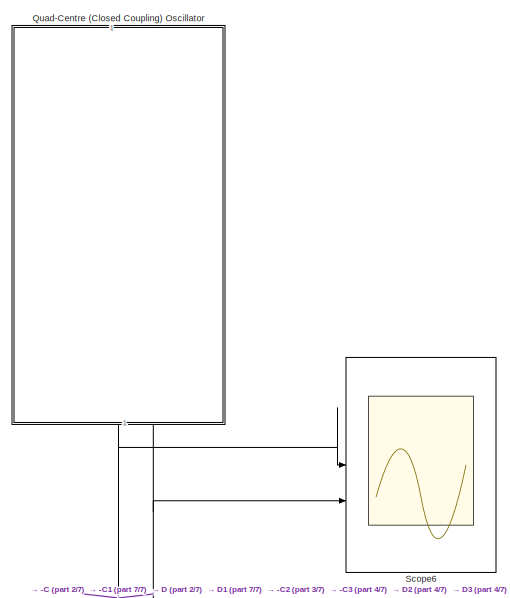
[diagram: root canvas - part 1/7, top center region]
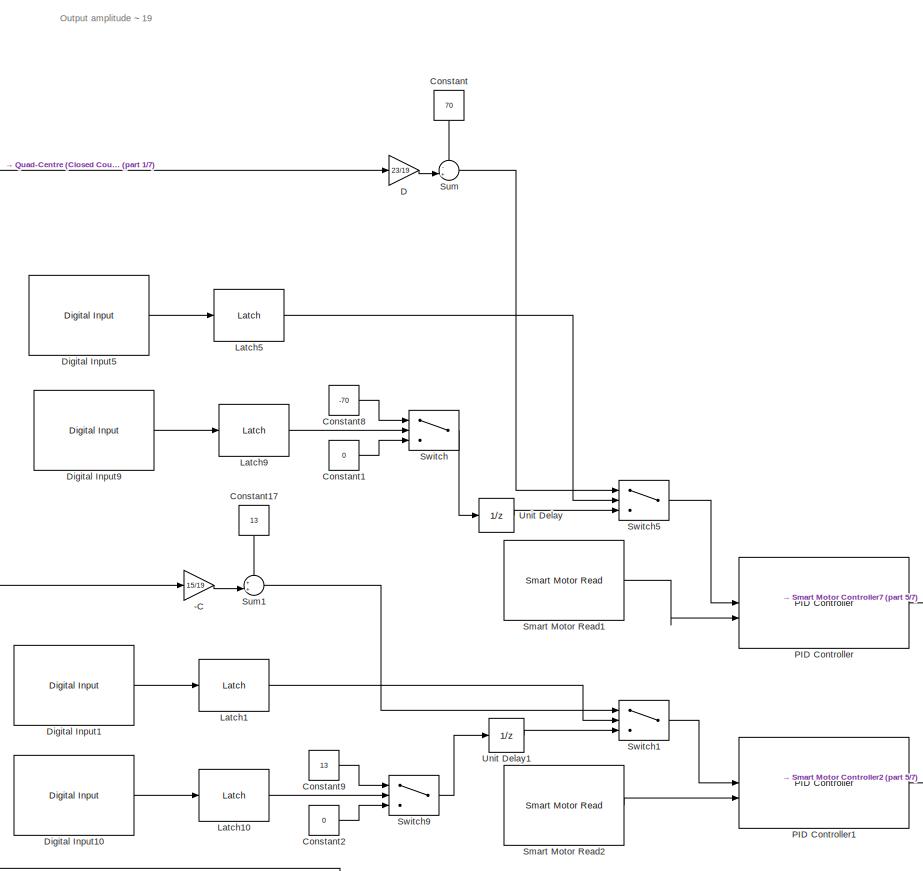
[diagram: root canvas - part 2/7, middle left region]
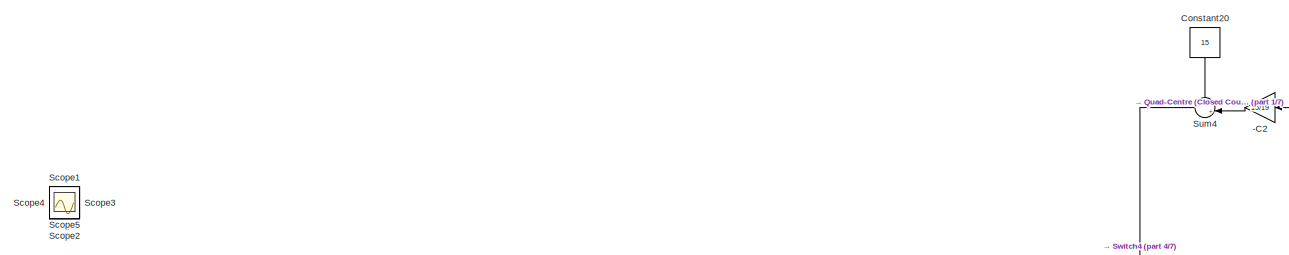
[diagram: root canvas - part 3/7, middle right region]
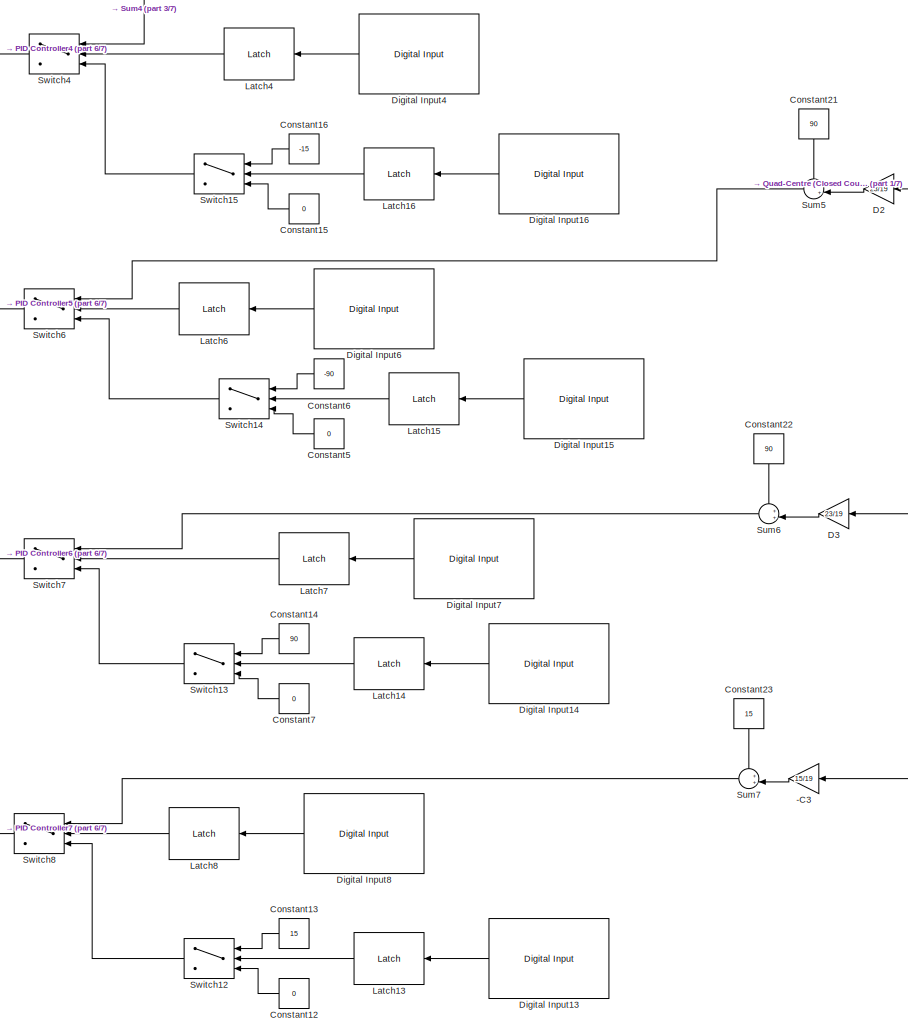
[diagram: root canvas - part 4/7, bottom right region]
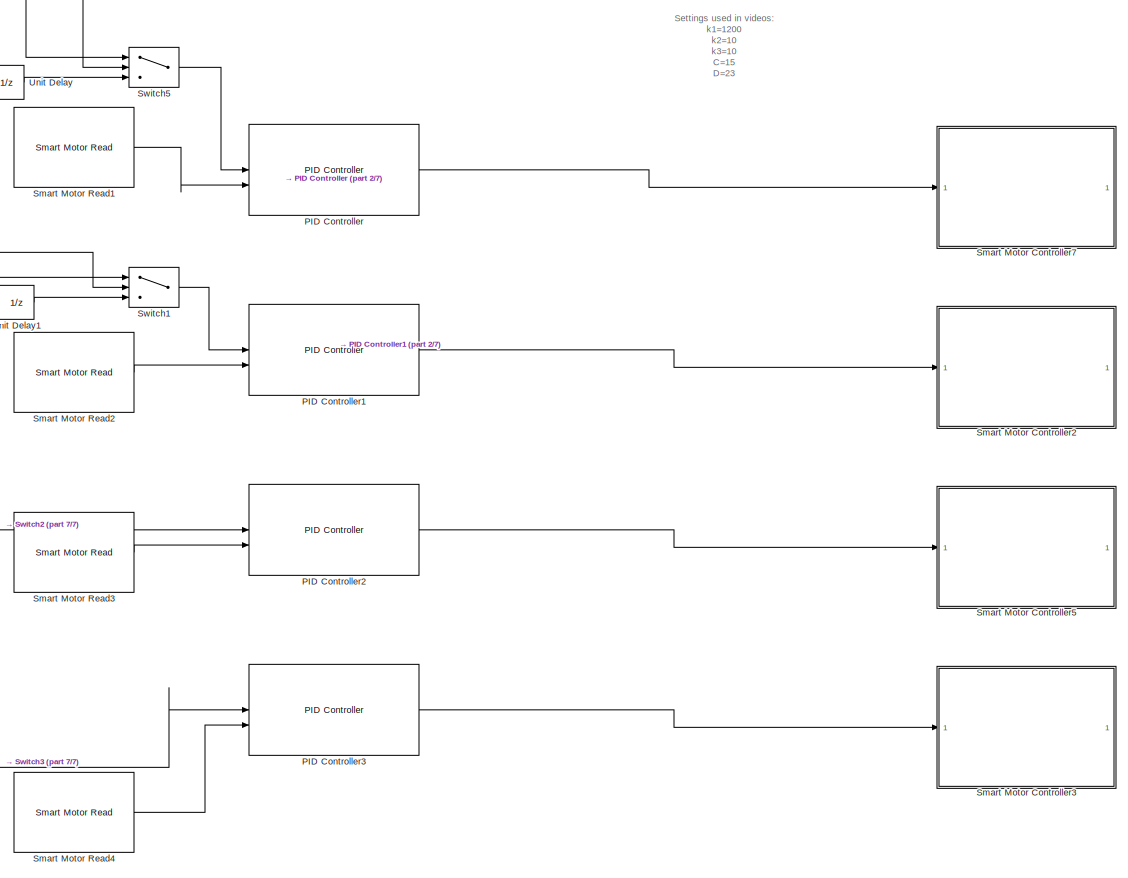
[diagram: root canvas - part 5/7, bottom center region]
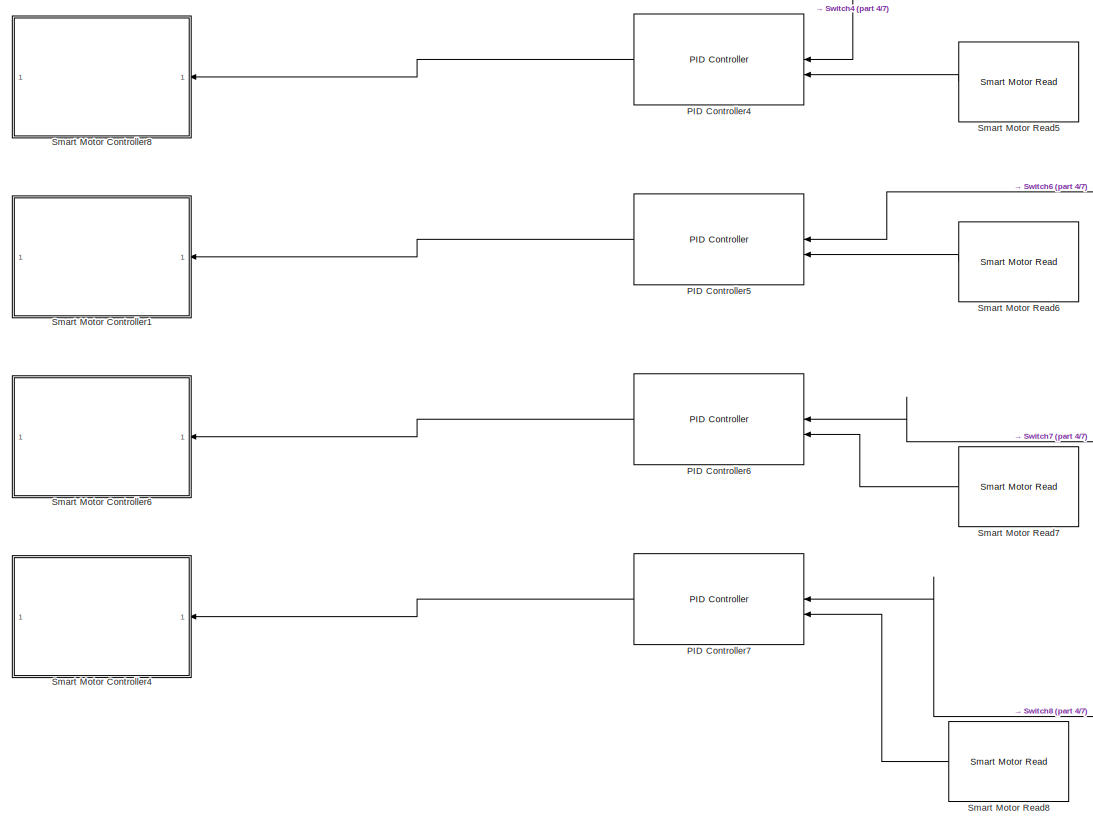
[diagram: root canvas - part 6/7, bottom center region]
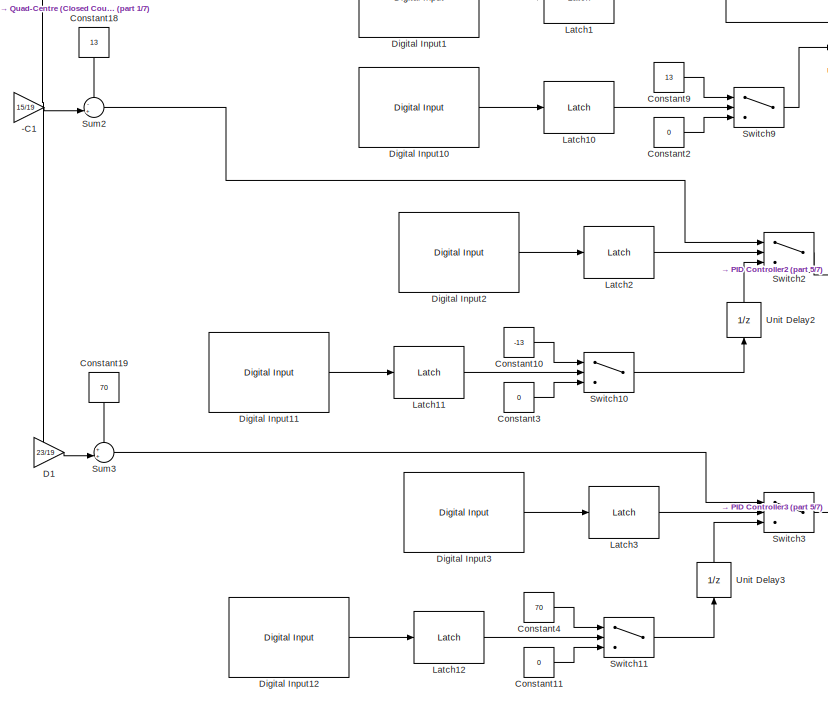
[diagram: root canvas - part 7/7, bottom left region]
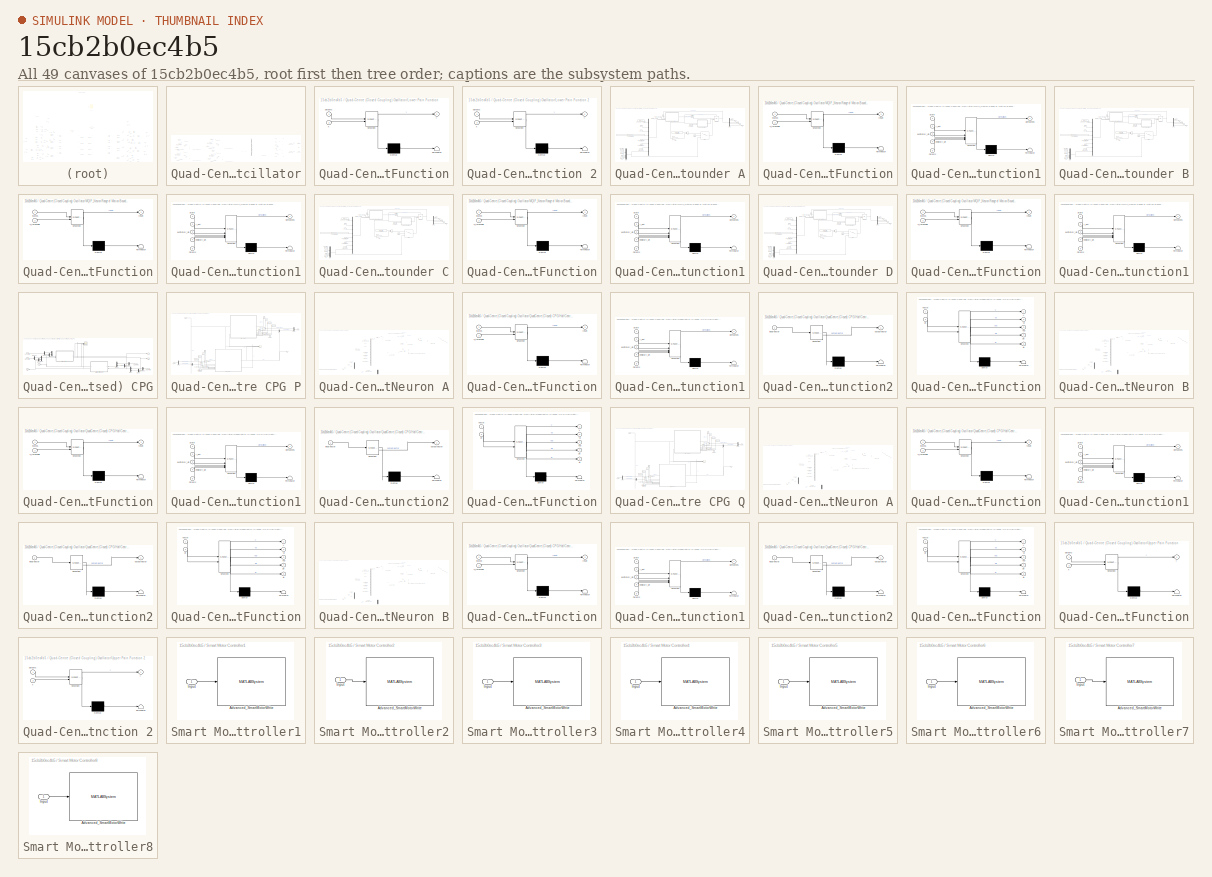
[diagram: thumbnail index - all 49 canvases of the model, root first then tree order]
MODEL slx_15cb2b0ec4b5
KIND model
CONFIG AbsTol = auto
CONFIG EnableMultiTasking = off
CONFIG FixedStep = 1e-3
CONFIG MaxStep = auto
CONFIG MinStep = auto
CONFIG RelTol = 1e-3
CONFIG SampleTimeConstraint = Unconstrained
CONFIG SolverName = ode4
CONFIG StartTime = 0.0
CONFIG StopTime = 10
BLOCK [Gain] -C
  Gain = 15/19
BLOCK [Gain] -C1
  Gain = 15/19
BLOCK [Gain] -C2
  Gain = 15/19
  NameLocation = top
BLOCK [Gain] -C3
  Gain = 15/19
  NameLocation = top
BLOCK [Constant] Constant
  Value = 70
BLOCK [Constant] Constant1
  Value = 0
BLOCK [Constant] Constant10
  Value = -13
BLOCK [Constant] Constant11
  Value = 0
BLOCK [Constant] Constant12
  NameLocation = top
  Value = 0
BLOCK [Constant] Constant13
  NameLocation = top
  Value = 15
BLOCK [Constant] Constant14
  NameLocation = top
  Value = 90
BLOCK [Constant] Constant15
  NameLocation = top
  Value = 0
BLOCK [Constant] Constant16
  NameLocation = top
  Value = -15
BLOCK [Constant] Constant17
  Value = 13
BLOCK [Constant] Constant18
  Value = 13
BLOCK [Constant] Constant19
  Value = 70
BLOCK [Constant] Constant2
  Value = 0
BLOCK [Constant] Constant20
  Value = 15
BLOCK [Constant] Constant21
  Value = 90
BLOCK [Constant] Constant22
  Value = 90
BLOCK [Constant] Constant23
  Value = 15
BLOCK [Constant] Constant3
  Value = 0
BLOCK [Constant] Constant4
  Value = 70
BLOCK [Constant] Constant5
  NameLocation = top
  Value = 0
BLOCK [Constant] Constant6
  NameLocation = top
  Value = -90
BLOCK [Constant] Constant7
  NameLocation = top
  Value = 0
BLOCK [Constant] Constant8
  Value = -70
BLOCK [Constant] Constant9
  Value = 13
BLOCK [Gain] D
  Gain = 23/19
BLOCK [Gain] D1
  Gain = 23/19
BLOCK [Gain] D2
  Gain = 23/19
  NameLocation = top
BLOCK [Gain] D3
  Gain = 23/19
  NameLocation = top
BLOCK [Reference] Digital Input1  REF=vexv5lib/Sensors/Digital Input
  SourceBlock = vexv5lib/Sensors/Digital Input
  SourceType = vexv5.DigitalInput
BLOCK [Reference] Digital Input10  REF=vexv5lib/Sensors/Digital Input
  SourceBlock = vexv5lib/Sensors/Digital Input
  SourceType = vexv5.DigitalInput
BLOCK [Reference] Digital Input11  REF=vexv5lib/Sensors/Digital Input
  SourceBlock = vexv5lib/Sensors/Digital Input
  SourceType = vexv5.DigitalInput
BLOCK [Reference] Digital Input12  REF=vexv5lib/Sensors/Digital Input
  SourceBlock = vexv5lib/Sensors/Digital Input
  SourceType = vexv5.DigitalInput
BLOCK [Reference] Digital Input13  REF=vexv5lib/Sensors/Digital Input
  NameLocation = top
  SourceBlock = vexv5lib/Sensors/Digital Input
  SourceType = vexv5.DigitalInput
BLOCK [Reference] Digital Input14  REF=vexv5lib/Sensors/Digital Input
  NameLocation = top
  SourceBlock = vexv5lib/Sensors/Digital Input
  SourceType = vexv5.DigitalInput
BLOCK [Reference] Digital Input15  REF=vexv5lib/Sensors/Digital Input
  NameLocation = top
  SourceBlock = vexv5lib/Sensors/Digital Input
  SourceType = vexv5.DigitalInput
BLOCK [Reference] Digital Input16  REF=vexv5lib/Sensors/Digital Input
  NameLocation = top
  SourceBlock = vexv5lib/Sensors/Digital Input
  SourceType = vexv5.DigitalInput
BLOCK [Reference] Digital Input2  REF=vexv5lib/Sensors/Digital Input
  SourceBlock = vexv5lib/Sensors/Digital Input
  SourceType = vexv5.DigitalInput
BLOCK [Reference] Digital Input3  REF=vexv5lib/Sensors/Digital Input
  SourceBlock = vexv5lib/Sensors/Digital Input
  SourceType = vexv5.DigitalInput
BLOCK [Reference] Digital Input4  REF=vexv5lib/Sensors/Digital Input
  NameLocation = top
  SourceBlock = vexv5lib/Sensors/Digital Input
  SourceType = vexv5.DigitalInput
BLOCK [Reference] Digital Input5  REF=vexv5lib/Sensors/Digital Input
  SourceBlock = vexv5lib/Sensors/Digital Input
  SourceType = vexv5.DigitalInput
BLOCK [Reference] Digital Input6  REF=vexv5lib/Sensors/Digital Input
  NameLocation = top
  SourceBlock = vexv5lib/Sensors/Digital Input
  SourceType = vexv5.DigitalInput
BLOCK [Reference] Digital Input7  REF=vexv5lib/Sensors/Digital Input
  NameLocation = top
  SourceBlock = vexv5lib/Sensors/Digital Input
  SourceType = vexv5.DigitalInput
BLOCK [Reference] Digital Input8  REF=vexv5lib/Sensors/Digital Input
  NameLocation = top
  SourceBlock = vexv5lib/Sensors/Digital Input
  SourceType = vexv5.DigitalInput
BLOCK [Reference] Digital Input9  REF=vexv5lib/Sensors/Digital Input
  SourceBlock = vexv5lib/Sensors/Digital Input
  SourceType = vexv5.DigitalInput
BLOCK [Reference] Latch1  REF=vexcommonlib/Latch
  LibrarySourceBlock = vexv5lib/Utilities/Latch
  SourceBlock = vexcommonlib/Latch
  SourceType = Latch
BLOCK [Reference] Latch10  REF=vexcommonlib/Latch
  LibrarySourceBlock = vexv5lib/Utilities/Latch
  SourceBlock = vexcommonlib/Latch
  SourceType = Latch
BLOCK [Reference] Latch11  REF=vexcommonlib/Latch
  LibrarySourceBlock = vexv5lib/Utilities/Latch
  SourceBlock = vexcommonlib/Latch
  SourceType = Latch
BLOCK [Reference] Latch12  REF=vexcommonlib/Latch
  LibrarySourceBlock = vexv5lib/Utilities/Latch
  SourceBlock = vexcommonlib/Latch
  SourceType = Latch
BLOCK [Reference] Latch13  REF=vexcommonlib/Latch
  LibrarySourceBlock = vexv5lib/Utilities/Latch
  NameLocation = top
  SourceBlock = vexcommonlib/Latch
  SourceType = Latch
BLOCK [Reference] Latch14  REF=vexcommonlib/Latch
  LibrarySourceBlock = vexv5lib/Utilities/Latch
  NameLocation = top
  SourceBlock = vexcommonlib/Latch
  SourceType = Latch
BLOCK [Reference] Latch15  REF=vexcommonlib/Latch
  LibrarySourceBlock = vexv5lib/Utilities/Latch
  NameLocation = top
  SourceBlock = vexcommonlib/Latch
  SourceType = Latch
BLOCK [Reference] Latch16  REF=vexcommonlib/Latch
  LibrarySourceBlock = vexv5lib/Utilities/Latch
  NameLocation = top
  SourceBlock = vexcommonlib/Latch
  SourceType = Latch
BLOCK [Reference] Latch2  REF=vexcommonlib/Latch
  LibrarySourceBlock = vexv5lib/Utilities/Latch
  SourceBlock = vexcommonlib/Latch
  SourceType = Latch
BLOCK [Reference] Latch3  REF=vexcommonlib/Latch
  LibrarySourceBlock = vexv5lib/Utilities/Latch
  SourceBlock = vexcommonlib/Latch
  SourceType = Latch
BLOCK [Reference] Latch4  REF=vexcommonlib/Latch
  LibrarySourceBlock = vexv5lib/Utilities/Latch
  NameLocation = top
  SourceBlock = vexcommonlib/Latch
  SourceType = Latch
BLOCK [Reference] Latch5  REF=vexcommonlib/Latch
  LibrarySourceBlock = vexv5lib/Utilities/Latch
  SourceBlock = vexcommonlib/Latch
  SourceType = Latch
BLOCK [Reference] Latch6  REF=vexcommonlib/Latch
  LibrarySourceBlock = vexv5lib/Utilities/Latch
  NameLocation = top
  SourceBlock = vexcommonlib/Latch
  SourceType = Latch
BLOCK [Reference] Latch7  REF=vexcommonlib/Latch
  LibrarySourceBlock = vexv5lib/Utilities/Latch
  NameLocation = top
  SourceBlock = vexcommonlib/Latch
  SourceType = Latch
BLOCK [Reference] Latch8  REF=vexcommonlib/Latch
  LibrarySourceBlock = vexv5lib/Utilities/Latch
  NameLocation = top
  SourceBlock = vexcommonlib/Latch
  SourceType = Latch
BLOCK [Reference] Latch9  REF=vexcommonlib/Latch
  LibrarySourceBlock = vexv5lib/Utilities/Latch
  SourceBlock = vexcommonlib/Latch
  SourceType = Latch
BLOCK [Reference] PID Controller  REF=Vex_V5_Simulink_Expansion/Core Blocks/PID Controller
  SourceBlock = Vex_V5_Simulink_Expansion/Core Blocks/PID Controller
  SourceProductName = Vex V5 Simulink Expansion
  SourceType = PID Controller
BLOCK [Reference] PID Controller1  REF=Vex_V5_Simulink_Expansion/Core Blocks/PID Controller
  SourceBlock = Vex_V5_Simulink_Expansion/Core Blocks/PID Controller
  SourceProductName = Vex V5 Simulink Expansion
  SourceType = PID Controller
BLOCK [Reference] PID Controller2  REF=Vex_V5_Simulink_Expansion/Core Blocks/PID Controller
  SourceBlock = Vex_V5_Simulink_Expansion/Core Blocks/PID Controller
  SourceProductName = Vex V5 Simulink Expansion
  SourceType = PID Controller
BLOCK [Reference] PID Controller3  REF=Vex_V5_Simulink_Expansion/Core Blocks/PID Controller
  SourceBlock = Vex_V5_Simulink_Expansion/Core Blocks/PID Controller
  SourceProductName = Vex V5 Simulink Expansion
  SourceType = PID Controller
BLOCK [Reference] PID Controller4  REF=Vex_V5_Simulink_Expansion/Core Blocks/PID Controller
  SourceBlock = Vex_V5_Simulink_Expansion/Core Blocks/PID Controller
  SourceProductName = Vex V5 Simulink Expansion
  SourceType = PID Controller
BLOCK [Reference] PID Controller5  REF=Vex_V5_Simulink_Expansion/Core Blocks/PID Controller
  SourceBlock = Vex_V5_Simulink_Expansion/Core Blocks/PID Controller
  SourceProductName = Vex V5 Simulink Expansion
  SourceType = PID Controller
BLOCK [Reference] PID Controller6  REF=Vex_V5_Simulink_Expansion/Core Blocks/PID Controller
  SourceBlock = Vex_V5_Simulink_Expansion/Core Blocks/PID Controller
  SourceProductName = Vex V5 Simulink Expansion
  SourceType = PID Controller
BLOCK [Reference] PID Controller7  REF=Vex_V5_Simulink_Expansion/Core Blocks/PID Controller
  SourceBlock = Vex_V5_Simulink_Expansion/Core Blocks/PID Controller
  SourceProductName = Vex V5 Simulink Expansion
  SourceType = PID Controller
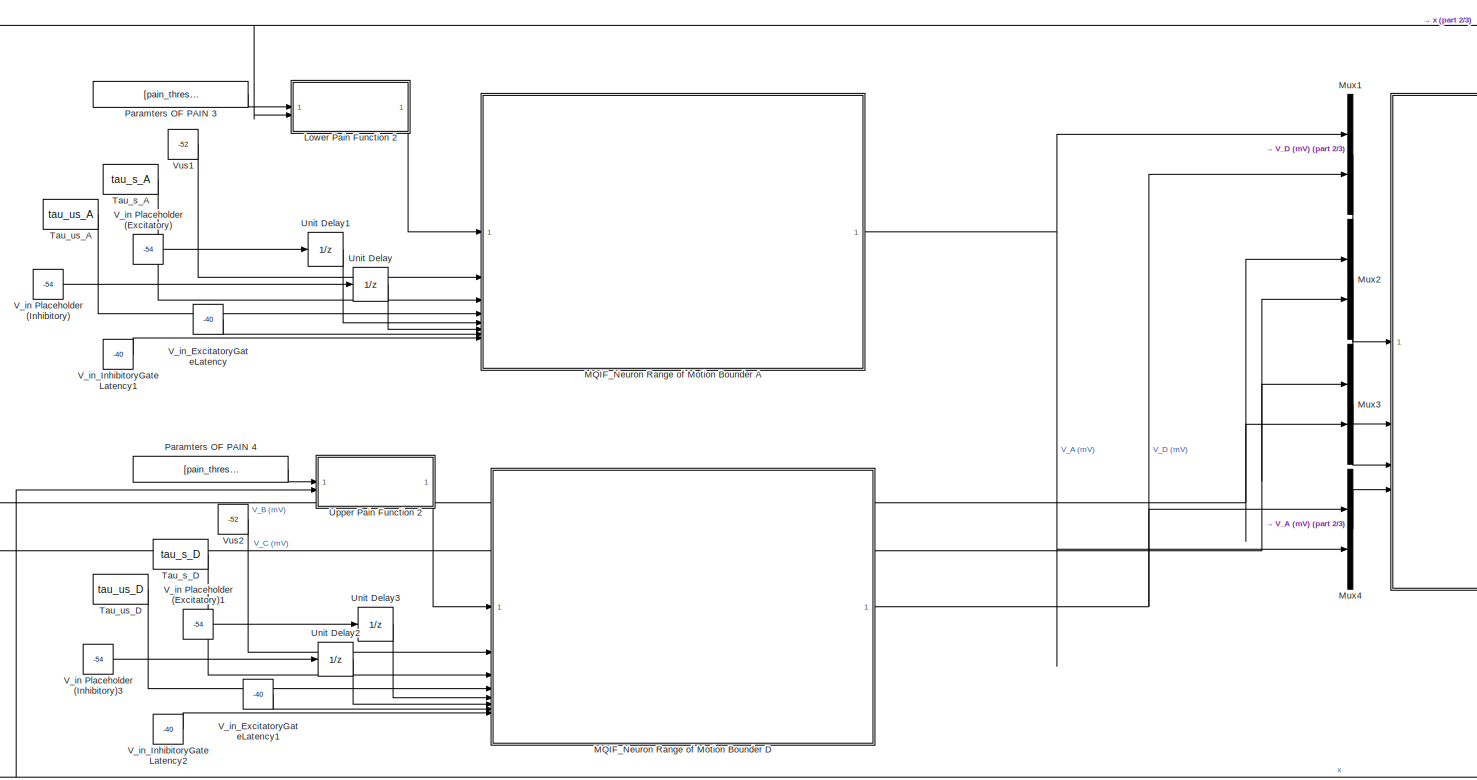
[diagram: Quad-Centre (Closed Coupling) Oscillator - part 1/3, center side, full height]
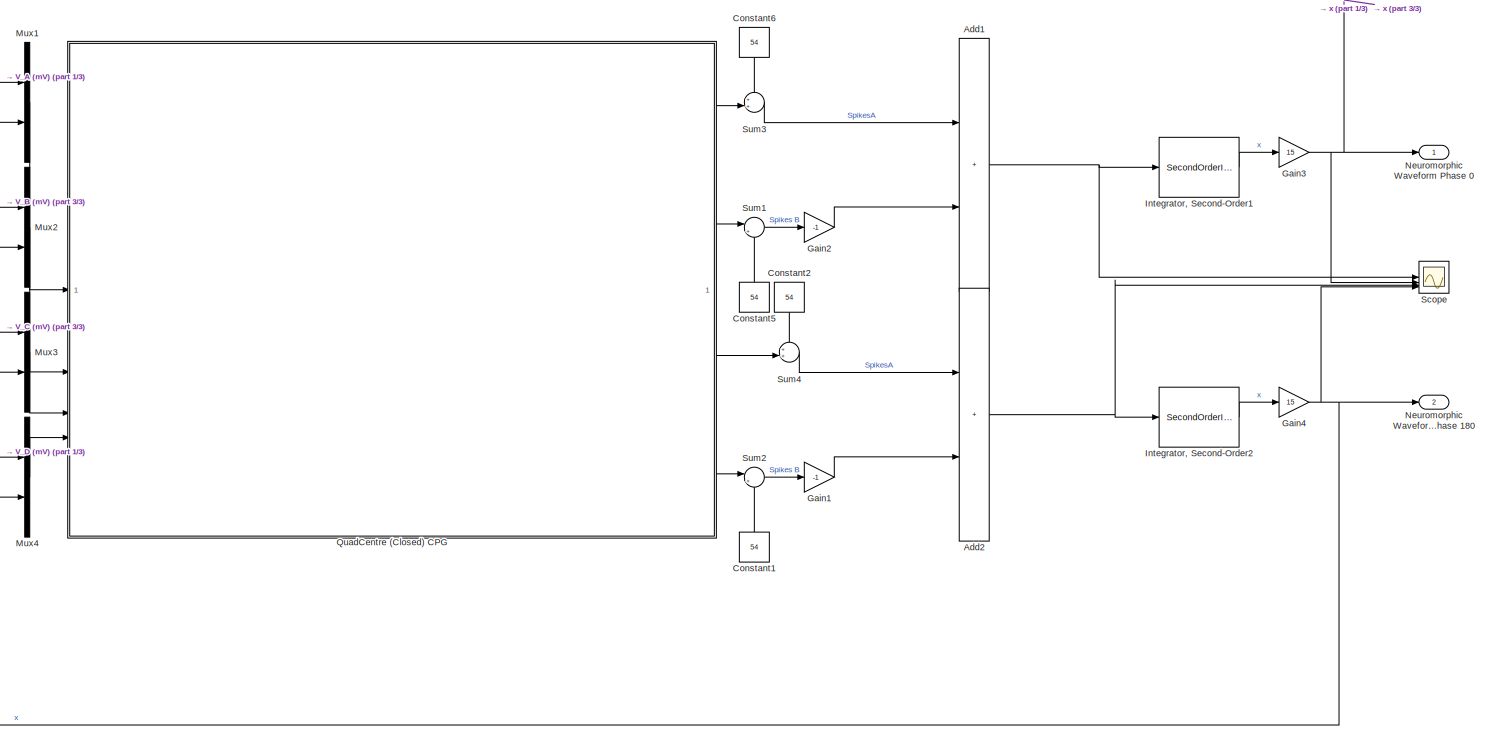
[diagram: Quad-Centre (Closed Coupling) Oscillator - part 2/3, right side, full height]
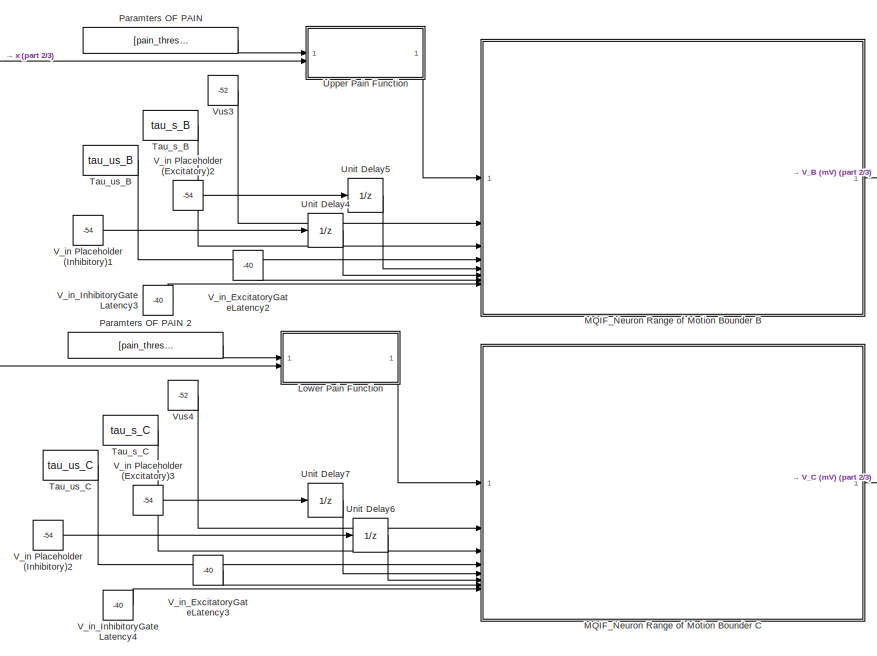
[diagram: Quad-Centre (Closed Coupling) Oscillator - part 3/3, left side, full height]
BLOCK [SubSystem] Quad-Centre (Closed Coupling) Oscillator
  NameLocation = left
  TreatAsAtomicUnit = on
BLOCK [Sum] Quad-Centre (Closed Coupling) Oscillator/Add1
  IconShape = rectangular
BLOCK [Sum] Quad-Centre (Closed Coupling) Oscillator/Add2
  IconShape = rectangular
BLOCK [Constant] Quad-Centre (Closed Coupling) Oscillator/Constant1
  NameLocation = right
  Value = 54
BLOCK [Constant] Quad-Centre (Closed Coupling) Oscillator/Constant2
  NameLocation = left
  Value = 54
BLOCK [Constant] Quad-Centre (Closed Coupling) Oscillator/Constant5
  NameLocation = right
  Value = 54
BLOCK [Constant] Quad-Centre (Closed Coupling) Oscillator/Constant6
  NameLocation = left
  Value = 54
BLOCK [Gain] Quad-Centre (Closed Coupling) Oscillator/Gain1
  Gain = -1
BLOCK [Gain] Quad-Centre (Closed Coupling) Oscillator/Gain2
  Gain = -1
BLOCK [Gain] Quad-Centre (Closed Coupling) Oscillator/Gain3
  Gain = 15
BLOCK [Gain] Quad-Centre (Closed Coupling) Oscillator/Gain4
  Gain = 15
BLOCK [SecondOrderIntegrator] Quad-Centre (Closed Coupling) Oscillator/Integrator, Second-Order1
BLOCK [SecondOrderIntegrator] Quad-Centre (Closed Coupling) Oscillator/Integrator, Second-Order2
BLOCK [SubSystem] Quad-Centre (Closed Coupling) Oscillator/Lower Pain Function
  ErrorFcn = Stateflow.Translate.translate
  LibrarySourceBlock = simulink/User-Defined\nFunctions/MATLAB Function
  PermitHierarchicalResolution = ExplicitOnly
  SFBlockType = MATLAB Function
  TreatAsAtomicUnit = on
BLOCK [SubSystem] Quad-Centre (Closed Coupling) Oscillator/Lower Pain Function 2
  ErrorFcn = Stateflow.Translate.translate
  LibrarySourceBlock = simulink/User-Defined\nFunctions/MATLAB Function
  PermitHierarchicalResolution = ExplicitOnly
  SFBlockType = MATLAB Function
  TreatAsAtomicUnit = on
BLOCK [Demux] Quad-Centre (Closed Coupling) Oscillator/Lower Pain Function 2/ Demux 
  Outputs = 1
BLOCK [S-Function] Quad-Centre (Closed Coupling) Oscillator/Lower Pain Function 2/ SFunction 
  EnableBusSupport = on
  FunctionName = sf_sfun
  PortCounts = [2 2]
  SFcnIsStateOwnerBlock = off
  SFunctionDeploymentMode = off
  Tag = Stateflow S-Function 10
BLOCK [Terminator] Quad-Centre (Closed Coupling) Oscillator/Lower Pain Function 2/ Terminator 
BLOCK [Inport] Quad-Centre (Closed Coupling) Oscillator/Lower Pain Function 2/params
BLOCK [Inport] Quad-Centre (Closed Coupling) Oscillator/Lower Pain Function 2/x
  Port = 2
BLOCK [Outport] Quad-Centre (Closed Coupling) Oscillator/Lower Pain Function 2/y
BLOCK [Demux] Quad-Centre (Closed Coupling) Oscillator/Lower Pain Function/ Demux 
  Outputs = 1
BLOCK [S-Function] Quad-Centre (Closed Coupling) Oscillator/Lower Pain Function/ SFunction 
  EnableBusSupport = on
  FunctionName = sf_sfun
  PortCounts = [2 2]
  SFcnIsStateOwnerBlock = off
  SFunctionDeploymentMode = off
  Tag = Stateflow S-Function 18
BLOCK [Terminator] Quad-Centre (Closed Coupling) Oscillator/Lower Pain Function/ Terminator 
BLOCK [Inport] Quad-Centre (Closed Coupling) Oscillator/Lower Pain Function/params
BLOCK [Inport] Quad-Centre (Closed Coupling) Oscillator/Lower Pain Function/x
  Port = 2
BLOCK [Outport] Quad-Centre (Closed Coupling) Oscillator/Lower Pain Function/y
BLOCK [SubSystem] Quad-Centre (Closed Coupling) Oscillator/MQIF_Neuron Range of Motion Bounder A
  TreatAsAtomicUnit = on
BLOCK [Sum] Quad-Centre (Closed Coupling) Oscillator/MQIF_Neuron Range of Motion Bounder A/Add
  IconShape = rectangular
BLOCK [Clock] Quad-Centre (Closed Coupling) Oscillator/MQIF_Neuron Range of Motion Bounder A/Clock
BLOCK [Constant] Quad-Centre (Closed Coupling) Oscillator/MQIF_Neuron Range of Motion Bounder A/Conductance Parameters
  Value = [g_f; g_s; g_us; C]
BLOCK [Constant] Quad-Centre (Closed Coupling) Oscillator/MQIF_Neuron Range of Motion Bounder A/Constant10
  Value = V_threshold
BLOCK [Constant] Quad-Centre (Closed Coupling) Oscillator/MQIF_Neuron Range of Motion Bounder A/Constant9
  Value = [V_reset; Vs_reset; delta_Vus; 0; 0]
BLOCK [Demux] Quad-Centre (Closed Coupling) Oscillator/MQIF_Neuron Range of Motion Bounder A/Demux
  Outputs = 5
BLOCK [Constant] Quad-Centre (Closed Coupling) Oscillator/MQIF_Neuron Range of Motion Bounder A/Eqm Voltage
  Value = V0
BLOCK [Constant] Quad-Centre (Closed Coupling) Oscillator/MQIF_Neuron Range of Motion Bounder A/Eqm Vs
  Value = Vs0
BLOCK [Gain] Quad-Centre (Closed Coupling) Oscillator/MQIF_Neuron Range of Motion Bounder A/Gain
  Gain = [0 0 0 0 0; 0 0 0 0 0; 0 0 1 0 0; 0 0 0 1 0; 0 0 0 0 1]
  Multiplication = Matrix(K*u) (u vector)
BLOCK [Inport] Quad-Centre (Closed Coupling) Oscillator/MQIF_Neuron Range of Motion Bounder A/I_ext
BLOCK [Integrator] Quad-Centre (Closed Coupling) Oscillator/MQIF_Neuron Range of Motion Bounder A/Integrator3
  ExternalReset = rising
  InitialCondition = [V0 Vs0 Vus0]
  InitialConditionSource = external
  ShowStatePort = on
BLOCK [SubSystem] Quad-Centre (Closed Coupling) Oscillator/MQIF_Neuron Range of Motion Bounder A/MATLAB Function
  ErrorFcn = Stateflow.Translate.translate
  LibrarySourceBlock = simulink/User-Defined\nFunctions/MATLAB Function
  PermitHierarchicalResolution = ExplicitOnly
  SFBlockType = MATLAB Function
  TreatAsAtomicUnit = on
BLOCK [Demux] Quad-Centre (Closed Coupling) Oscillator/MQIF_Neuron Range of Motion Bounder A/MATLAB Function/ Demux 
  Outputs = 1
BLOCK [S-Function] Quad-Centre (Closed Coupling) Oscillator/MQIF_Neuron Range of Motion Bounder A/MATLAB Function/ SFunction 
  EnableBusSupport = on
  FunctionName = sf_sfun
  PortCounts = [2 2]
  SFcnIsStateOwnerBlock = off
  SFunctionDeploymentMode = off
  Tag = Stateflow S-Function 7
BLOCK [Terminator] Quad-Centre (Closed Coupling) Oscillator/MQIF_Neuron Range of Motion Bounder A/MATLAB Function/ Terminator 
BLOCK [Inport] Quad-Centre (Closed Coupling) Oscillator/MQIF_Neuron Range of Motion Bounder A/MATLAB Function/States
BLOCK [Inport] Quad-Centre (Closed Coupling) Oscillator/MQIF_Neuron Range of Motion Bounder A/MATLAB Function/V_threshold
  Port = 2
BLOCK [Outport] Quad-Centre (Closed Coupling) Oscillator/MQIF_Neuron Range of Motion Bounder A/MATLAB Function/reset
BLOCK [SubSystem] Quad-Centre (Closed Coupling) Oscillator/MQIF_Neuron Range of Motion Bounder A/MATLAB Function1
  ErrorFcn = Stateflow.Translate.translate
  LibrarySourceBlock = simulink/User-Defined\nFunctions/MATLAB Function
  PermitHierarchicalResolution = ExplicitOnly
  SFBlockType = MATLAB Function
  TreatAsAtomicUnit = on
BLOCK [Demux] Quad-Centre (Closed Coupling) Oscillator/MQIF_Neuron Range of Motion Bounder A/MATLAB Function1/ Demux 
  Outputs = 1
BLOCK [S-Function] Quad-Centre (Closed Coupling) Oscillator/MQIF_Neuron Range of Motion Bounder A/MATLAB Function1/ SFunction 
  EnableBusSupport = on
  FunctionName = sf_sfun
  PortCounts = [5 2]
  SFcnIsStateOwnerBlock = off
  SFunctionDeploymentMode = off
  Tag = Stateflow S-Function 8
BLOCK [Terminator] Quad-Centre (Closed Coupling) Oscillator/MQIF_Neuron Range of Motion Bounder A/MATLAB Function1/ Terminator 
BLOCK [Outport] Quad-Centre (Closed Coupling) Oscillator/MQIF_Neuron Range of Motion Bounder A/MATLAB Function1/Derivatives
BLOCK [Inport] Quad-Centre (Closed Coupling) Oscillator/MQIF_Neuron Range of Motion Bounder A/MATLAB Function1/I_ext
  Port = 2
BLOCK [Inport] Quad-Centre (Closed Coupling) Oscillator/MQIF_Neuron Range of Motion Bounder A/MATLAB Function1/Params
  Port = 5
BLOCK [Inport] Quad-Centre (Closed Coupling) Oscillator/MQIF_Neuron Range of Motion Bounder A/MATLAB Function1/State
BLOCK [Inport] Quad-Centre (Closed Coupling) Oscillator/MQIF_Neuron Range of Motion Bounder A/MATLAB Function1/excitatory_Vin
  Port = 3
BLOCK [Inport] Quad-Centre (Closed Coupling) Oscillator/MQIF_Neuron Range of Motion Bounder A/MATLAB Function1/inhibitory_Vin
  Port = 4
BLOCK [Mux] Quad-Centre (Closed Coupling) Oscillator/MQIF_Neuron Range of Motion Bounder A/Mux
  DisplayOption = bar
  Inputs = 8
BLOCK [Mux] Quad-Centre (Closed Coupling) Oscillator/MQIF_Neuron Range of Motion Bounder A/Mux1
  DisplayOption = bar
BLOCK [Constant] Quad-Centre (Closed Coupling) Oscillator/MQIF_Neuron Range of Motion Bounder A/RateConstant
  Value = k
BLOCK [Constant] Quad-Centre (Closed Coupling) Oscillator/MQIF_Neuron Range of Motion Bounder A/S0
  Value = [0; 0]
BLOCK [Saturate] Quad-Centre (Closed Coupling) Oscillator/MQIF_Neuron Range of Motion Bounder A/Saturation
  LinearizeAsGain = off
  LowerLimit = -1e4
  UpperLimit = 1e4
  ZeroCross = off
BLOCK [Outport] Quad-Centre (Closed Coupling) Oscillator/MQIF_Neuron Range of Motion Bounder A/Se
  Port = 4
BLOCK [Outport] Quad-Centre (Closed Coupling) Oscillator/MQIF_Neuron Range of Motion Bounder A/Si
  Port = 5
BLOCK [Switch] Quad-Centre (Closed Coupling) Oscillator/MQIF_Neuron Range of Motion Bounder A/Switch
  Criteria = u2 > Threshold
  InputSameDT = off
  SaturateOnIntegerOverflow = off
  Threshold = 1e-3
BLOCK [Constant] Quad-Centre (Closed Coupling) Oscillator/MQIF_Neuron Range of Motion Bounder A/Synaptic Paramters
  Value = [tauSyn_excitatory; tauSyn_inhibitory; Ve_syn; Vi_syn; g_syn_excitatory; g_syn_inhibitory]
BLOCK [Outport] Quad-Centre (Closed Coupling) Oscillator/MQIF_Neuron Range of Motion Bounder A/V
BLOCK [Inport] Quad-Centre (Closed Coupling) Oscillator/MQIF_Neuron Range of Motion Bounder A/Vin_ExcitatoryBiasThreshold
  Port = 7
BLOCK [Inport] Quad-Centre (Closed Coupling) Oscillator/MQIF_Neuron Range of Motion Bounder A/Vin_InhibitoryBiasThreshold
  Port = 8
BLOCK [Outport] Quad-Centre (Closed Coupling) Oscillator/MQIF_Neuron Range of Motion Bounder A/Vs
  Port = 2
BLOCK [Outport] Quad-Centre (Closed Coupling) Oscillator/MQIF_Neuron Range of Motion Bounder A/Vus
  Port = 3
BLOCK [Inport] Quad-Centre (Closed Coupling) Oscillator/MQIF_Neuron Range of Motion Bounder A/Vus0
  Port = 2
BLOCK [Inport] Quad-Centre (Closed Coupling) Oscillator/MQIF_Neuron Range of Motion Bounder A/excitatory_Vin
  Port = 5
BLOCK [Inport] Quad-Centre (Closed Coupling) Oscillator/MQIF_Neuron Range of Motion Bounder A/inhibitory_Vin
  Port = 6
BLOCK [Inport] Quad-Centre (Closed Coupling) Oscillator/MQIF_Neuron Range of Motion Bounder A/tau_s
  Port = 3
BLOCK [Inport] Quad-Centre (Closed Coupling) Oscillator/MQIF_Neuron Range of Motion Bounder A/tau_us
  Port = 4
BLOCK [SubSystem] Quad-Centre (Closed Coupling) Oscillator/MQIF_Neuron Range of Motion Bounder B
  TreatAsAtomicUnit = on
BLOCK [Sum] Quad-Centre (Closed Coupling) Oscillator/MQIF_Neuron Range of Motion Bounder B/Add
  IconShape = rectangular
BLOCK [Clock] Quad-Centre (Closed Coupling) Oscillator/MQIF_Neuron Range of Motion Bounder B/Clock
BLOCK [Constant] Quad-Centre (Closed Coupling) Oscillator/MQIF_Neuron Range of Motion Bounder B/Conductance Parameters
  Value = [g_f; g_s; g_us; C]
BLOCK [Constant] Quad-Centre (Closed Coupling) Oscillator/MQIF_Neuron Range of Motion Bounder B/Constant10
  Value = V_threshold
BLOCK [Constant] Quad-Centre (Closed Coupling) Oscillator/MQIF_Neuron Range of Motion Bounder B/Constant9
  Value = [V_reset; Vs_reset; delta_Vus; 0; 0]
BLOCK [Demux] Quad-Centre (Closed Coupling) Oscillator/MQIF_Neuron Range of Motion Bounder B/Demux
  Outputs = 5
BLOCK [Constant] Quad-Centre (Closed Coupling) Oscillator/MQIF_Neuron Range of Motion Bounder B/Eqm Voltage
  Value = V0
BLOCK [Constant] Quad-Centre (Closed Coupling) Oscillator/MQIF_Neuron Range of Motion Bounder B/Eqm Vs
  Value = Vs0
BLOCK [Gain] Quad-Centre (Closed Coupling) Oscillator/MQIF_Neuron Range of Motion Bounder B/Gain
  Gain = [0 0 0 0 0; 0 0 0 0 0; 0 0 1 0 0; 0 0 0 1 0; 0 0 0 0 1]
  Multiplication = Matrix(K*u) (u vector)
BLOCK [Inport] Quad-Centre (Closed Coupling) Oscillator/MQIF_Neuron Range of Motion Bounder B/I_ext
BLOCK [Integrator] Quad-Centre (Closed Coupling) Oscillator/MQIF_Neuron Range of Motion Bounder B/Integrator3
  ExternalReset = rising
  InitialCondition = [V0 Vs0 Vus0]
  InitialConditionSource = external
  ShowStatePort = on
BLOCK [SubSystem] Quad-Centre (Closed Coupling) Oscillator/MQIF_Neuron Range of Motion Bounder B/MATLAB Function
  ErrorFcn = Stateflow.Translate.translate
  LibrarySourceBlock = simulink/User-Defined\nFunctions/MATLAB Function
  PermitHierarchicalResolution = ExplicitOnly
  SFBlockType = MATLAB Function
  TreatAsAtomicUnit = on
BLOCK [Demux] Quad-Centre (Closed Coupling) Oscillator/MQIF_Neuron Range of Motion Bounder B/MATLAB Function/ Demux 
  Outputs = 1
BLOCK [S-Function] Quad-Centre (Closed Coupling) Oscillator/MQIF_Neuron Range of Motion Bounder B/MATLAB Function/ SFunction 
  EnableBusSupport = on
  FunctionName = sf_sfun
  PortCounts = [2 2]
  SFcnIsStateOwnerBlock = off
  SFunctionDeploymentMode = off
  Tag = Stateflow S-Function 16
BLOCK [Terminator] Quad-Centre (Closed Coupling) Oscillator/MQIF_Neuron Range of Motion Bounder B/MATLAB Function/ Terminator 
BLOCK [Inport] Quad-Centre (Closed Coupling) Oscillator/MQIF_Neuron Range of Motion Bounder B/MATLAB Function/States
BLOCK [Inport] Quad-Centre (Closed Coupling) Oscillator/MQIF_Neuron Range of Motion Bounder B/MATLAB Function/V_threshold
  Port = 2
BLOCK [Outport] Quad-Centre (Closed Coupling) Oscillator/MQIF_Neuron Range of Motion Bounder B/MATLAB Function/reset
BLOCK [SubSystem] Quad-Centre (Closed Coupling) Oscillator/MQIF_Neuron Range of Motion Bounder B/MATLAB Function1
  ErrorFcn = Stateflow.Translate.translate
  LibrarySourceBlock = simulink/User-Defined\nFunctions/MATLAB Function
  PermitHierarchicalResolution = ExplicitOnly
  SFBlockType = MATLAB Function
  TreatAsAtomicUnit = on
BLOCK [Demux] Quad-Centre (Closed Coupling) Oscillator/MQIF_Neuron Range of Motion Bounder B/MATLAB Function1/ Demux 
  Outputs = 1
BLOCK [S-Function] Quad-Centre (Closed Coupling) Oscillator/MQIF_Neuron Range of Motion Bounder B/MATLAB Function1/ SFunction 
  EnableBusSupport = on
  FunctionName = sf_sfun
  PortCounts = [5 2]
  SFcnIsStateOwnerBlock = off
  SFunctionDeploymentMode = off
  Tag = Stateflow S-Function 17
BLOCK [Terminator] Quad-Centre (Closed Coupling) Oscillator/MQIF_Neuron Range of Motion Bounder B/MATLAB Function1/ Terminator 
BLOCK [Outport] Quad-Centre (Closed Coupling) Oscillator/MQIF_Neuron Range of Motion Bounder B/MATLAB Function1/Derivatives
BLOCK [Inport] Quad-Centre (Closed Coupling) Oscillator/MQIF_Neuron Range of Motion Bounder B/MATLAB Function1/I_ext
  Port = 2
BLOCK [Inport] Quad-Centre (Closed Coupling) Oscillator/MQIF_Neuron Range of Motion Bounder B/MATLAB Function1/Params
  Port = 5
BLOCK [Inport] Quad-Centre (Closed Coupling) Oscillator/MQIF_Neuron Range of Motion Bounder B/MATLAB Function1/State
BLOCK [Inport] Quad-Centre (Closed Coupling) Oscillator/MQIF_Neuron Range of Motion Bounder B/MATLAB Function1/excitatory_Vin
  Port = 3
BLOCK [Inport] Quad-Centre (Closed Coupling) Oscillator/MQIF_Neuron Range of Motion Bounder B/MATLAB Function1/inhibitory_Vin
  Port = 4
BLOCK [Mux] Quad-Centre (Closed Coupling) Oscillator/MQIF_Neuron Range of Motion Bounder B/Mux
  DisplayOption = bar
  Inputs = 8
BLOCK [Mux] Quad-Centre (Closed Coupling) Oscillator/MQIF_Neuron Range of Motion Bounder B/Mux1
  DisplayOption = bar
BLOCK [Constant] Quad-Centre (Closed Coupling) Oscillator/MQIF_Neuron Range of Motion Bounder B/RateConstant
  Value = k
BLOCK [Constant] Quad-Centre (Closed Coupling) Oscillator/MQIF_Neuron Range of Motion Bounder B/S0
  Value = [0; 0]
BLOCK [Saturate] Quad-Centre (Closed Coupling) Oscillator/MQIF_Neuron Range of Motion Bounder B/Saturation
  LinearizeAsGain = off
  LowerLimit = -1e4
  UpperLimit = 1e4
  ZeroCross = off
BLOCK [Outport] Quad-Centre (Closed Coupling) Oscillator/MQIF_Neuron Range of Motion Bounder B/Se
  Port = 4
BLOCK [Outport] Quad-Centre (Closed Coupling) Oscillator/MQIF_Neuron Range of Motion Bounder B/Si
  Port = 5
BLOCK [Switch] Quad-Centre (Closed Coupling) Oscillator/MQIF_Neuron Range of Motion Bounder B/Switch
  Criteria = u2 > Threshold
  InputSameDT = off
  SaturateOnIntegerOverflow = off
  Threshold = 1e-3
BLOCK [Constant] Quad-Centre (Closed Coupling) Oscillator/MQIF_Neuron Range of Motion Bounder B/Synaptic Paramters
  Value = [tauSyn_excitatory; tauSyn_inhibitory; Ve_syn; Vi_syn; g_syn_excitatory; g_syn_inhibitory]
BLOCK [Outport] Quad-Centre (Closed Coupling) Oscillator/MQIF_Neuron Range of Motion Bounder B/V
BLOCK [Inport] Quad-Centre (Closed Coupling) Oscillator/MQIF_Neuron Range of Motion Bounder B/Vin_ExcitatoryBiasThreshold
  Port = 7
BLOCK [Inport] Quad-Centre (Closed Coupling) Oscillator/MQIF_Neuron Range of Motion Bounder B/Vin_InhibitoryBiasThreshold
  Port = 8
BLOCK [Outport] Quad-Centre (Closed Coupling) Oscillator/MQIF_Neuron Range of Motion Bounder B/Vs
  Port = 2
BLOCK [Outport] Quad-Centre (Closed Coupling) Oscillator/MQIF_Neuron Range of Motion Bounder B/Vus
  Port = 3
BLOCK [Inport] Quad-Centre (Closed Coupling) Oscillator/MQIF_Neuron Range of Motion Bounder B/Vus0
  Port = 2
BLOCK [Inport] Quad-Centre (Closed Coupling) Oscillator/MQIF_Neuron Range of Motion Bounder B/excitatory_Vin
  Port = 5
BLOCK [Inport] Quad-Centre (Closed Coupling) Oscillator/MQIF_Neuron Range of Motion Bounder B/inhibitory_Vin
  Port = 6
BLOCK [Inport] Quad-Centre (Closed Coupling) Oscillator/MQIF_Neuron Range of Motion Bounder B/tau_s
  Port = 3
BLOCK [Inport] Quad-Centre (Closed Coupling) Oscillator/MQIF_Neuron Range of Motion Bounder B/tau_us
  Port = 4
BLOCK [SubSystem] Quad-Centre (Closed Coupling) Oscillator/MQIF_Neuron Range of Motion Bounder C
  TreatAsAtomicUnit = on
BLOCK [Sum] Quad-Centre (Closed Coupling) Oscillator/MQIF_Neuron Range of Motion Bounder C/Add
  IconShape = rectangular
BLOCK [Clock] Quad-Centre (Closed Coupling) Oscillator/MQIF_Neuron Range of Motion Bounder C/Clock
BLOCK [Constant] Quad-Centre (Closed Coupling) Oscillator/MQIF_Neuron Range of Motion Bounder C/Conductance Parameters
  Value = [g_f; g_s; g_us; C]
BLOCK [Constant] Quad-Centre (Closed Coupling) Oscillator/MQIF_Neuron Range of Motion Bounder C/Constant10
  Value = V_threshold
BLOCK [Constant] Quad-Centre (Closed Coupling) Oscillator/MQIF_Neuron Range of Motion Bounder C/Constant9
  Value = [V_reset; Vs_reset; delta_Vus; 0; 0]
BLOCK [Demux] Quad-Centre (Closed Coupling) Oscillator/MQIF_Neuron Range of Motion Bounder C/Demux
  Outputs = 5
BLOCK [Constant] Quad-Centre (Closed Coupling) Oscillator/MQIF_Neuron Range of Motion Bounder C/Eqm Voltage
  Value = V0
BLOCK [Constant] Quad-Centre (Closed Coupling) Oscillator/MQIF_Neuron Range of Motion Bounder C/Eqm Vs
  Value = Vs0
BLOCK [Gain] Quad-Centre (Closed Coupling) Oscillator/MQIF_Neuron Range of Motion Bounder C/Gain
  Gain = [0 0 0 0 0; 0 0 0 0 0; 0 0 1 0 0; 0 0 0 1 0; 0 0 0 0 1]
  Multiplication = Matrix(K*u) (u vector)
BLOCK [Inport] Quad-Centre (Closed Coupling) Oscillator/MQIF_Neuron Range of Motion Bounder C/I_ext
BLOCK [Integrator] Quad-Centre (Closed Coupling) Oscillator/MQIF_Neuron Range of Motion Bounder C/Integrator3
  ExternalReset = rising
  InitialCondition = [V0 Vs0 Vus0]
  InitialConditionSource = external
  ShowStatePort = on
BLOCK [SubSystem] Quad-Centre (Closed Coupling) Oscillator/MQIF_Neuron Range of Motion Bounder C/MATLAB Function
  ErrorFcn = Stateflow.Translate.translate
  LibrarySourceBlock = simulink/User-Defined\nFunctions/MATLAB Function
  PermitHierarchicalResolution = ExplicitOnly
  SFBlockType = MATLAB Function
  TreatAsAtomicUnit = on
BLOCK [Demux] Quad-Centre (Closed Coupling) Oscillator/MQIF_Neuron Range of Motion Bounder C/MATLAB Function/ Demux 
  Outputs = 1
BLOCK [S-Function] Quad-Centre (Closed Coupling) Oscillator/MQIF_Neuron Range of Motion Bounder C/MATLAB Function/ SFunction 
  EnableBusSupport = on
  FunctionName = sf_sfun
  PortCounts = [2 2]
  SFcnIsStateOwnerBlock = off
  SFunctionDeploymentMode = off
  Tag = Stateflow S-Function 19
BLOCK [Terminator] Quad-Centre (Closed Coupling) Oscillator/MQIF_Neuron Range of Motion Bounder C/MATLAB Function/ Terminator 
BLOCK [Inport] Quad-Centre (Closed Coupling) Oscillator/MQIF_Neuron Range of Motion Bounder C/MATLAB Function/States
BLOCK [Inport] Quad-Centre (Closed Coupling) Oscillator/MQIF_Neuron Range of Motion Bounder C/MATLAB Function/V_threshold
  Port = 2
BLOCK [Outport] Quad-Centre (Closed Coupling) Oscillator/MQIF_Neuron Range of Motion Bounder C/MATLAB Function/reset
BLOCK [SubSystem] Quad-Centre (Closed Coupling) Oscillator/MQIF_Neuron Range of Motion Bounder C/MATLAB Function1
  ErrorFcn = Stateflow.Translate.translate
  LibrarySourceBlock = simulink/User-Defined\nFunctions/MATLAB Function
  PermitHierarchicalResolution = ExplicitOnly
  SFBlockType = MATLAB Function
  TreatAsAtomicUnit = on
BLOCK [Demux] Quad-Centre (Closed Coupling) Oscillator/MQIF_Neuron Range of Motion Bounder C/MATLAB Function1/ Demux 
  Outputs = 1
BLOCK [S-Function] Quad-Centre (Closed Coupling) Oscillator/MQIF_Neuron Range of Motion Bounder C/MATLAB Function1/ SFunction 
  EnableBusSupport = on
  FunctionName = sf_sfun
  PortCounts = [5 2]
  SFcnIsStateOwnerBlock = off
  SFunctionDeploymentMode = off
  Tag = Stateflow S-Function 20
BLOCK [Terminator] Quad-Centre (Closed Coupling) Oscillator/MQIF_Neuron Range of Motion Bounder C/MATLAB Function1/ Terminator 
BLOCK [Outport] Quad-Centre (Closed Coupling) Oscillator/MQIF_Neuron Range of Motion Bounder C/MATLAB Function1/Derivatives
BLOCK [Inport] Quad-Centre (Closed Coupling) Oscillator/MQIF_Neuron Range of Motion Bounder C/MATLAB Function1/I_ext
  Port = 2
BLOCK [Inport] Quad-Centre (Closed Coupling) Oscillator/MQIF_Neuron Range of Motion Bounder C/MATLAB Function1/Params
  Port = 5
BLOCK [Inport] Quad-Centre (Closed Coupling) Oscillator/MQIF_Neuron Range of Motion Bounder C/MATLAB Function1/State
BLOCK [Inport] Quad-Centre (Closed Coupling) Oscillator/MQIF_Neuron Range of Motion Bounder C/MATLAB Function1/excitatory_Vin
  Port = 3
BLOCK [Inport] Quad-Centre (Closed Coupling) Oscillator/MQIF_Neuron Range of Motion Bounder C/MATLAB Function1/inhibitory_Vin
  Port = 4
BLOCK [Mux] Quad-Centre (Closed Coupling) Oscillator/MQIF_Neuron Range of Motion Bounder C/Mux
  DisplayOption = bar
  Inputs = 8
BLOCK [Mux] Quad-Centre (Closed Coupling) Oscillator/MQIF_Neuron Range of Motion Bounder C/Mux1
  DisplayOption = bar
BLOCK [Constant] Quad-Centre (Closed Coupling) Oscillator/MQIF_Neuron Range of Motion Bounder C/RateConstant
  Value = k
BLOCK [Constant] Quad-Centre (Closed Coupling) Oscillator/MQIF_Neuron Range of Motion Bounder C/S0
  Value = [0; 0]
BLOCK [Saturate] Quad-Centre (Closed Coupling) Oscillator/MQIF_Neuron Range of Motion Bounder C/Saturation
  LinearizeAsGain = off
  LowerLimit = -1e4
  UpperLimit = 1e4
  ZeroCross = off
BLOCK [Outport] Quad-Centre (Closed Coupling) Oscillator/MQIF_Neuron Range of Motion Bounder C/Se
  Port = 4
BLOCK [Outport] Quad-Centre (Closed Coupling) Oscillator/MQIF_Neuron Range of Motion Bounder C/Si
  Port = 5
BLOCK [Switch] Quad-Centre (Closed Coupling) Oscillator/MQIF_Neuron Range of Motion Bounder C/Switch
  Criteria = u2 > Threshold
  InputSameDT = off
  SaturateOnIntegerOverflow = off
  Threshold = 1e-3
BLOCK [Constant] Quad-Centre (Closed Coupling) Oscillator/MQIF_Neuron Range of Motion Bounder C/Synaptic Paramters
  Value = [tauSyn_excitatory; tauSyn_inhibitory; Ve_syn; Vi_syn; g_syn_excitatory; g_syn_inhibitory]
BLOCK [Outport] Quad-Centre (Closed Coupling) Oscillator/MQIF_Neuron Range of Motion Bounder C/V
BLOCK [Inport] Quad-Centre (Closed Coupling) Oscillator/MQIF_Neuron Range of Motion Bounder C/Vin_ExcitatoryBiasThreshold
  Port = 7
BLOCK [Inport] Quad-Centre (Closed Coupling) Oscillator/MQIF_Neuron Range of Motion Bounder C/Vin_InhibitoryBiasThreshold
  Port = 8
BLOCK [Outport] Quad-Centre (Closed Coupling) Oscillator/MQIF_Neuron Range of Motion Bounder C/Vs
  Port = 2
BLOCK [Outport] Quad-Centre (Closed Coupling) Oscillator/MQIF_Neuron Range of Motion Bounder C/Vus
  Port = 3
BLOCK [Inport] Quad-Centre (Closed Coupling) Oscillator/MQIF_Neuron Range of Motion Bounder C/Vus0
  Port = 2
BLOCK [Inport] Quad-Centre (Closed Coupling) Oscillator/MQIF_Neuron Range of Motion Bounder C/excitatory_Vin
  Port = 5
BLOCK [Inport] Quad-Centre (Closed Coupling) Oscillator/MQIF_Neuron Range of Motion Bounder C/inhibitory_Vin
  Port = 6
BLOCK [Inport] Quad-Centre (Closed Coupling) Oscillator/MQIF_Neuron Range of Motion Bounder C/tau_s
  Port = 3
BLOCK [Inport] Quad-Centre (Closed Coupling) Oscillator/MQIF_Neuron Range of Motion Bounder C/tau_us
  Port = 4
BLOCK [SubSystem] Quad-Centre (Closed Coupling) Oscillator/MQIF_Neuron Range of Motion Bounder D
  TreatAsAtomicUnit = on
BLOCK [Sum] Quad-Centre (Closed Coupling) Oscillator/MQIF_Neuron Range of Motion Bounder D/Add
  IconShape = rectangular
BLOCK [Clock] Quad-Centre (Closed Coupling) Oscillator/MQIF_Neuron Range of Motion Bounder D/Clock
BLOCK [Constant] Quad-Centre (Closed Coupling) Oscillator/MQIF_Neuron Range of Motion Bounder D/Conductance Parameters
  Value = [g_f; g_s; g_us; C]
BLOCK [Constant] Quad-Centre (Closed Coupling) Oscillator/MQIF_Neuron Range of Motion Bounder D/Constant10
  Value = V_threshold
BLOCK [Constant] Quad-Centre (Closed Coupling) Oscillator/MQIF_Neuron Range of Motion Bounder D/Constant9
  Value = [V_reset; Vs_reset; delta_Vus; 0; 0]
BLOCK [Demux] Quad-Centre (Closed Coupling) Oscillator/MQIF_Neuron Range of Motion Bounder D/Demux
  Outputs = 5
BLOCK [Constant] Quad-Centre (Closed Coupling) Oscillator/MQIF_Neuron Range of Motion Bounder D/Eqm Voltage
  Value = V0
BLOCK [Constant] Quad-Centre (Closed Coupling) Oscillator/MQIF_Neuron Range of Motion Bounder D/Eqm Vs
  Value = Vs0
BLOCK [Gain] Quad-Centre (Closed Coupling) Oscillator/MQIF_Neuron Range of Motion Bounder D/Gain
  Gain = [0 0 0 0 0; 0 0 0 0 0; 0 0 1 0 0; 0 0 0 1 0; 0 0 0 0 1]
  Multiplication = Matrix(K*u) (u vector)
BLOCK [Inport] Quad-Centre (Closed Coupling) Oscillator/MQIF_Neuron Range of Motion Bounder D/I_ext
BLOCK [Integrator] Quad-Centre (Closed Coupling) Oscillator/MQIF_Neuron Range of Motion Bounder D/Integrator3
  ExternalReset = rising
  InitialCondition = [V0 Vs0 Vus0]
  InitialConditionSource = external
  ShowStatePort = on
BLOCK [SubSystem] Quad-Centre (Closed Coupling) Oscillator/MQIF_Neuron Range of Motion Bounder D/MATLAB Function
  ErrorFcn = Stateflow.Translate.translate
  LibrarySourceBlock = simulink/User-Defined\nFunctions/MATLAB Function
  PermitHierarchicalResolution = ExplicitOnly
  SFBlockType = MATLAB Function
  TreatAsAtomicUnit = on
BLOCK [Demux] Quad-Centre (Closed Coupling) Oscillator/MQIF_Neuron Range of Motion Bounder D/MATLAB Function/ Demux 
  Outputs = 1
BLOCK [S-Function] Quad-Centre (Closed Coupling) Oscillator/MQIF_Neuron Range of Motion Bounder D/MATLAB Function/ SFunction 
  EnableBusSupport = on
  FunctionName = sf_sfun
  PortCounts = [2 2]
  SFcnIsStateOwnerBlock = off
  SFunctionDeploymentMode = off
  Tag = Stateflow S-Function 12
BLOCK [Terminator] Quad-Centre (Closed Coupling) Oscillator/MQIF_Neuron Range of Motion Bounder D/MATLAB Function/ Terminator 
BLOCK [Inport] Quad-Centre (Closed Coupling) Oscillator/MQIF_Neuron Range of Motion Bounder D/MATLAB Function/States
BLOCK [Inport] Quad-Centre (Closed Coupling) Oscillator/MQIF_Neuron Range of Motion Bounder D/MATLAB Function/V_threshold
  Port = 2
BLOCK [Outport] Quad-Centre (Closed Coupling) Oscillator/MQIF_Neuron Range of Motion Bounder D/MATLAB Function/reset
BLOCK [SubSystem] Quad-Centre (Closed Coupling) Oscillator/MQIF_Neuron Range of Motion Bounder D/MATLAB Function1
  ErrorFcn = Stateflow.Translate.translate
  LibrarySourceBlock = simulink/User-Defined\nFunctions/MATLAB Function
  PermitHierarchicalResolution = ExplicitOnly
  SFBlockType = MATLAB Function
  TreatAsAtomicUnit = on
BLOCK [Demux] Quad-Centre (Closed Coupling) Oscillator/MQIF_Neuron Range of Motion Bounder D/MATLAB Function1/ Demux 
  Outputs = 1
BLOCK [S-Function] Quad-Centre (Closed Coupling) Oscillator/MQIF_Neuron Range of Motion Bounder D/MATLAB Function1/ SFunction 
  EnableBusSupport = on
  FunctionName = sf_sfun
  PortCounts = [5 2]
  SFcnIsStateOwnerBlock = off
  SFunctionDeploymentMode = off
  Tag = Stateflow S-Function 13
BLOCK [Terminator] Quad-Centre (Closed Coupling) Oscillator/MQIF_Neuron Range of Motion Bounder D/MATLAB Function1/ Terminator 
BLOCK [Outport] Quad-Centre (Closed Coupling) Oscillator/MQIF_Neuron Range of Motion Bounder D/MATLAB Function1/Derivatives
BLOCK [Inport] Quad-Centre (Closed Coupling) Oscillator/MQIF_Neuron Range of Motion Bounder D/MATLAB Function1/I_ext
  Port = 2
BLOCK [Inport] Quad-Centre (Closed Coupling) Oscillator/MQIF_Neuron Range of Motion Bounder D/MATLAB Function1/Params
  Port = 5
BLOCK [Inport] Quad-Centre (Closed Coupling) Oscillator/MQIF_Neuron Range of Motion Bounder D/MATLAB Function1/State
BLOCK [Inport] Quad-Centre (Closed Coupling) Oscillator/MQIF_Neuron Range of Motion Bounder D/MATLAB Function1/excitatory_Vin
  Port = 3
BLOCK [Inport] Quad-Centre (Closed Coupling) Oscillator/MQIF_Neuron Range of Motion Bounder D/MATLAB Function1/inhibitory_Vin
  Port = 4
BLOCK [Mux] Quad-Centre (Closed Coupling) Oscillator/MQIF_Neuron Range of Motion Bounder D/Mux
  DisplayOption = bar
  Inputs = 8
BLOCK [Mux] Quad-Centre (Closed Coupling) Oscillator/MQIF_Neuron Range of Motion Bounder D/Mux1
  DisplayOption = bar
BLOCK [Constant] Quad-Centre (Closed Coupling) Oscillator/MQIF_Neuron Range of Motion Bounder D/RateConstant
  Value = k
BLOCK [Constant] Quad-Centre (Closed Coupling) Oscillator/MQIF_Neuron Range of Motion Bounder D/S0
  Value = [0; 0]
BLOCK [Saturate] Quad-Centre (Closed Coupling) Oscillator/MQIF_Neuron Range of Motion Bounder D/Saturation
  LinearizeAsGain = off
  LowerLimit = -1e4
  UpperLimit = 1e4
  ZeroCross = off
BLOCK [Outport] Quad-Centre (Closed Coupling) Oscillator/MQIF_Neuron Range of Motion Bounder D/Se
  Port = 4
BLOCK [Outport] Quad-Centre (Closed Coupling) Oscillator/MQIF_Neuron Range of Motion Bounder D/Si
  Port = 5
BLOCK [Switch] Quad-Centre (Closed Coupling) Oscillator/MQIF_Neuron Range of Motion Bounder D/Switch
  Criteria = u2 > Threshold
  InputSameDT = off
  SaturateOnIntegerOverflow = off
  Threshold = 1e-3
BLOCK [Constant] Quad-Centre (Closed Coupling) Oscillator/MQIF_Neuron Range of Motion Bounder D/Synaptic Paramters
  Value = [tauSyn_excitatory; tauSyn_inhibitory; Ve_syn; Vi_syn; g_syn_excitatory; g_syn_inhibitory]
BLOCK [Outport] Quad-Centre (Closed Coupling) Oscillator/MQIF_Neuron Range of Motion Bounder D/V
BLOCK [Inport] Quad-Centre (Closed Coupling) Oscillator/MQIF_Neuron Range of Motion Bounder D/Vin_ExcitatoryBiasThreshold
  Port = 7
BLOCK [Inport] Quad-Centre (Closed Coupling) Oscillator/MQIF_Neuron Range of Motion Bounder D/Vin_InhibitoryBiasThreshold
  Port = 8
BLOCK [Outport] Quad-Centre (Closed Coupling) Oscillator/MQIF_Neuron Range of Motion Bounder D/Vs
  Port = 2
BLOCK [Outport] Quad-Centre (Closed Coupling) Oscillator/MQIF_Neuron Range of Motion Bounder D/Vus
  Port = 3
BLOCK [Inport] Quad-Centre (Closed Coupling) Oscillator/MQIF_Neuron Range of Motion Bounder D/Vus0
  Port = 2
BLOCK [Inport] Quad-Centre (Closed Coupling) Oscillator/MQIF_Neuron Range of Motion Bounder D/excitatory_Vin
  Port = 5
BLOCK [Inport] Quad-Centre (Closed Coupling) Oscillator/MQIF_Neuron Range of Motion Bounder D/inhibitory_Vin
  Port = 6
BLOCK [Inport] Quad-Centre (Closed Coupling) Oscillator/MQIF_Neuron Range of Motion Bounder D/tau_s
  Port = 3
BLOCK [Inport] Quad-Centre (Closed Coupling) Oscillator/MQIF_Neuron Range of Motion Bounder D/tau_us
  Port = 4
BLOCK [Mux] Quad-Centre (Closed Coupling) Oscillator/Mux1
  DisplayOption = bar
  Inputs = 2
BLOCK [Mux] Quad-Centre (Closed Coupling) Oscillator/Mux2
  DisplayOption = bar
  Inputs = 2
BLOCK [Mux] Quad-Centre (Closed Coupling) Oscillator/Mux3
  DisplayOption = bar
  Inputs = 2
BLOCK [Mux] Quad-Centre (Closed Coupling) Oscillator/Mux4
  DisplayOption = bar
  Inputs = 2
BLOCK [Outport] Quad-Centre (Closed Coupling) Oscillator/Neuromorphic Waveform Phase 0
BLOCK [Outport] Quad-Centre (Closed Coupling) Oscillator/Neuromorphic Waveform Phase 180
  Port = 2
BLOCK [Constant] Quad-Centre (Closed Coupling) Oscillator/Paramters OF PAIN
  Value = [pain_threshold; pain_intensity]
BLOCK [Constant] Quad-Centre (Closed Coupling) Oscillator/Paramters OF PAIN 2
  Value = [pain_threshold; pain_intensity]
BLOCK [Constant] Quad-Centre (Closed Coupling) Oscillator/Paramters OF PAIN 3
  Value = [pain_threshold; pain_intensity]
BLOCK [Constant] Quad-Centre (Closed Coupling) Oscillator/Paramters OF PAIN 4
  Value = [pain_threshold; pain_intensity]
BLOCK [SubSystem] Quad-Centre (Closed Coupling) Oscillator/QuadCentre (Closed) CPG
  TreatAsAtomicUnit = on
BLOCK [Demux] Quad-Centre (Closed Coupling) Oscillator/QuadCentre (Closed) CPG/Demux
  Outputs = 2
BLOCK [Demux] Quad-Centre (Closed Coupling) Oscillator/QuadCentre (Closed) CPG/Demux1
  NameLocation = top
  Outputs = 2
BLOCK [Demux] Quad-Centre (Closed Coupling) Oscillator/QuadCentre (Closed) CPG/Demux2
  Outputs = 2
BLOCK [Demux] Quad-Centre (Closed Coupling) Oscillator/QuadCentre (Closed) CPG/Demux3
  NameLocation = top
  Outputs = 2
BLOCK [SubSystem] Quad-Centre (Closed Coupling) Oscillator/QuadCentre (Closed) CPG/HalfCentre CPG P
  TreatAsAtomicUnit = on
BLOCK [Demux] Quad-Centre (Closed Coupling) Oscillator/QuadCentre (Closed) CPG/HalfCentre CPG P/Demux
  Outputs = 2
BLOCK [Demux] Quad-Centre (Closed Coupling) Oscillator/QuadCentre (Closed) CPG/HalfCentre CPG P/Demux1
  NameLocation = top
  Outputs = 2
BLOCK [Constant] Quad-Centre (Closed Coupling) Oscillator/QuadCentre (Closed) CPG/HalfCentre CPG P/Excitatory Gate Threshold
  Value = GB_excitatory
BLOCK [Constant] Quad-Centre (Closed Coupling) Oscillator/QuadCentre (Closed) CPG/HalfCentre CPG P/Excitatory Gate Threshold1
  NameLocation = top
  Value = GB_excitatory
BLOCK [Constant] Quad-Centre (Closed Coupling) Oscillator/QuadCentre (Closed) CPG/HalfCentre CPG P/Gate BIas B
  NameLocation = top
  Value = GB_B
BLOCK [Constant] Quad-Centre (Closed Coupling) Oscillator/QuadCentre (Closed) CPG/HalfCentre CPG P/Inhibitory Gate A Threshold
  Value = GB_A
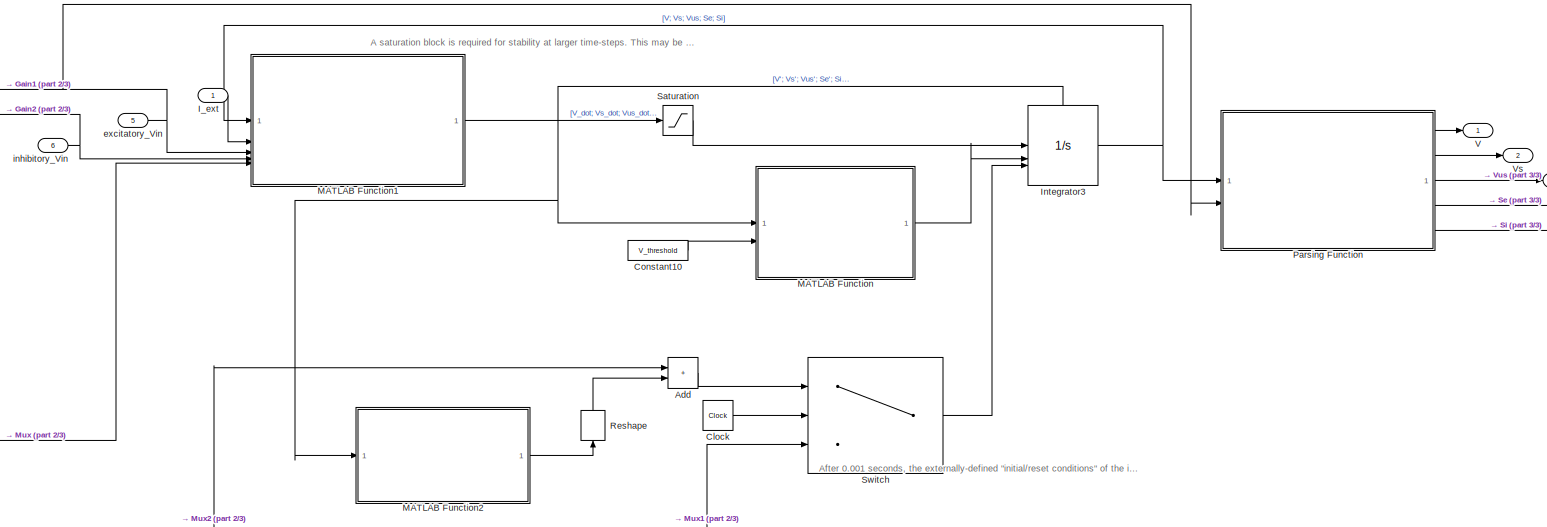
[diagram: Quad-Centre (Closed Coupling) Oscillator/QuadCentre (Closed) CPG/HalfCentre CPG P/MQIF_Neuron A - part 1/3, top right region]
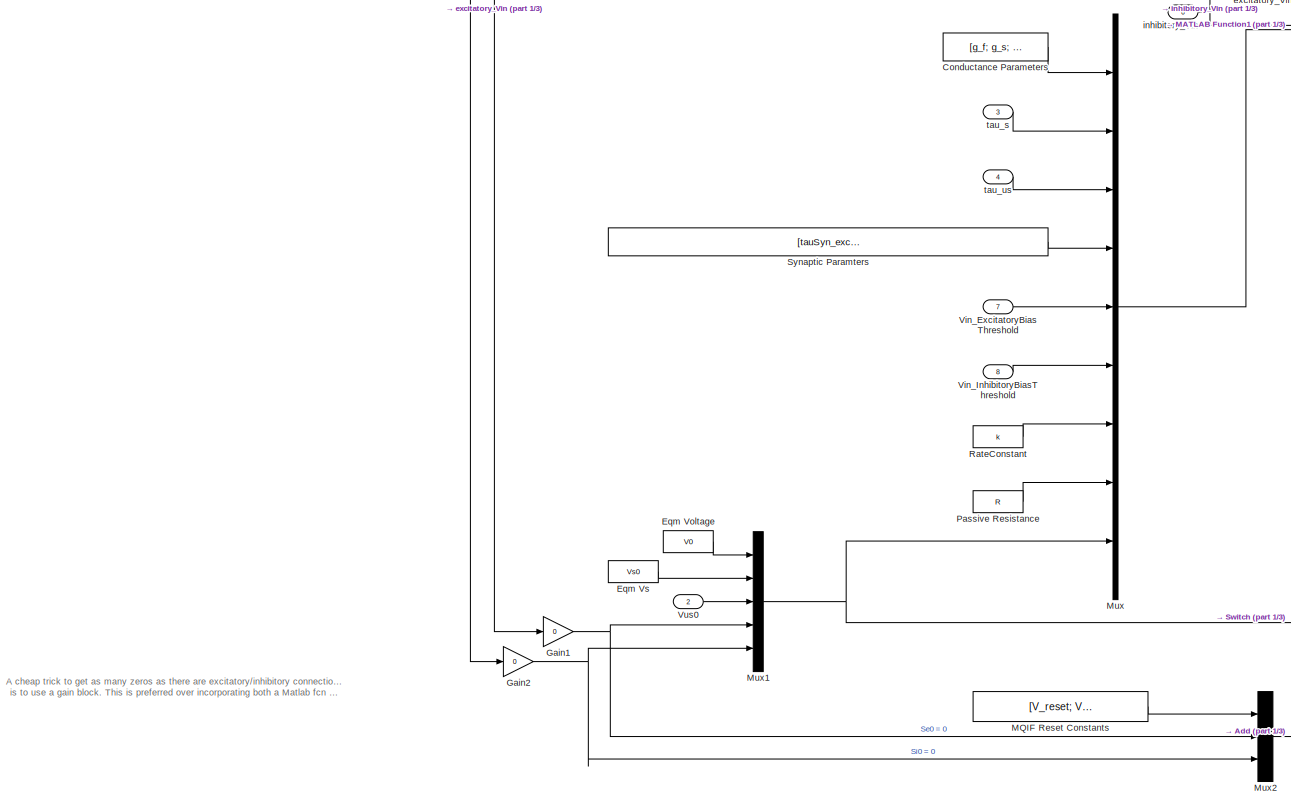
[diagram: Quad-Centre (Closed Coupling) Oscillator/QuadCentre (Closed) CPG/HalfCentre CPG P/MQIF_Neuron A - part 2/3, left side, full height]
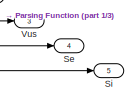
[diagram: Quad-Centre (Closed Coupling) Oscillator/QuadCentre (Closed) CPG/HalfCentre CPG P/MQIF_Neuron A - part 3/3, top right region]
BLOCK [SubSystem] Quad-Centre (Closed Coupling) Oscillator/QuadCentre (Closed) CPG/HalfCentre CPG P/MQIF_Neuron A
  TreatAsAtomicUnit = on
BLOCK [Sum] Quad-Centre (Closed Coupling) Oscillator/QuadCentre (Closed) CPG/HalfCentre CPG P/MQIF_Neuron A/Add
  IconShape = rectangular
BLOCK [Clock] Quad-Centre (Closed Coupling) Oscillator/QuadCentre (Closed) CPG/HalfCentre CPG P/MQIF_Neuron A/Clock
BLOCK [Constant] Quad-Centre (Closed Coupling) Oscillator/QuadCentre (Closed) CPG/HalfCentre CPG P/MQIF_Neuron A/Conductance Parameters
  Value = [g_f; g_s; g_us; C]
BLOCK [Constant] Quad-Centre (Closed Coupling) Oscillator/QuadCentre (Closed) CPG/HalfCentre CPG P/MQIF_Neuron A/Constant10
  Value = V_threshold
BLOCK [Constant] Quad-Centre (Closed Coupling) Oscillator/QuadCentre (Closed) CPG/HalfCentre CPG P/MQIF_Neuron A/Eqm Voltage
  Value = V0
BLOCK [Constant] Quad-Centre (Closed Coupling) Oscillator/QuadCentre (Closed) CPG/HalfCentre CPG P/MQIF_Neuron A/Eqm Vs
  Value = Vs0
BLOCK [Gain] Quad-Centre (Closed Coupling) Oscillator/QuadCentre (Closed) CPG/HalfCentre CPG P/MQIF_Neuron A/Gain1
  Gain = 0
BLOCK [Gain] Quad-Centre (Closed Coupling) Oscillator/QuadCentre (Closed) CPG/HalfCentre CPG P/MQIF_Neuron A/Gain2
  Gain = 0
BLOCK [Inport] Quad-Centre (Closed Coupling) Oscillator/QuadCentre (Closed) CPG/HalfCentre CPG P/MQIF_Neuron A/I_ext
BLOCK [Integrator] Quad-Centre (Closed Coupling) Oscillator/QuadCentre (Closed) CPG/HalfCentre CPG P/MQIF_Neuron A/Integrator3
  ExternalReset = rising
  InitialCondition = [V0 Vs0 Vus0]
  InitialConditionSource = external
  ShowStatePort = on
BLOCK [SubSystem] Quad-Centre (Closed Coupling) Oscillator/QuadCentre (Closed) CPG/HalfCentre CPG P/MQIF_Neuron A/MATLAB Function
  ErrorFcn = Stateflow.Translate.translate
  LibrarySourceBlock = simulink/User-Defined\nFunctions/MATLAB Function
  PermitHierarchicalResolution = ExplicitOnly
  SFBlockType = MATLAB Function
  TreatAsAtomicUnit = on
BLOCK [Demux] Quad-Centre (Closed Coupling) Oscillator/QuadCentre (Closed) CPG/HalfCentre CPG P/MQIF_Neuron A/MATLAB Function/ Demux 
  Outputs = 1
BLOCK [S-Function] Quad-Centre (Closed Coupling) Oscillator/QuadCentre (Closed) CPG/HalfCentre CPG P/MQIF_Neuron A/MATLAB Function/ SFunction 
  EnableBusSupport = on
  FunctionName = sf_sfun
  PortCounts = [2 2]
  SFcnIsStateOwnerBlock = off
  SFunctionDeploymentMode = off
  Tag = Stateflow S-Function 1
BLOCK [Terminator] Quad-Centre (Closed Coupling) Oscillator/QuadCentre (Closed) CPG/HalfCentre CPG P/MQIF_Neuron A/MATLAB Function/ Terminator 
BLOCK [Inport] Quad-Centre (Closed Coupling) Oscillator/QuadCentre (Closed) CPG/HalfCentre CPG P/MQIF_Neuron A/MATLAB Function/States
BLOCK [Inport] Quad-Centre (Closed Coupling) Oscillator/QuadCentre (Closed) CPG/HalfCentre CPG P/MQIF_Neuron A/MATLAB Function/V_threshold
  Port = 2
BLOCK [Outport] Quad-Centre (Closed Coupling) Oscillator/QuadCentre (Closed) CPG/HalfCentre CPG P/MQIF_Neuron A/MATLAB Function/reset
BLOCK [SubSystem] Quad-Centre (Closed Coupling) Oscillator/QuadCentre (Closed) CPG/HalfCentre CPG P/MQIF_Neuron A/MATLAB Function1
  ErrorFcn = Stateflow.Translate.translate
  LibrarySourceBlock = simulink/User-Defined\nFunctions/MATLAB Function
  PermitHierarchicalResolution = ExplicitOnly
  SFBlockType = MATLAB Function
  TreatAsAtomicUnit = on
BLOCK [Demux] Quad-Centre (Closed Coupling) Oscillator/QuadCentre (Closed) CPG/HalfCentre CPG P/MQIF_Neuron A/MATLAB Function1/ Demux 
  Outputs = 1
BLOCK [S-Function] Quad-Centre (Closed Coupling) Oscillator/QuadCentre (Closed) CPG/HalfCentre CPG P/MQIF_Neuron A/MATLAB Function1/ SFunction 
  EnableBusSupport = on
  FunctionName = sf_sfun
  PortCounts = [5 2]
  SFcnIsStateOwnerBlock = off
  SFunctionDeploymentMode = off
  Tag = Stateflow S-Function 2
BLOCK [Terminator] Quad-Centre (Closed Coupling) Oscillator/QuadCentre (Closed) CPG/HalfCentre CPG P/MQIF_Neuron A/MATLAB Function1/ Terminator 
BLOCK [Outport] Quad-Centre (Closed Coupling) Oscillator/QuadCentre (Closed) CPG/HalfCentre CPG P/MQIF_Neuron A/MATLAB Function1/Derivatives
BLOCK [Inport] Quad-Centre (Closed Coupling) Oscillator/QuadCentre (Closed) CPG/HalfCentre CPG P/MQIF_Neuron A/MATLAB Function1/I_ext
  Port = 2
BLOCK [Inport] Quad-Centre (Closed Coupling) Oscillator/QuadCentre (Closed) CPG/HalfCentre CPG P/MQIF_Neuron A/MATLAB Function1/Params
  Port = 5
BLOCK [Inport] Quad-Centre (Closed Coupling) Oscillator/QuadCentre (Closed) CPG/HalfCentre CPG P/MQIF_Neuron A/MATLAB Function1/State
BLOCK [Inport] Quad-Centre (Closed Coupling) Oscillator/QuadCentre (Closed) CPG/HalfCentre CPG P/MQIF_Neuron A/MATLAB Function1/excitatory_Vin
  Port = 3
BLOCK [Inport] Quad-Centre (Closed Coupling) Oscillator/QuadCentre (Closed) CPG/HalfCentre CPG P/MQIF_Neuron A/MATLAB Function1/inhibitory_Vin
  Port = 4
BLOCK [SubSystem] Quad-Centre (Closed Coupling) Oscillator/QuadCentre (Closed) CPG/HalfCentre CPG P/MQIF_Neuron A/MATLAB Function2
  ErrorFcn = Stateflow.Translate.translate
  LibrarySourceBlock = simulink/User-Defined\nFunctions/MATLAB Function
  PermitHierarchicalResolution = ExplicitOnly
  SFBlockType = MATLAB Function
  TreatAsAtomicUnit = on
BLOCK [Demux] Quad-Centre (Closed Coupling) Oscillator/QuadCentre (Closed) CPG/HalfCentre CPG P/MQIF_Neuron A/MATLAB Function2/ Demux 
  Outputs = 1
BLOCK [S-Function] Quad-Centre (Closed Coupling) Oscillator/QuadCentre (Closed) CPG/HalfCentre CPG P/MQIF_Neuron A/MATLAB Function2/ SFunction 
  EnableBusSupport = on
  FunctionName = sf_sfun
  PortCounts = [1 2]
  SFcnIsStateOwnerBlock = off
  SFunctionDeploymentMode = off
  Tag = Stateflow S-Function 3
BLOCK [Terminator] Quad-Centre (Closed Coupling) Oscillator/QuadCentre (Closed) CPG/HalfCentre CPG P/MQIF_Neuron A/MATLAB Function2/ Terminator 
BLOCK [Inport] Quad-Centre (Closed Coupling) Oscillator/QuadCentre (Closed) CPG/HalfCentre CPG P/MQIF_Neuron A/MATLAB Function2/inputVector
BLOCK [Outport] Quad-Centre (Closed Coupling) Oscillator/QuadCentre (Closed) CPG/HalfCentre CPG P/MQIF_Neuron A/MATLAB Function2/outputVector
BLOCK [Constant] Quad-Centre (Closed Coupling) Oscillator/QuadCentre (Closed) CPG/HalfCentre CPG P/MQIF_Neuron A/MQIF Reset Constants
  Value = [V_reset; Vs_reset; delta_Vus]
BLOCK [Mux] Quad-Centre (Closed Coupling) Oscillator/QuadCentre (Closed) CPG/HalfCentre CPG P/MQIF_Neuron A/Mux
  DisplayOption = bar
  Inputs = 9
BLOCK [Mux] Quad-Centre (Closed Coupling) Oscillator/QuadCentre (Closed) CPG/HalfCentre CPG P/MQIF_Neuron A/Mux1
  DisplayOption = bar
  Inputs = 5
BLOCK [Mux] Quad-Centre (Closed Coupling) Oscillator/QuadCentre (Closed) CPG/HalfCentre CPG P/MQIF_Neuron A/Mux2
  DisplayOption = bar
  Inputs = 3
BLOCK [SubSystem] Quad-Centre (Closed Coupling) Oscillator/QuadCentre (Closed) CPG/HalfCentre CPG P/MQIF_Neuron A/Parsing Function
  ErrorFcn = Stateflow.Translate.translate
  LibrarySourceBlock = simulink/User-Defined\nFunctions/MATLAB Function
  PermitHierarchicalResolution = ExplicitOnly
  SFBlockType = MATLAB Function
  TreatAsAtomicUnit = on
BLOCK [Demux] Quad-Centre (Closed Coupling) Oscillator/QuadCentre (Closed) CPG/HalfCentre CPG P/MQIF_Neuron A/Parsing Function/ Demux 
  Outputs = 1
BLOCK [S-Function] Quad-Centre (Closed Coupling) Oscillator/QuadCentre (Closed) CPG/HalfCentre CPG P/MQIF_Neuron A/Parsing Function/ SFunction 
  EnableBusSupport = on
  FunctionName = sf_sfun
  PortCounts = [2 6]
  SFcnIsStateOwnerBlock = off
  SFunctionDeploymentMode = off
  Tag = Stateflow S-Function 4
BLOCK [Terminator] Quad-Centre (Closed Coupling) Oscillator/QuadCentre (Closed) CPG/HalfCentre CPG P/MQIF_Neuron A/Parsing Function/ Terminator 
BLOCK [Outport] Quad-Centre (Closed Coupling) Oscillator/QuadCentre (Closed) CPG/HalfCentre CPG P/MQIF_Neuron A/Parsing Function/Se
  Port = 4
BLOCK [Outport] Quad-Centre (Closed Coupling) Oscillator/QuadCentre (Closed) CPG/HalfCentre CPG P/MQIF_Neuron A/Parsing Function/Si
  Port = 5
BLOCK [Outport] Quad-Centre (Closed Coupling) Oscillator/QuadCentre (Closed) CPG/HalfCentre CPG P/MQIF_Neuron A/Parsing Function/V
BLOCK [Inport] Quad-Centre (Closed Coupling) Oscillator/QuadCentre (Closed) CPG/HalfCentre CPG P/MQIF_Neuron A/Parsing Function/Ve
  Port = 2
BLOCK [Outport] Quad-Centre (Closed Coupling) Oscillator/QuadCentre (Closed) CPG/HalfCentre CPG P/MQIF_Neuron A/Parsing Function/Vs
  Port = 2
BLOCK [Outport] Quad-Centre (Closed Coupling) Oscillator/QuadCentre (Closed) CPG/HalfCentre CPG P/MQIF_Neuron A/Parsing Function/Vus
  Port = 3
BLOCK [Inport] Quad-Centre (Closed Coupling) Oscillator/QuadCentre (Closed) CPG/HalfCentre CPG P/MQIF_Neuron A/Parsing Function/vector
BLOCK [Constant] Quad-Centre (Closed Coupling) Oscillator/QuadCentre (Closed) CPG/HalfCentre CPG P/MQIF_Neuron A/Passive Resistance
  Value = R
BLOCK [Constant] Quad-Centre (Closed Coupling) Oscillator/QuadCentre (Closed) CPG/HalfCentre CPG P/MQIF_Neuron A/RateConstant
  Value = k
BLOCK [Reshape] Quad-Centre (Closed Coupling) Oscillator/QuadCentre (Closed) CPG/HalfCentre CPG P/MQIF_Neuron A/Reshape
  NameLocation = right
BLOCK [Saturate] Quad-Centre (Closed Coupling) Oscillator/QuadCentre (Closed) CPG/HalfCentre CPG P/MQIF_Neuron A/Saturation
  LinearizeAsGain = off
  LowerLimit = -1e4
  UpperLimit = 1e4
  ZeroCross = off
BLOCK [Outport] Quad-Centre (Closed Coupling) Oscillator/QuadCentre (Closed) CPG/HalfCentre CPG P/MQIF_Neuron A/Se
  Port = 4
BLOCK [Outport] Quad-Centre (Closed Coupling) Oscillator/QuadCentre (Closed) CPG/HalfCentre CPG P/MQIF_Neuron A/Si
  Port = 5
BLOCK [Switch] Quad-Centre (Closed Coupling) Oscillator/QuadCentre (Closed) CPG/HalfCentre CPG P/MQIF_Neuron A/Switch
  Criteria = u2 > Threshold
  InputSameDT = off
  SaturateOnIntegerOverflow = off
  Threshold = 1e-3
BLOCK [Constant] Quad-Centre (Closed Coupling) Oscillator/QuadCentre (Closed) CPG/HalfCentre CPG P/MQIF_Neuron A/Synaptic Paramters
  Value = [tauSyn_excitatory; tauSyn_inhibitory; Ve_syn; Vi_syn; g_syn_excitatory; g_syn_inhibitory]
BLOCK [Outport] Quad-Centre (Closed Coupling) Oscillator/QuadCentre (Closed) CPG/HalfCentre CPG P/MQIF_Neuron A/V
BLOCK [Inport] Quad-Centre (Closed Coupling) Oscillator/QuadCentre (Closed) CPG/HalfCentre CPG P/MQIF_Neuron A/Vin_ExcitatoryBiasThreshold
  Port = 7
BLOCK [Inport] Quad-Centre (Closed Coupling) Oscillator/QuadCentre (Closed) CPG/HalfCentre CPG P/MQIF_Neuron A/Vin_InhibitoryBiasThreshold
  Port = 8
BLOCK [Outport] Quad-Centre (Closed Coupling) Oscillator/QuadCentre (Closed) CPG/HalfCentre CPG P/MQIF_Neuron A/Vs
  Port = 2
BLOCK [Outport] Quad-Centre (Closed Coupling) Oscillator/QuadCentre (Closed) CPG/HalfCentre CPG P/MQIF_Neuron A/Vus
  Port = 3
BLOCK [Inport] Quad-Centre (Closed Coupling) Oscillator/QuadCentre (Closed) CPG/HalfCentre CPG P/MQIF_Neuron A/Vus0
  Port = 2
BLOCK [Inport] Quad-Centre (Closed Coupling) Oscillator/QuadCentre (Closed) CPG/HalfCentre CPG P/MQIF_Neuron A/excitatory_Vin
  Port = 5
BLOCK [Inport] Quad-Centre (Closed Coupling) Oscillator/QuadCentre (Closed) CPG/HalfCentre CPG P/MQIF_Neuron A/inhibitory_Vin
  Port = 6
BLOCK [Inport] Quad-Centre (Closed Coupling) Oscillator/QuadCentre (Closed) CPG/HalfCentre CPG P/MQIF_Neuron A/tau_s
  Port = 3
BLOCK [Inport] Quad-Centre (Closed Coupling) Oscillator/QuadCentre (Closed) CPG/HalfCentre CPG P/MQIF_Neuron A/tau_us
  Port = 4
BLOCK [SubSystem] Quad-Centre (Closed Coupling) Oscillator/QuadCentre (Closed) CPG/HalfCentre CPG P/MQIF_Neuron B
  NameLocation = top
  TreatAsAtomicUnit = on
BLOCK [Sum] Quad-Centre (Closed Coupling) Oscillator/QuadCentre (Closed) CPG/HalfCentre CPG P/MQIF_Neuron B/Add
  IconShape = rectangular
BLOCK [Clock] Quad-Centre (Closed Coupling) Oscillator/QuadCentre (Closed) CPG/HalfCentre CPG P/MQIF_Neuron B/Clock
BLOCK [Constant] Quad-Centre (Closed Coupling) Oscillator/QuadCentre (Closed) CPG/HalfCentre CPG P/MQIF_Neuron B/Conductance Parameters
  Value = [g_f; g_s; g_us; C]
BLOCK [Constant] Quad-Centre (Closed Coupling) Oscillator/QuadCentre (Closed) CPG/HalfCentre CPG P/MQIF_Neuron B/Constant10
  Value = V_threshold
BLOCK [Constant] Quad-Centre (Closed Coupling) Oscillator/QuadCentre (Closed) CPG/HalfCentre CPG P/MQIF_Neuron B/Eqm Voltage
  Value = V0
BLOCK [Constant] Quad-Centre (Closed Coupling) Oscillator/QuadCentre (Closed) CPG/HalfCentre CPG P/MQIF_Neuron B/Eqm Vs
  Value = Vs0
BLOCK [Gain] Quad-Centre (Closed Coupling) Oscillator/QuadCentre (Closed) CPG/HalfCentre CPG P/MQIF_Neuron B/Gain1
  Gain = 0
BLOCK [Gain] Quad-Centre (Closed Coupling) Oscillator/QuadCentre (Closed) CPG/HalfCentre CPG P/MQIF_Neuron B/Gain2
  Gain = 0
BLOCK [Inport] Quad-Centre (Closed Coupling) Oscillator/QuadCentre (Closed) CPG/HalfCentre CPG P/MQIF_Neuron B/I_ext
BLOCK [Integrator] Quad-Centre (Closed Coupling) Oscillator/QuadCentre (Closed) CPG/HalfCentre CPG P/MQIF_Neuron B/Integrator3
  ExternalReset = rising
  InitialCondition = [V0 Vs0 Vus0]
  InitialConditionSource = external
  ShowStatePort = on
BLOCK [SubSystem] Quad-Centre (Closed Coupling) Oscillator/QuadCentre (Closed) CPG/HalfCentre CPG P/MQIF_Neuron B/MATLAB Function
  ErrorFcn = Stateflow.Translate.translate
  LibrarySourceBlock = simulink/User-Defined\nFunctions/MATLAB Function
  PermitHierarchicalResolution = ExplicitOnly
  SFBlockType = MATLAB Function
  TreatAsAtomicUnit = on
BLOCK [Demux] Quad-Centre (Closed Coupling) Oscillator/QuadCentre (Closed) CPG/HalfCentre CPG P/MQIF_Neuron B/MATLAB Function/ Demux 
  Outputs = 1
BLOCK [S-Function] Quad-Centre (Closed Coupling) Oscillator/QuadCentre (Closed) CPG/HalfCentre CPG P/MQIF_Neuron B/MATLAB Function/ SFunction 
  EnableBusSupport = on
  FunctionName = sf_sfun
  PortCounts = [2 2]
  SFcnIsStateOwnerBlock = off
  SFunctionDeploymentMode = off
  Tag = Stateflow S-Function 5
BLOCK [Terminator] Quad-Centre (Closed Coupling) Oscillator/QuadCentre (Closed) CPG/HalfCentre CPG P/MQIF_Neuron B/MATLAB Function/ Terminator 
BLOCK [Inport] Quad-Centre (Closed Coupling) Oscillator/QuadCentre (Closed) CPG/HalfCentre CPG P/MQIF_Neuron B/MATLAB Function/States
BLOCK [Inport] Quad-Centre (Closed Coupling) Oscillator/QuadCentre (Closed) CPG/HalfCentre CPG P/MQIF_Neuron B/MATLAB Function/V_threshold
  Port = 2
BLOCK [Outport] Quad-Centre (Closed Coupling) Oscillator/QuadCentre (Closed) CPG/HalfCentre CPG P/MQIF_Neuron B/MATLAB Function/reset
BLOCK [SubSystem] Quad-Centre (Closed Coupling) Oscillator/QuadCentre (Closed) CPG/HalfCentre CPG P/MQIF_Neuron B/MATLAB Function1
  ErrorFcn = Stateflow.Translate.translate
  LibrarySourceBlock = simulink/User-Defined\nFunctions/MATLAB Function
  PermitHierarchicalResolution = ExplicitOnly
  SFBlockType = MATLAB Function
  TreatAsAtomicUnit = on
BLOCK [Demux] Quad-Centre (Closed Coupling) Oscillator/QuadCentre (Closed) CPG/HalfCentre CPG P/MQIF_Neuron B/MATLAB Function1/ Demux 
  Outputs = 1
BLOCK [S-Function] Quad-Centre (Closed Coupling) Oscillator/QuadCentre (Closed) CPG/HalfCentre CPG P/MQIF_Neuron B/MATLAB Function1/ SFunction 
  EnableBusSupport = on
  FunctionName = sf_sfun
  PortCounts = [5 2]
  SFcnIsStateOwnerBlock = off
  SFunctionDeploymentMode = off
  Tag = Stateflow S-Function 6
BLOCK [Terminator] Quad-Centre (Closed Coupling) Oscillator/QuadCentre (Closed) CPG/HalfCentre CPG P/MQIF_Neuron B/MATLAB Function1/ Terminator 
BLOCK [Outport] Quad-Centre (Closed Coupling) Oscillator/QuadCentre (Closed) CPG/HalfCentre CPG P/MQIF_Neuron B/MATLAB Function1/Derivatives
BLOCK [Inport] Quad-Centre (Closed Coupling) Oscillator/QuadCentre (Closed) CPG/HalfCentre CPG P/MQIF_Neuron B/MATLAB Function1/I_ext
  Port = 2
BLOCK [Inport] Quad-Centre (Closed Coupling) Oscillator/QuadCentre (Closed) CPG/HalfCentre CPG P/MQIF_Neuron B/MATLAB Function1/Params
  Port = 5
BLOCK [Inport] Quad-Centre (Closed Coupling) Oscillator/QuadCentre (Closed) CPG/HalfCentre CPG P/MQIF_Neuron B/MATLAB Function1/State
BLOCK [Inport] Quad-Centre (Closed Coupling) Oscillator/QuadCentre (Closed) CPG/HalfCentre CPG P/MQIF_Neuron B/MATLAB Function1/excitatory_Vin
  Port = 3
BLOCK [Inport] Quad-Centre (Closed Coupling) Oscillator/QuadCentre (Closed) CPG/HalfCentre CPG P/MQIF_Neuron B/MATLAB Function1/inhibitory_Vin
  Port = 4
BLOCK [SubSystem] Quad-Centre (Closed Coupling) Oscillator/QuadCentre (Closed) CPG/HalfCentre CPG P/MQIF_Neuron B/MATLAB Function2
  ErrorFcn = Stateflow.Translate.translate
  LibrarySourceBlock = simulink/User-Defined\nFunctions/MATLAB Function
  PermitHierarchicalResolution = ExplicitOnly
  SFBlockType = MATLAB Function
  TreatAsAtomicUnit = on
BLOCK [Demux] Quad-Centre (Closed Coupling) Oscillator/QuadCentre (Closed) CPG/HalfCentre CPG P/MQIF_Neuron B/MATLAB Function2/ Demux 
  Outputs = 1
BLOCK [S-Function] Quad-Centre (Closed Coupling) Oscillator/QuadCentre (Closed) CPG/HalfCentre CPG P/MQIF_Neuron B/MATLAB Function2/ SFunction 
  EnableBusSupport = on
  FunctionName = sf_sfun
  PortCounts = [1 2]
  SFcnIsStateOwnerBlock = off
  SFunctionDeploymentMode = off
  Tag = Stateflow S-Function 9
BLOCK [Terminator] Quad-Centre (Closed Coupling) Oscillator/QuadCentre (Closed) CPG/HalfCentre CPG P/MQIF_Neuron B/MATLAB Function2/ Terminator 
BLOCK [Inport] Quad-Centre (Closed Coupling) Oscillator/QuadCentre (Closed) CPG/HalfCentre CPG P/MQIF_Neuron B/MATLAB Function2/inputVector
BLOCK [Outport] Quad-Centre (Closed Coupling) Oscillator/QuadCentre (Closed) CPG/HalfCentre CPG P/MQIF_Neuron B/MATLAB Function2/outputVector
BLOCK [Constant] Quad-Centre (Closed Coupling) Oscillator/QuadCentre (Closed) CPG/HalfCentre CPG P/MQIF_Neuron B/MQIF Reset Constants
  Value = [V_reset; Vs_reset; delta_Vus]
BLOCK [Mux] Quad-Centre (Closed Coupling) Oscillator/QuadCentre (Closed) CPG/HalfCentre CPG P/MQIF_Neuron B/Mux
  DisplayOption = bar
  Inputs = 9
BLOCK [Mux] Quad-Centre (Closed Coupling) Oscillator/QuadCentre (Closed) CPG/HalfCentre CPG P/MQIF_Neuron B/Mux1
  DisplayOption = bar
  Inputs = 5
BLOCK [Mux] Quad-Centre (Closed Coupling) Oscillator/QuadCentre (Closed) CPG/HalfCentre CPG P/MQIF_Neuron B/Mux2
  DisplayOption = bar
  Inputs = 3
BLOCK [SubSystem] Quad-Centre (Closed Coupling) Oscillator/QuadCentre (Closed) CPG/HalfCentre CPG P/MQIF_Neuron B/Parsing Function
  ErrorFcn = Stateflow.Translate.translate
  LibrarySourceBlock = simulink/User-Defined\nFunctions/MATLAB Function
  PermitHierarchicalResolution = ExplicitOnly
  SFBlockType = MATLAB Function
  TreatAsAtomicUnit = on
BLOCK [Demux] Quad-Centre (Closed Coupling) Oscillator/QuadCentre (Closed) CPG/HalfCentre CPG P/MQIF_Neuron B/Parsing Function/ Demux 
  Outputs = 1
BLOCK [S-Function] Quad-Centre (Closed Coupling) Oscillator/QuadCentre (Closed) CPG/HalfCentre CPG P/MQIF_Neuron B/Parsing Function/ SFunction 
  EnableBusSupport = on
  FunctionName = sf_sfun
  PortCounts = [2 6]
  SFcnIsStateOwnerBlock = off
  SFunctionDeploymentMode = off
  Tag = Stateflow S-Function 11
BLOCK [Terminator] Quad-Centre (Closed Coupling) Oscillator/QuadCentre (Closed) CPG/HalfCentre CPG P/MQIF_Neuron B/Parsing Function/ Terminator 
BLOCK [Outport] Quad-Centre (Closed Coupling) Oscillator/QuadCentre (Closed) CPG/HalfCentre CPG P/MQIF_Neuron B/Parsing Function/Se
  Port = 4
BLOCK [Outport] Quad-Centre (Closed Coupling) Oscillator/QuadCentre (Closed) CPG/HalfCentre CPG P/MQIF_Neuron B/Parsing Function/Si
  Port = 5
BLOCK [Outport] Quad-Centre (Closed Coupling) Oscillator/QuadCentre (Closed) CPG/HalfCentre CPG P/MQIF_Neuron B/Parsing Function/V
BLOCK [Inport] Quad-Centre (Closed Coupling) Oscillator/QuadCentre (Closed) CPG/HalfCentre CPG P/MQIF_Neuron B/Parsing Function/Ve
  Port = 2
BLOCK [Outport] Quad-Centre (Closed Coupling) Oscillator/QuadCentre (Closed) CPG/HalfCentre CPG P/MQIF_Neuron B/Parsing Function/Vs
  Port = 2
BLOCK [Outport] Quad-Centre (Closed Coupling) Oscillator/QuadCentre (Closed) CPG/HalfCentre CPG P/MQIF_Neuron B/Parsing Function/Vus
  Port = 3
BLOCK [Inport] Quad-Centre (Closed Coupling) Oscillator/QuadCentre (Closed) CPG/HalfCentre CPG P/MQIF_Neuron B/Parsing Function/vector
BLOCK [Constant] Quad-Centre (Closed Coupling) Oscillator/QuadCentre (Closed) CPG/HalfCentre CPG P/MQIF_Neuron B/Passive Resistance
  Value = R
BLOCK [Constant] Quad-Centre (Closed Coupling) Oscillator/QuadCentre (Closed) CPG/HalfCentre CPG P/MQIF_Neuron B/RateConstant
  Value = k
BLOCK [Reshape] Quad-Centre (Closed Coupling) Oscillator/QuadCentre (Closed) CPG/HalfCentre CPG P/MQIF_Neuron B/Reshape
  NameLocation = right
BLOCK [Saturate] Quad-Centre (Closed Coupling) Oscillator/QuadCentre (Closed) CPG/HalfCentre CPG P/MQIF_Neuron B/Saturation
  LinearizeAsGain = off
  LowerLimit = -1e4
  UpperLimit = 1e4
  ZeroCross = off
BLOCK [Outport] Quad-Centre (Closed Coupling) Oscillator/QuadCentre (Closed) CPG/HalfCentre CPG P/MQIF_Neuron B/Se
  Port = 4
BLOCK [Outport] Quad-Centre (Closed Coupling) Oscillator/QuadCentre (Closed) CPG/HalfCentre CPG P/MQIF_Neuron B/Si
  Port = 5
BLOCK [Switch] Quad-Centre (Closed Coupling) Oscillator/QuadCentre (Closed) CPG/HalfCentre CPG P/MQIF_Neuron B/Switch
  Criteria = u2 > Threshold
  InputSameDT = off
  SaturateOnIntegerOverflow = off
  Threshold = 1e-3
BLOCK [Constant] Quad-Centre (Closed Coupling) Oscillator/QuadCentre (Closed) CPG/HalfCentre CPG P/MQIF_Neuron B/Synaptic Paramters
  Value = [tauSyn_excitatory; tauSyn_inhibitory; Ve_syn; Vi_syn; g_syn_excitatory; g_syn_inhibitory]
BLOCK [Outport] Quad-Centre (Closed Coupling) Oscillator/QuadCentre (Closed) CPG/HalfCentre CPG P/MQIF_Neuron B/V
BLOCK [Inport] Quad-Centre (Closed Coupling) Oscillator/QuadCentre (Closed) CPG/HalfCentre CPG P/MQIF_Neuron B/Vin_ExcitatoryBiasThreshold
  Port = 7
BLOCK [Inport] Quad-Centre (Closed Coupling) Oscillator/QuadCentre (Closed) CPG/HalfCentre CPG P/MQIF_Neuron B/Vin_InhibitoryBiasThreshold
  Port = 8
BLOCK [Outport] Quad-Centre (Closed Coupling) Oscillator/QuadCentre (Closed) CPG/HalfCentre CPG P/MQIF_Neuron B/Vs
  Port = 2
BLOCK [Outport] Quad-Centre (Closed Coupling) Oscillator/QuadCentre (Closed) CPG/HalfCentre CPG P/MQIF_Neuron B/Vus
  Port = 3
BLOCK [Inport] Quad-Centre (Closed Coupling) Oscillator/QuadCentre (Closed) CPG/HalfCentre CPG P/MQIF_Neuron B/Vus0
  Port = 2
BLOCK [Inport] Quad-Centre (Closed Coupling) Oscillator/QuadCentre (Closed) CPG/HalfCentre CPG P/MQIF_Neuron B/excitatory_Vin
  Port = 5
BLOCK [Inport] Quad-Centre (Closed Coupling) Oscillator/QuadCentre (Closed) CPG/HalfCentre CPG P/MQIF_Neuron B/inhibitory_Vin
  Port = 6
BLOCK [Inport] Quad-Centre (Closed Coupling) Oscillator/QuadCentre (Closed) CPG/HalfCentre CPG P/MQIF_Neuron B/tau_s
  Port = 3
BLOCK [Inport] Quad-Centre (Closed Coupling) Oscillator/QuadCentre (Closed) CPG/HalfCentre CPG P/MQIF_Neuron B/tau_us
  Port = 4
BLOCK [Mux] Quad-Centre (Closed Coupling) Oscillator/QuadCentre (Closed) CPG/HalfCentre CPG P/Mux
  DisplayOption = bar
  Inputs = 2
  NameLocation = top
BLOCK [Mux] Quad-Centre (Closed Coupling) Oscillator/QuadCentre (Closed) CPG/HalfCentre CPG P/Mux1
  DisplayOption = bar
  Inputs = 2
BLOCK [Scope] Quad-Centre (Closed Coupling) Oscillator/QuadCentre (Closed) CPG/HalfCentre CPG P/Scope
  Floating = off
  NumInputPorts = 4
  ScopeSpecificationString = Simulink.scopes.TimeScopeBlockCfg('CurrentConfiguration', extmgr.ConfigurationSet(extmgr.Configuration('Core','General UI',true),extmgr.Configuration('Core','Source UI',true),extmgr.Configuration('Sources','WiredSimulink',true,'DataLoggingVariableName','ScopeData1'),extmgr.Configuration('Visuals','Time Domain',true,'SerializedDisplays',{struct('MinYLimReal','-86.84465','MaxYLimReal','31.60184','YL...<+3449ch>
BLOCK [Step] Quad-Centre (Closed Coupling) Oscillator/QuadCentre (Closed) CPG/HalfCentre CPG P/Step
  After = 5
  NameLocation = top
  SampleTime = 0
  Time = delay
BLOCK [Step] Quad-Centre (Closed Coupling) Oscillator/QuadCentre (Closed) CPG/HalfCentre CPG P/Step1
  After = 5
  SampleTime = 0
  Time = delay
BLOCK [Constant] Quad-Centre (Closed Coupling) Oscillator/QuadCentre (Closed) CPG/HalfCentre CPG P/Tau_s_A
  Value = tau_s_A
BLOCK [Constant] Quad-Centre (Closed Coupling) Oscillator/QuadCentre (Closed) CPG/HalfCentre CPG P/Tau_s_B
  NameLocation = top
  Value = tau_s_B
BLOCK [Constant] Quad-Centre (Closed Coupling) Oscillator/QuadCentre (Closed) CPG/HalfCentre CPG P/Tau_us_A
  Value = tau_us_A
BLOCK [Constant] Quad-Centre (Closed Coupling) Oscillator/QuadCentre (Closed) CPG/HalfCentre CPG P/Tau_us_B
  NameLocation = top
  Value = tau_us_B
BLOCK [UnitDelay] Quad-Centre (Closed Coupling) Oscillator/QuadCentre (Closed) CPG/HalfCentre CPG P/Unit Delay
  HasFrameUpgradeWarning = on
  InitialCondition = [-54; -54]
  NameLocation = top
  SampleTime = -1
BLOCK [UnitDelay] Quad-Centre (Closed Coupling) Oscillator/QuadCentre (Closed) CPG/HalfCentre CPG P/Unit Delay1
  HasFrameUpgradeWarning = on
  InitialCondition = [-54; -54]
  SampleTime = -1
BLOCK [UnitDelay] Quad-Centre (Closed Coupling) Oscillator/QuadCentre (Closed) CPG/HalfCentre CPG P/Unit Delay2
  HasFrameUpgradeWarning = on
  InitialCondition = -54
  SampleTime = -1
BLOCK [UnitDelay] Quad-Centre (Closed Coupling) Oscillator/QuadCentre (Closed) CPG/HalfCentre CPG P/Unit Delay3
  HasFrameUpgradeWarning = on
  InitialCondition = -54
  NameLocation = top
  SampleTime = -1
BLOCK [Outport] Quad-Centre (Closed Coupling) Oscillator/QuadCentre (Closed) CPG/HalfCentre CPG P/VA
BLOCK [Inport] Quad-Centre (Closed Coupling) Oscillator/QuadCentre (Closed) CPG/HalfCentre CPG P/VA_ext [+; -]
BLOCK [Outport] Quad-Centre (Closed Coupling) Oscillator/QuadCentre (Closed) CPG/HalfCentre CPG P/VB
  NameLocation = top
  Port = 2
BLOCK [Inport] Quad-Centre (Closed Coupling) Oscillator/QuadCentre (Closed) CPG/HalfCentre CPG P/VB_ext [+; -]
  NameLocation = top
  Port = 2
BLOCK [Constant] Quad-Centre (Closed Coupling) Oscillator/QuadCentre (Closed) CPG/HalfCentre CPG P/Vus0_B
  NameLocation = top
  Value = -52
BLOCK [Constant] Quad-Centre (Closed Coupling) Oscillator/QuadCentre (Closed) CPG/HalfCentre CPG P/Vus1
  Value = -52
BLOCK [SubSystem] Quad-Centre (Closed Coupling) Oscillator/QuadCentre (Closed) CPG/HalfCentre CPG Q
  NameLocation = top
  TreatAsAtomicUnit = on
BLOCK [Demux] Quad-Centre (Closed Coupling) Oscillator/QuadCentre (Closed) CPG/HalfCentre CPG Q/Demux
  Outputs = 2
BLOCK [Demux] Quad-Centre (Closed Coupling) Oscillator/QuadCentre (Closed) CPG/HalfCentre CPG Q/Demux1
  NameLocation = top
  Outputs = 2
BLOCK [Constant] Quad-Centre (Closed Coupling) Oscillator/QuadCentre (Closed) CPG/HalfCentre CPG Q/Excitatory Gate Threshold
  Value = GB_excitatory
BLOCK [Constant] Quad-Centre (Closed Coupling) Oscillator/QuadCentre (Closed) CPG/HalfCentre CPG Q/Excitatory Gate Threshold1
  NameLocation = top
  Value = GB_excitatory
BLOCK [Constant] Quad-Centre (Closed Coupling) Oscillator/QuadCentre (Closed) CPG/HalfCentre CPG Q/Gate BIas B
  NameLocation = top
  Value = GB_B
BLOCK [Constant] Quad-Centre (Closed Coupling) Oscillator/QuadCentre (Closed) CPG/HalfCentre CPG Q/Inhibitory Gate A Threshold
  Value = GB_A
BLOCK [SubSystem] Quad-Centre (Closed Coupling) Oscillator/QuadCentre (Closed) CPG/HalfCentre CPG Q/MQIF_Neuron A
  TreatAsAtomicUnit = on
BLOCK [Sum] Quad-Centre (Closed Coupling) Oscillator/QuadCentre (Closed) CPG/HalfCentre CPG Q/MQIF_Neuron A/Add
  IconShape = rectangular
BLOCK [Clock] Quad-Centre (Closed Coupling) Oscillator/QuadCentre (Closed) CPG/HalfCentre CPG Q/MQIF_Neuron A/Clock
BLOCK [Constant] Quad-Centre (Closed Coupling) Oscillator/QuadCentre (Closed) CPG/HalfCentre CPG Q/MQIF_Neuron A/Conductance Parameters
  Value = [g_f; g_s; g_us; C]
BLOCK [Constant] Quad-Centre (Closed Coupling) Oscillator/QuadCentre (Closed) CPG/HalfCentre CPG Q/MQIF_Neuron A/Constant10
  Value = V_threshold
BLOCK [Constant] Quad-Centre (Closed Coupling) Oscillator/QuadCentre (Closed) CPG/HalfCentre CPG Q/MQIF_Neuron A/Eqm Voltage
  Value = V0
BLOCK [Constant] Quad-Centre (Closed Coupling) Oscillator/QuadCentre (Closed) CPG/HalfCentre CPG Q/MQIF_Neuron A/Eqm Vs
  Value = Vs0
BLOCK [Gain] Quad-Centre (Closed Coupling) Oscillator/QuadCentre (Closed) CPG/HalfCentre CPG Q/MQIF_Neuron A/Gain1
  Gain = 0
BLOCK [Gain] Quad-Centre (Closed Coupling) Oscillator/QuadCentre (Closed) CPG/HalfCentre CPG Q/MQIF_Neuron A/Gain2
  Gain = 0
BLOCK [Inport] Quad-Centre (Closed Coupling) Oscillator/QuadCentre (Closed) CPG/HalfCentre CPG Q/MQIF_Neuron A/I_ext
BLOCK [Integrator] Quad-Centre (Closed Coupling) Oscillator/QuadCentre (Closed) CPG/HalfCentre CPG Q/MQIF_Neuron A/Integrator3
  ExternalReset = rising
  InitialCondition = [V0 Vs0 Vus0]
  InitialConditionSource = external
  ShowStatePort = on
BLOCK [SubSystem] Quad-Centre (Closed Coupling) Oscillator/QuadCentre (Closed) CPG/HalfCentre CPG Q/MQIF_Neuron A/MATLAB Function
  ErrorFcn = Stateflow.Translate.translate
  LibrarySourceBlock = simulink/User-Defined\nFunctions/MATLAB Function
  PermitHierarchicalResolution = ExplicitOnly
  SFBlockType = MATLAB Function
  TreatAsAtomicUnit = on
BLOCK [Demux] Quad-Centre (Closed Coupling) Oscillator/QuadCentre (Closed) CPG/HalfCentre CPG Q/MQIF_Neuron A/MATLAB Function/ Demux 
  Outputs = 1
BLOCK [S-Function] Quad-Centre (Closed Coupling) Oscillator/QuadCentre (Closed) CPG/HalfCentre CPG Q/MQIF_Neuron A/MATLAB Function/ SFunction 
  EnableBusSupport = on
  FunctionName = sf_sfun
  PortCounts = [2 2]
  SFcnIsStateOwnerBlock = off
  SFunctionDeploymentMode = off
  Tag = Stateflow S-Function 21
BLOCK [Terminator] Quad-Centre (Closed Coupling) Oscillator/QuadCentre (Closed) CPG/HalfCentre CPG Q/MQIF_Neuron A/MATLAB Function/ Terminator 
BLOCK [Inport] Quad-Centre (Closed Coupling) Oscillator/QuadCentre (Closed) CPG/HalfCentre CPG Q/MQIF_Neuron A/MATLAB Function/States
BLOCK [Inport] Quad-Centre (Closed Coupling) Oscillator/QuadCentre (Closed) CPG/HalfCentre CPG Q/MQIF_Neuron A/MATLAB Function/V_threshold
  Port = 2
BLOCK [Outport] Quad-Centre (Closed Coupling) Oscillator/QuadCentre (Closed) CPG/HalfCentre CPG Q/MQIF_Neuron A/MATLAB Function/reset
BLOCK [SubSystem] Quad-Centre (Closed Coupling) Oscillator/QuadCentre (Closed) CPG/HalfCentre CPG Q/MQIF_Neuron A/MATLAB Function1
  ErrorFcn = Stateflow.Translate.translate
  LibrarySourceBlock = simulink/User-Defined\nFunctions/MATLAB Function
  PermitHierarchicalResolution = ExplicitOnly
  SFBlockType = MATLAB Function
  TreatAsAtomicUnit = on
BLOCK [Demux] Quad-Centre (Closed Coupling) Oscillator/QuadCentre (Closed) CPG/HalfCentre CPG Q/MQIF_Neuron A/MATLAB Function1/ Demux 
  Outputs = 1
BLOCK [S-Function] Quad-Centre (Closed Coupling) Oscillator/QuadCentre (Closed) CPG/HalfCentre CPG Q/MQIF_Neuron A/MATLAB Function1/ SFunction 
  EnableBusSupport = on
  FunctionName = sf_sfun
  PortCounts = [5 2]
  SFcnIsStateOwnerBlock = off
  SFunctionDeploymentMode = off
  Tag = Stateflow S-Function 22
BLOCK [Terminator] Quad-Centre (Closed Coupling) Oscillator/QuadCentre (Closed) CPG/HalfCentre CPG Q/MQIF_Neuron A/MATLAB Function1/ Terminator 
BLOCK [Outport] Quad-Centre (Closed Coupling) Oscillator/QuadCentre (Closed) CPG/HalfCentre CPG Q/MQIF_Neuron A/MATLAB Function1/Derivatives
BLOCK [Inport] Quad-Centre (Closed Coupling) Oscillator/QuadCentre (Closed) CPG/HalfCentre CPG Q/MQIF_Neuron A/MATLAB Function1/I_ext
  Port = 2
BLOCK [Inport] Quad-Centre (Closed Coupling) Oscillator/QuadCentre (Closed) CPG/HalfCentre CPG Q/MQIF_Neuron A/MATLAB Function1/Params
  Port = 5
BLOCK [Inport] Quad-Centre (Closed Coupling) Oscillator/QuadCentre (Closed) CPG/HalfCentre CPG Q/MQIF_Neuron A/MATLAB Function1/State
BLOCK [Inport] Quad-Centre (Closed Coupling) Oscillator/QuadCentre (Closed) CPG/HalfCentre CPG Q/MQIF_Neuron A/MATLAB Function1/excitatory_Vin
  Port = 3
BLOCK [Inport] Quad-Centre (Closed Coupling) Oscillator/QuadCentre (Closed) CPG/HalfCentre CPG Q/MQIF_Neuron A/MATLAB Function1/inhibitory_Vin
  Port = 4
BLOCK [SubSystem] Quad-Centre (Closed Coupling) Oscillator/QuadCentre (Closed) CPG/HalfCentre CPG Q/MQIF_Neuron A/MATLAB Function2
  ErrorFcn = Stateflow.Translate.translate
  LibrarySourceBlock = simulink/User-Defined\nFunctions/MATLAB Function
  PermitHierarchicalResolution = ExplicitOnly
  SFBlockType = MATLAB Function
  TreatAsAtomicUnit = on
BLOCK [Demux] Quad-Centre (Closed Coupling) Oscillator/QuadCentre (Closed) CPG/HalfCentre CPG Q/MQIF_Neuron A/MATLAB Function2/ Demux 
  Outputs = 1
BLOCK [S-Function] Quad-Centre (Closed Coupling) Oscillator/QuadCentre (Closed) CPG/HalfCentre CPG Q/MQIF_Neuron A/MATLAB Function2/ SFunction 
  EnableBusSupport = on
  FunctionName = sf_sfun
  PortCounts = [1 2]
  SFcnIsStateOwnerBlock = off
  SFunctionDeploymentMode = off
  Tag = Stateflow S-Function 23
BLOCK [Terminator] Quad-Centre (Closed Coupling) Oscillator/QuadCentre (Closed) CPG/HalfCentre CPG Q/MQIF_Neuron A/MATLAB Function2/ Terminator 
BLOCK [Inport] Quad-Centre (Closed Coupling) Oscillator/QuadCentre (Closed) CPG/HalfCentre CPG Q/MQIF_Neuron A/MATLAB Function2/inputVector
BLOCK [Outport] Quad-Centre (Closed Coupling) Oscillator/QuadCentre (Closed) CPG/HalfCentre CPG Q/MQIF_Neuron A/MATLAB Function2/outputVector
BLOCK [Constant] Quad-Centre (Closed Coupling) Oscillator/QuadCentre (Closed) CPG/HalfCentre CPG Q/MQIF_Neuron A/MQIF Reset Constants
  Value = [V_reset; Vs_reset; delta_Vus]
BLOCK [Mux] Quad-Centre (Closed Coupling) Oscillator/QuadCentre (Closed) CPG/HalfCentre CPG Q/MQIF_Neuron A/Mux
  DisplayOption = bar
  Inputs = 9
BLOCK [Mux] Quad-Centre (Closed Coupling) Oscillator/QuadCentre (Closed) CPG/HalfCentre CPG Q/MQIF_Neuron A/Mux1
  DisplayOption = bar
  Inputs = 5
BLOCK [Mux] Quad-Centre (Closed Coupling) Oscillator/QuadCentre (Closed) CPG/HalfCentre CPG Q/MQIF_Neuron A/Mux2
  DisplayOption = bar
  Inputs = 3
BLOCK [SubSystem] Quad-Centre (Closed Coupling) Oscillator/QuadCentre (Closed) CPG/HalfCentre CPG Q/MQIF_Neuron A/Parsing Function
  ErrorFcn = Stateflow.Translate.translate
  LibrarySourceBlock = simulink/User-Defined\nFunctions/MATLAB Function
  PermitHierarchicalResolution = ExplicitOnly
  SFBlockType = MATLAB Function
  TreatAsAtomicUnit = on
BLOCK [Demux] Quad-Centre (Closed Coupling) Oscillator/QuadCentre (Closed) CPG/HalfCentre CPG Q/MQIF_Neuron A/Parsing Function/ Demux 
  Outputs = 1
BLOCK [S-Function] Quad-Centre (Closed Coupling) Oscillator/QuadCentre (Closed) CPG/HalfCentre CPG Q/MQIF_Neuron A/Parsing Function/ SFunction 
  EnableBusSupport = on
  FunctionName = sf_sfun
  PortCounts = [2 6]
  SFcnIsStateOwnerBlock = off
  SFunctionDeploymentMode = off
  Tag = Stateflow S-Function 24
BLOCK [Terminator] Quad-Centre (Closed Coupling) Oscillator/QuadCentre (Closed) CPG/HalfCentre CPG Q/MQIF_Neuron A/Parsing Function/ Terminator 
BLOCK [Outport] Quad-Centre (Closed Coupling) Oscillator/QuadCentre (Closed) CPG/HalfCentre CPG Q/MQIF_Neuron A/Parsing Function/Se
  Port = 4
BLOCK [Outport] Quad-Centre (Closed Coupling) Oscillator/QuadCentre (Closed) CPG/HalfCentre CPG Q/MQIF_Neuron A/Parsing Function/Si
  Port = 5
BLOCK [Outport] Quad-Centre (Closed Coupling) Oscillator/QuadCentre (Closed) CPG/HalfCentre CPG Q/MQIF_Neuron A/Parsing Function/V
BLOCK [Inport] Quad-Centre (Closed Coupling) Oscillator/QuadCentre (Closed) CPG/HalfCentre CPG Q/MQIF_Neuron A/Parsing Function/Ve
  Port = 2
BLOCK [Outport] Quad-Centre (Closed Coupling) Oscillator/QuadCentre (Closed) CPG/HalfCentre CPG Q/MQIF_Neuron A/Parsing Function/Vs
  Port = 2
BLOCK [Outport] Quad-Centre (Closed Coupling) Oscillator/QuadCentre (Closed) CPG/HalfCentre CPG Q/MQIF_Neuron A/Parsing Function/Vus
  Port = 3
BLOCK [Inport] Quad-Centre (Closed Coupling) Oscillator/QuadCentre (Closed) CPG/HalfCentre CPG Q/MQIF_Neuron A/Parsing Function/vector
BLOCK [Constant] Quad-Centre (Closed Coupling) Oscillator/QuadCentre (Closed) CPG/HalfCentre CPG Q/MQIF_Neuron A/Passive Resistance
  Value = R
BLOCK [Constant] Quad-Centre (Closed Coupling) Oscillator/QuadCentre (Closed) CPG/HalfCentre CPG Q/MQIF_Neuron A/RateConstant
  Value = k
BLOCK [Reshape] Quad-Centre (Closed Coupling) Oscillator/QuadCentre (Closed) CPG/HalfCentre CPG Q/MQIF_Neuron A/Reshape
  NameLocation = right
BLOCK [Saturate] Quad-Centre (Closed Coupling) Oscillator/QuadCentre (Closed) CPG/HalfCentre CPG Q/MQIF_Neuron A/Saturation
  LinearizeAsGain = off
  LowerLimit = -1e4
  UpperLimit = 1e4
  ZeroCross = off
BLOCK [Outport] Quad-Centre (Closed Coupling) Oscillator/QuadCentre (Closed) CPG/HalfCentre CPG Q/MQIF_Neuron A/Se
  Port = 4
BLOCK [Outport] Quad-Centre (Closed Coupling) Oscillator/QuadCentre (Closed) CPG/HalfCentre CPG Q/MQIF_Neuron A/Si
  Port = 5
BLOCK [Switch] Quad-Centre (Closed Coupling) Oscillator/QuadCentre (Closed) CPG/HalfCentre CPG Q/MQIF_Neuron A/Switch
  Criteria = u2 > Threshold
  InputSameDT = off
  SaturateOnIntegerOverflow = off
  Threshold = 1e-3
BLOCK [Constant] Quad-Centre (Closed Coupling) Oscillator/QuadCentre (Closed) CPG/HalfCentre CPG Q/MQIF_Neuron A/Synaptic Paramters
  Value = [tauSyn_excitatory; tauSyn_inhibitory; Ve_syn; Vi_syn; g_syn_excitatory; g_syn_inhibitory]
BLOCK [Outport] Quad-Centre (Closed Coupling) Oscillator/QuadCentre (Closed) CPG/HalfCentre CPG Q/MQIF_Neuron A/V
BLOCK [Inport] Quad-Centre (Closed Coupling) Oscillator/QuadCentre (Closed) CPG/HalfCentre CPG Q/MQIF_Neuron A/Vin_ExcitatoryBiasThreshold
  Port = 7
BLOCK [Inport] Quad-Centre (Closed Coupling) Oscillator/QuadCentre (Closed) CPG/HalfCentre CPG Q/MQIF_Neuron A/Vin_InhibitoryBiasThreshold
  Port = 8
BLOCK [Outport] Quad-Centre (Closed Coupling) Oscillator/QuadCentre (Closed) CPG/HalfCentre CPG Q/MQIF_Neuron A/Vs
  Port = 2
BLOCK [Outport] Quad-Centre (Closed Coupling) Oscillator/QuadCentre (Closed) CPG/HalfCentre CPG Q/MQIF_Neuron A/Vus
  Port = 3
BLOCK [Inport] Quad-Centre (Closed Coupling) Oscillator/QuadCentre (Closed) CPG/HalfCentre CPG Q/MQIF_Neuron A/Vus0
  Port = 2
BLOCK [Inport] Quad-Centre (Closed Coupling) Oscillator/QuadCentre (Closed) CPG/HalfCentre CPG Q/MQIF_Neuron A/excitatory_Vin
  Port = 5
BLOCK [Inport] Quad-Centre (Closed Coupling) Oscillator/QuadCentre (Closed) CPG/HalfCentre CPG Q/MQIF_Neuron A/inhibitory_Vin
  Port = 6
BLOCK [Inport] Quad-Centre (Closed Coupling) Oscillator/QuadCentre (Closed) CPG/HalfCentre CPG Q/MQIF_Neuron A/tau_s
  Port = 3
BLOCK [Inport] Quad-Centre (Closed Coupling) Oscillator/QuadCentre (Closed) CPG/HalfCentre CPG Q/MQIF_Neuron A/tau_us
  Port = 4
BLOCK [SubSystem] Quad-Centre (Closed Coupling) Oscillator/QuadCentre (Closed) CPG/HalfCentre CPG Q/MQIF_Neuron B
  NameLocation = top
  TreatAsAtomicUnit = on
BLOCK [Sum] Quad-Centre (Closed Coupling) Oscillator/QuadCentre (Closed) CPG/HalfCentre CPG Q/MQIF_Neuron B/Add
  IconShape = rectangular
BLOCK [Clock] Quad-Centre (Closed Coupling) Oscillator/QuadCentre (Closed) CPG/HalfCentre CPG Q/MQIF_Neuron B/Clock
BLOCK [Constant] Quad-Centre (Closed Coupling) Oscillator/QuadCentre (Closed) CPG/HalfCentre CPG Q/MQIF_Neuron B/Conductance Parameters
  Value = [g_f; g_s; g_us; C]
BLOCK [Constant] Quad-Centre (Closed Coupling) Oscillator/QuadCentre (Closed) CPG/HalfCentre CPG Q/MQIF_Neuron B/Constant10
  Value = V_threshold
BLOCK [Constant] Quad-Centre (Closed Coupling) Oscillator/QuadCentre (Closed) CPG/HalfCentre CPG Q/MQIF_Neuron B/Eqm Voltage
  Value = V0
BLOCK [Constant] Quad-Centre (Closed Coupling) Oscillator/QuadCentre (Closed) CPG/HalfCentre CPG Q/MQIF_Neuron B/Eqm Vs
  Value = Vs0
BLOCK [Gain] Quad-Centre (Closed Coupling) Oscillator/QuadCentre (Closed) CPG/HalfCentre CPG Q/MQIF_Neuron B/Gain1
  Gain = 0
BLOCK [Gain] Quad-Centre (Closed Coupling) Oscillator/QuadCentre (Closed) CPG/HalfCentre CPG Q/MQIF_Neuron B/Gain2
  Gain = 0
BLOCK [Inport] Quad-Centre (Closed Coupling) Oscillator/QuadCentre (Closed) CPG/HalfCentre CPG Q/MQIF_Neuron B/I_ext
BLOCK [Integrator] Quad-Centre (Closed Coupling) Oscillator/QuadCentre (Closed) CPG/HalfCentre CPG Q/MQIF_Neuron B/Integrator3
  ExternalReset = rising
  InitialCondition = [V0 Vs0 Vus0]
  InitialConditionSource = external
  ShowStatePort = on
BLOCK [SubSystem] Quad-Centre (Closed Coupling) Oscillator/QuadCentre (Closed) CPG/HalfCentre CPG Q/MQIF_Neuron B/MATLAB Function
  ErrorFcn = Stateflow.Translate.translate
  LibrarySourceBlock = simulink/User-Defined\nFunctions/MATLAB Function
  PermitHierarchicalResolution = ExplicitOnly
  SFBlockType = MATLAB Function
  TreatAsAtomicUnit = on
BLOCK [Demux] Quad-Centre (Closed Coupling) Oscillator/QuadCentre (Closed) CPG/HalfCentre CPG Q/MQIF_Neuron B/MATLAB Function/ Demux 
  Outputs = 1
BLOCK [S-Function] Quad-Centre (Closed Coupling) Oscillator/QuadCentre (Closed) CPG/HalfCentre CPG Q/MQIF_Neuron B/MATLAB Function/ SFunction 
  EnableBusSupport = on
  FunctionName = sf_sfun
  PortCounts = [2 2]
  SFcnIsStateOwnerBlock = off
  SFunctionDeploymentMode = off
  Tag = Stateflow S-Function 25
BLOCK [Terminator] Quad-Centre (Closed Coupling) Oscillator/QuadCentre (Closed) CPG/HalfCentre CPG Q/MQIF_Neuron B/MATLAB Function/ Terminator 
BLOCK [Inport] Quad-Centre (Closed Coupling) Oscillator/QuadCentre (Closed) CPG/HalfCentre CPG Q/MQIF_Neuron B/MATLAB Function/States
BLOCK [Inport] Quad-Centre (Closed Coupling) Oscillator/QuadCentre (Closed) CPG/HalfCentre CPG Q/MQIF_Neuron B/MATLAB Function/V_threshold
  Port = 2
BLOCK [Outport] Quad-Centre (Closed Coupling) Oscillator/QuadCentre (Closed) CPG/HalfCentre CPG Q/MQIF_Neuron B/MATLAB Function/reset
BLOCK [SubSystem] Quad-Centre (Closed Coupling) Oscillator/QuadCentre (Closed) CPG/HalfCentre CPG Q/MQIF_Neuron B/MATLAB Function1
  ErrorFcn = Stateflow.Translate.translate
  LibrarySourceBlock = simulink/User-Defined\nFunctions/MATLAB Function
  PermitHierarchicalResolution = ExplicitOnly
  SFBlockType = MATLAB Function
  TreatAsAtomicUnit = on
BLOCK [Demux] Quad-Centre (Closed Coupling) Oscillator/QuadCentre (Closed) CPG/HalfCentre CPG Q/MQIF_Neuron B/MATLAB Function1/ Demux 
  Outputs = 1
BLOCK [S-Function] Quad-Centre (Closed Coupling) Oscillator/QuadCentre (Closed) CPG/HalfCentre CPG Q/MQIF_Neuron B/MATLAB Function1/ SFunction 
  EnableBusSupport = on
  FunctionName = sf_sfun
  PortCounts = [5 2]
  SFcnIsStateOwnerBlock = off
  SFunctionDeploymentMode = off
  Tag = Stateflow S-Function 26
BLOCK [Terminator] Quad-Centre (Closed Coupling) Oscillator/QuadCentre (Closed) CPG/HalfCentre CPG Q/MQIF_Neuron B/MATLAB Function1/ Terminator 
BLOCK [Outport] Quad-Centre (Closed Coupling) Oscillator/QuadCentre (Closed) CPG/HalfCentre CPG Q/MQIF_Neuron B/MATLAB Function1/Derivatives
BLOCK [Inport] Quad-Centre (Closed Coupling) Oscillator/QuadCentre (Closed) CPG/HalfCentre CPG Q/MQIF_Neuron B/MATLAB Function1/I_ext
  Port = 2
BLOCK [Inport] Quad-Centre (Closed Coupling) Oscillator/QuadCentre (Closed) CPG/HalfCentre CPG Q/MQIF_Neuron B/MATLAB Function1/Params
  Port = 5
BLOCK [Inport] Quad-Centre (Closed Coupling) Oscillator/QuadCentre (Closed) CPG/HalfCentre CPG Q/MQIF_Neuron B/MATLAB Function1/State
BLOCK [Inport] Quad-Centre (Closed Coupling) Oscillator/QuadCentre (Closed) CPG/HalfCentre CPG Q/MQIF_Neuron B/MATLAB Function1/excitatory_Vin
  Port = 3
BLOCK [Inport] Quad-Centre (Closed Coupling) Oscillator/QuadCentre (Closed) CPG/HalfCentre CPG Q/MQIF_Neuron B/MATLAB Function1/inhibitory_Vin
  Port = 4
BLOCK [SubSystem] Quad-Centre (Closed Coupling) Oscillator/QuadCentre (Closed) CPG/HalfCentre CPG Q/MQIF_Neuron B/MATLAB Function2
  ErrorFcn = Stateflow.Translate.translate
  LibrarySourceBlock = simulink/User-Defined\nFunctions/MATLAB Function
  PermitHierarchicalResolution = ExplicitOnly
  SFBlockType = MATLAB Function
  TreatAsAtomicUnit = on
BLOCK [Demux] Quad-Centre (Closed Coupling) Oscillator/QuadCentre (Closed) CPG/HalfCentre CPG Q/MQIF_Neuron B/MATLAB Function2/ Demux 
  Outputs = 1
BLOCK [S-Function] Quad-Centre (Closed Coupling) Oscillator/QuadCentre (Closed) CPG/HalfCentre CPG Q/MQIF_Neuron B/MATLAB Function2/ SFunction 
  EnableBusSupport = on
  FunctionName = sf_sfun
  PortCounts = [1 2]
  SFcnIsStateOwnerBlock = off
  SFunctionDeploymentMode = off
  Tag = Stateflow S-Function 27
BLOCK [Terminator] Quad-Centre (Closed Coupling) Oscillator/QuadCentre (Closed) CPG/HalfCentre CPG Q/MQIF_Neuron B/MATLAB Function2/ Terminator 
BLOCK [Inport] Quad-Centre (Closed Coupling) Oscillator/QuadCentre (Closed) CPG/HalfCentre CPG Q/MQIF_Neuron B/MATLAB Function2/inputVector
BLOCK [Outport] Quad-Centre (Closed Coupling) Oscillator/QuadCentre (Closed) CPG/HalfCentre CPG Q/MQIF_Neuron B/MATLAB Function2/outputVector
BLOCK [Constant] Quad-Centre (Closed Coupling) Oscillator/QuadCentre (Closed) CPG/HalfCentre CPG Q/MQIF_Neuron B/MQIF Reset Constants
  Value = [V_reset; Vs_reset; delta_Vus]
BLOCK [Mux] Quad-Centre (Closed Coupling) Oscillator/QuadCentre (Closed) CPG/HalfCentre CPG Q/MQIF_Neuron B/Mux
  DisplayOption = bar
  Inputs = 9
BLOCK [Mux] Quad-Centre (Closed Coupling) Oscillator/QuadCentre (Closed) CPG/HalfCentre CPG Q/MQIF_Neuron B/Mux1
  DisplayOption = bar
  Inputs = 5
BLOCK [Mux] Quad-Centre (Closed Coupling) Oscillator/QuadCentre (Closed) CPG/HalfCentre CPG Q/MQIF_Neuron B/Mux2
  DisplayOption = bar
  Inputs = 3
BLOCK [SubSystem] Quad-Centre (Closed Coupling) Oscillator/QuadCentre (Closed) CPG/HalfCentre CPG Q/MQIF_Neuron B/Parsing Function
  ErrorFcn = Stateflow.Translate.translate
  LibrarySourceBlock = simulink/User-Defined\nFunctions/MATLAB Function
  PermitHierarchicalResolution = ExplicitOnly
  SFBlockType = MATLAB Function
  TreatAsAtomicUnit = on
BLOCK [Demux] Quad-Centre (Closed Coupling) Oscillator/QuadCentre (Closed) CPG/HalfCentre CPG Q/MQIF_Neuron B/Parsing Function/ Demux 
  Outputs = 1
BLOCK [S-Function] Quad-Centre (Closed Coupling) Oscillator/QuadCentre (Closed) CPG/HalfCentre CPG Q/MQIF_Neuron B/Parsing Function/ SFunction 
  EnableBusSupport = on
  FunctionName = sf_sfun
  PortCounts = [2 6]
  SFcnIsStateOwnerBlock = off
  SFunctionDeploymentMode = off
  Tag = Stateflow S-Function 28
BLOCK [Terminator] Quad-Centre (Closed Coupling) Oscillator/QuadCentre (Closed) CPG/HalfCentre CPG Q/MQIF_Neuron B/Parsing Function/ Terminator 
BLOCK [Outport] Quad-Centre (Closed Coupling) Oscillator/QuadCentre (Closed) CPG/HalfCentre CPG Q/MQIF_Neuron B/Parsing Function/Se
  Port = 4
BLOCK [Outport] Quad-Centre (Closed Coupling) Oscillator/QuadCentre (Closed) CPG/HalfCentre CPG Q/MQIF_Neuron B/Parsing Function/Si
  Port = 5
BLOCK [Outport] Quad-Centre (Closed Coupling) Oscillator/QuadCentre (Closed) CPG/HalfCentre CPG Q/MQIF_Neuron B/Parsing Function/V
BLOCK [Inport] Quad-Centre (Closed Coupling) Oscillator/QuadCentre (Closed) CPG/HalfCentre CPG Q/MQIF_Neuron B/Parsing Function/Ve
  Port = 2
BLOCK [Outport] Quad-Centre (Closed Coupling) Oscillator/QuadCentre (Closed) CPG/HalfCentre CPG Q/MQIF_Neuron B/Parsing Function/Vs
  Port = 2
BLOCK [Outport] Quad-Centre (Closed Coupling) Oscillator/QuadCentre (Closed) CPG/HalfCentre CPG Q/MQIF_Neuron B/Parsing Function/Vus
  Port = 3
BLOCK [Inport] Quad-Centre (Closed Coupling) Oscillator/QuadCentre (Closed) CPG/HalfCentre CPG Q/MQIF_Neuron B/Parsing Function/vector
BLOCK [Constant] Quad-Centre (Closed Coupling) Oscillator/QuadCentre (Closed) CPG/HalfCentre CPG Q/MQIF_Neuron B/Passive Resistance
  Value = R
BLOCK [Constant] Quad-Centre (Closed Coupling) Oscillator/QuadCentre (Closed) CPG/HalfCentre CPG Q/MQIF_Neuron B/RateConstant
  Value = k
BLOCK [Reshape] Quad-Centre (Closed Coupling) Oscillator/QuadCentre (Closed) CPG/HalfCentre CPG Q/MQIF_Neuron B/Reshape
  NameLocation = right
BLOCK [Saturate] Quad-Centre (Closed Coupling) Oscillator/QuadCentre (Closed) CPG/HalfCentre CPG Q/MQIF_Neuron B/Saturation
  LinearizeAsGain = off
  LowerLimit = -1e4
  UpperLimit = 1e4
  ZeroCross = off
BLOCK [Outport] Quad-Centre (Closed Coupling) Oscillator/QuadCentre (Closed) CPG/HalfCentre CPG Q/MQIF_Neuron B/Se
  Port = 4
BLOCK [Outport] Quad-Centre (Closed Coupling) Oscillator/QuadCentre (Closed) CPG/HalfCentre CPG Q/MQIF_Neuron B/Si
  Port = 5
BLOCK [Switch] Quad-Centre (Closed Coupling) Oscillator/QuadCentre (Closed) CPG/HalfCentre CPG Q/MQIF_Neuron B/Switch
  Criteria = u2 > Threshold
  InputSameDT = off
  SaturateOnIntegerOverflow = off
  Threshold = 1e-3
BLOCK [Constant] Quad-Centre (Closed Coupling) Oscillator/QuadCentre (Closed) CPG/HalfCentre CPG Q/MQIF_Neuron B/Synaptic Paramters
  Value = [tauSyn_excitatory; tauSyn_inhibitory; Ve_syn; Vi_syn; g_syn_excitatory; g_syn_inhibitory]
BLOCK [Outport] Quad-Centre (Closed Coupling) Oscillator/QuadCentre (Closed) CPG/HalfCentre CPG Q/MQIF_Neuron B/V
BLOCK [Inport] Quad-Centre (Closed Coupling) Oscillator/QuadCentre (Closed) CPG/HalfCentre CPG Q/MQIF_Neuron B/Vin_ExcitatoryBiasThreshold
  Port = 7
BLOCK [Inport] Quad-Centre (Closed Coupling) Oscillator/QuadCentre (Closed) CPG/HalfCentre CPG Q/MQIF_Neuron B/Vin_InhibitoryBiasThreshold
  Port = 8
BLOCK [Outport] Quad-Centre (Closed Coupling) Oscillator/QuadCentre (Closed) CPG/HalfCentre CPG Q/MQIF_Neuron B/Vs
  Port = 2
BLOCK [Outport] Quad-Centre (Closed Coupling) Oscillator/QuadCentre (Closed) CPG/HalfCentre CPG Q/MQIF_Neuron B/Vus
  Port = 3
BLOCK [Inport] Quad-Centre (Closed Coupling) Oscillator/QuadCentre (Closed) CPG/HalfCentre CPG Q/MQIF_Neuron B/Vus0
  Port = 2
BLOCK [Inport] Quad-Centre (Closed Coupling) Oscillator/QuadCentre (Closed) CPG/HalfCentre CPG Q/MQIF_Neuron B/excitatory_Vin
  Port = 5
BLOCK [Inport] Quad-Centre (Closed Coupling) Oscillator/QuadCentre (Closed) CPG/HalfCentre CPG Q/MQIF_Neuron B/inhibitory_Vin
  Port = 6
BLOCK [Inport] Quad-Centre (Closed Coupling) Oscillator/QuadCentre (Closed) CPG/HalfCentre CPG Q/MQIF_Neuron B/tau_s
  Port = 3
BLOCK [Inport] Quad-Centre (Closed Coupling) Oscillator/QuadCentre (Closed) CPG/HalfCentre CPG Q/MQIF_Neuron B/tau_us
  Port = 4
BLOCK [Mux] Quad-Centre (Closed Coupling) Oscillator/QuadCentre (Closed) CPG/HalfCentre CPG Q/Mux
  DisplayOption = bar
  Inputs = 2
  NameLocation = top
BLOCK [Mux] Quad-Centre (Closed Coupling) Oscillator/QuadCentre (Closed) CPG/HalfCentre CPG Q/Mux1
  DisplayOption = bar
  Inputs = 2
BLOCK [Scope] Quad-Centre (Closed Coupling) Oscillator/QuadCentre (Closed) CPG/HalfCentre CPG Q/Scope
  Floating = off
  NumInputPorts = 4
  ScopeSpecificationString = Simulink.scopes.TimeScopeBlockCfg('CurrentConfiguration', extmgr.ConfigurationSet(extmgr.Configuration('Core','General UI',true),extmgr.Configuration('Core','Source UI',true),extmgr.Configuration('Sources','WiredSimulink',true,'DataLoggingVariableName','ScopeData1'),extmgr.Configuration('Visuals','Time Domain',true,'SerializedDisplays',{struct('MinYLimReal','-86.84465','MaxYLimReal','31.60184','YL...<+3449ch>
BLOCK [Step] Quad-Centre (Closed Coupling) Oscillator/QuadCentre (Closed) CPG/HalfCentre CPG Q/Step
  After = 5
  NameLocation = top
  SampleTime = 0
  Time = delay
BLOCK [Step] Quad-Centre (Closed Coupling) Oscillator/QuadCentre (Closed) CPG/HalfCentre CPG Q/Step1
  After = 5
  SampleTime = 0
  Time = delay
BLOCK [Constant] Quad-Centre (Closed Coupling) Oscillator/QuadCentre (Closed) CPG/HalfCentre CPG Q/Tau_s_A
  Value = tau_s_A
BLOCK [Constant] Quad-Centre (Closed Coupling) Oscillator/QuadCentre (Closed) CPG/HalfCentre CPG Q/Tau_s_B
  NameLocation = top
  Value = tau_s_B
BLOCK [Constant] Quad-Centre (Closed Coupling) Oscillator/QuadCentre (Closed) CPG/HalfCentre CPG Q/Tau_us_A
  Value = tau_us_A
BLOCK [Constant] Quad-Centre (Closed Coupling) Oscillator/QuadCentre (Closed) CPG/HalfCentre CPG Q/Tau_us_B
  NameLocation = top
  Value = tau_us_B
BLOCK [UnitDelay] Quad-Centre (Closed Coupling) Oscillator/QuadCentre (Closed) CPG/HalfCentre CPG Q/Unit Delay
  HasFrameUpgradeWarning = on
  InitialCondition = [-54; -54]
  NameLocation = top
  SampleTime = -1
BLOCK [UnitDelay] Quad-Centre (Closed Coupling) Oscillator/QuadCentre (Closed) CPG/HalfCentre CPG Q/Unit Delay1
  HasFrameUpgradeWarning = on
  InitialCondition = [-54; -54]
  SampleTime = -1
BLOCK [UnitDelay] Quad-Centre (Closed Coupling) Oscillator/QuadCentre (Closed) CPG/HalfCentre CPG Q/Unit Delay2
  HasFrameUpgradeWarning = on
  InitialCondition = -54
  SampleTime = -1
BLOCK [UnitDelay] Quad-Centre (Closed Coupling) Oscillator/QuadCentre (Closed) CPG/HalfCentre CPG Q/Unit Delay3
  HasFrameUpgradeWarning = on
  InitialCondition = -54
  NameLocation = top
  SampleTime = -1
BLOCK [Outport] Quad-Centre (Closed Coupling) Oscillator/QuadCentre (Closed) CPG/HalfCentre CPG Q/VA
BLOCK [Inport] Quad-Centre (Closed Coupling) Oscillator/QuadCentre (Closed) CPG/HalfCentre CPG Q/VA_ext [+; -]
BLOCK [Outport] Quad-Centre (Closed Coupling) Oscillator/QuadCentre (Closed) CPG/HalfCentre CPG Q/VB
  NameLocation = top
  Port = 2
BLOCK [Inport] Quad-Centre (Closed Coupling) Oscillator/QuadCentre (Closed) CPG/HalfCentre CPG Q/VB_ext [+; -]
  NameLocation = top
  Port = 2
BLOCK [Constant] Quad-Centre (Closed Coupling) Oscillator/QuadCentre (Closed) CPG/HalfCentre CPG Q/Vus0_B
  NameLocation = top
  Value = -52
BLOCK [Constant] Quad-Centre (Closed Coupling) Oscillator/QuadCentre (Closed) CPG/HalfCentre CPG Q/Vus1
  Value = -52
BLOCK [Mux] Quad-Centre (Closed Coupling) Oscillator/QuadCentre (Closed) CPG/Mux1
  DisplayOption = bar
  Inputs = 2
BLOCK [Mux] Quad-Centre (Closed Coupling) Oscillator/QuadCentre (Closed) CPG/Mux2
  DisplayOption = bar
  Inputs = 2
BLOCK [Mux] Quad-Centre (Closed Coupling) Oscillator/QuadCentre (Closed) CPG/Mux3
  DisplayOption = bar
  Inputs = 2
  NameLocation = top
BLOCK [Mux] Quad-Centre (Closed Coupling) Oscillator/QuadCentre (Closed) CPG/Mux4
  DisplayOption = bar
  Inputs = 2
  NameLocation = top
BLOCK [Mux] Quad-Centre (Closed Coupling) Oscillator/QuadCentre (Closed) CPG/Mux5
  DisplayOption = bar
  Inputs = 2
BLOCK [Mux] Quad-Centre (Closed Coupling) Oscillator/QuadCentre (Closed) CPG/Mux6
  DisplayOption = bar
  Inputs = 2
BLOCK [Mux] Quad-Centre (Closed Coupling) Oscillator/QuadCentre (Closed) CPG/Mux7
  DisplayOption = bar
  Inputs = 2
  NameLocation = top
BLOCK [Mux] Quad-Centre (Closed Coupling) Oscillator/QuadCentre (Closed) CPG/Mux8
  DisplayOption = bar
  Inputs = 2
  NameLocation = top
BLOCK [Scope] Quad-Centre (Closed Coupling) Oscillator/QuadCentre (Closed) CPG/Scope
  Floating = off
  NumInputPorts = 4
  ScopeSpecificationString = Simulink.scopes.TimeScopeBlockCfg('CurrentConfiguration', extmgr.ConfigurationSet(extmgr.Configuration('Core','General UI',true),extmgr.Configuration('Core','Source UI',true),extmgr.Configuration('Sources','WiredSimulink',true,'DataLoggingVariableName','ScopeData1'),extmgr.Configuration('Visuals','Time Domain',true,'SerializedDisplays',{struct('MinYLimReal','-86.85311','MaxYLimReal','31.67796','YL...<+3548ch>
BLOCK [Outport] Quad-Centre (Closed Coupling) Oscillator/QuadCentre (Closed) CPG/VA
BLOCK [Inport] Quad-Centre (Closed Coupling) Oscillator/QuadCentre (Closed) CPG/VA_ext [+; -]
BLOCK [Outport] Quad-Centre (Closed Coupling) Oscillator/QuadCentre (Closed) CPG/VB
  Port = 2
BLOCK [Inport] Quad-Centre (Closed Coupling) Oscillator/QuadCentre (Closed) CPG/VB_ext [+; -]
  Port = 2
BLOCK [Outport] Quad-Centre (Closed Coupling) Oscillator/QuadCentre (Closed) CPG/VC
  NameLocation = top
  Port = 3
BLOCK [Inport] Quad-Centre (Closed Coupling) Oscillator/QuadCentre (Closed) CPG/VC_ext [+; -]
  NameLocation = top
  Port = 3
BLOCK [Outport] Quad-Centre (Closed Coupling) Oscillator/QuadCentre (Closed) CPG/VD
  Port = 4
BLOCK [Inport] Quad-Centre (Closed Coupling) Oscillator/QuadCentre (Closed) CPG/VD_ext [+; -]
  NameLocation = top
  Port = 4
BLOCK [Scope] Quad-Centre (Closed Coupling) Oscillator/Scope
  Floating = off
  NumInputPorts = 4
  ScopeSpecificationString = Simulink.scopes.TimeScopeBlockCfg('CurrentConfiguration', extmgr.ConfigurationSet(extmgr.Configuration('Core','General UI',true),extmgr.Configuration('Core','Source UI',true),extmgr.Configuration('Sources','WiredSimulink',true,'DataLoggingVariableName','ScopeData1'),extmgr.Configuration('Visuals','Time Domain',true,'SerializedDisplays',{struct('MinYLimReal','-98.08251','MaxYLimReal','98.27146','YL...<+3513ch>
BLOCK [Sum] Quad-Centre (Closed Coupling) Oscillator/Sum1
  Inputs = |++
BLOCK [Sum] Quad-Centre (Closed Coupling) Oscillator/Sum2
  Inputs = |++
BLOCK [Sum] Quad-Centre (Closed Coupling) Oscillator/Sum3
  Inputs = ++|
BLOCK [Sum] Quad-Centre (Closed Coupling) Oscillator/Sum4
  Inputs = ++|
BLOCK [Constant] Quad-Centre (Closed Coupling) Oscillator/Tau_s_A
  Value = tau_s_A
BLOCK [Constant] Quad-Centre (Closed Coupling) Oscillator/Tau_s_B
  Value = tau_s_B
BLOCK [Constant] Quad-Centre (Closed Coupling) Oscillator/Tau_s_C
  Value = tau_s_C
BLOCK [Constant] Quad-Centre (Closed Coupling) Oscillator/Tau_s_D
  Value = tau_s_D
BLOCK [Constant] Quad-Centre (Closed Coupling) Oscillator/Tau_us_A
  Value = tau_us_A
BLOCK [Constant] Quad-Centre (Closed Coupling) Oscillator/Tau_us_B
  Value = tau_us_B
BLOCK [Constant] Quad-Centre (Closed Coupling) Oscillator/Tau_us_C
  Value = tau_us_C
BLOCK [Constant] Quad-Centre (Closed Coupling) Oscillator/Tau_us_D
  Value = tau_us_D
BLOCK [UnitDelay] Quad-Centre (Closed Coupling) Oscillator/Unit Delay
  HasFrameUpgradeWarning = on
  InitialCondition = -54
  SampleTime = -1
BLOCK [UnitDelay] Quad-Centre (Closed Coupling) Oscillator/Unit Delay1
  HasFrameUpgradeWarning = on
  InitialCondition = -54
  SampleTime = -1
BLOCK [UnitDelay] Quad-Centre (Closed Coupling) Oscillator/Unit Delay2
  HasFrameUpgradeWarning = on
  InitialCondition = -54
  SampleTime = -1
BLOCK [UnitDelay] Quad-Centre (Closed Coupling) Oscillator/Unit Delay3
  HasFrameUpgradeWarning = on
  InitialCondition = -54
  SampleTime = -1
BLOCK [UnitDelay] Quad-Centre (Closed Coupling) Oscillator/Unit Delay4
  HasFrameUpgradeWarning = on
  InitialCondition = -54
  SampleTime = -1
BLOCK [UnitDelay] Quad-Centre (Closed Coupling) Oscillator/Unit Delay5
  HasFrameUpgradeWarning = on
  InitialCondition = -54
  SampleTime = -1
BLOCK [UnitDelay] Quad-Centre (Closed Coupling) Oscillator/Unit Delay6
  HasFrameUpgradeWarning = on
  InitialCondition = -54
  SampleTime = -1
BLOCK [UnitDelay] Quad-Centre (Closed Coupling) Oscillator/Unit Delay7
  HasFrameUpgradeWarning = on
  InitialCondition = -54
  SampleTime = -1
BLOCK [SubSystem] Quad-Centre (Closed Coupling) Oscillator/Upper Pain Function
  ErrorFcn = Stateflow.Translate.translate
  LibrarySourceBlock = simulink/User-Defined\nFunctions/MATLAB Function
  PermitHierarchicalResolution = ExplicitOnly
  SFBlockType = MATLAB Function
  TreatAsAtomicUnit = on
BLOCK [SubSystem] Quad-Centre (Closed Coupling) Oscillator/Upper Pain Function 2
  ErrorFcn = Stateflow.Translate.translate
  LibrarySourceBlock = simulink/User-Defined\nFunctions/MATLAB Function
  PermitHierarchicalResolution = ExplicitOnly
  SFBlockType = MATLAB Function
  TreatAsAtomicUnit = on
BLOCK [Demux] Quad-Centre (Closed Coupling) Oscillator/Upper Pain Function 2/ Demux 
  Outputs = 1
BLOCK [S-Function] Quad-Centre (Closed Coupling) Oscillator/Upper Pain Function 2/ SFunction 
  EnableBusSupport = on
  FunctionName = sf_sfun
  PortCounts = [2 2]
  SFcnIsStateOwnerBlock = off
  SFunctionDeploymentMode = off
  Tag = Stateflow S-Function 14
BLOCK [Terminator] Quad-Centre (Closed Coupling) Oscillator/Upper Pain Function 2/ Terminator 
BLOCK [Inport] Quad-Centre (Closed Coupling) Oscillator/Upper Pain Function 2/params
BLOCK [Inport] Quad-Centre (Closed Coupling) Oscillator/Upper Pain Function 2/x
  Port = 2
BLOCK [Outport] Quad-Centre (Closed Coupling) Oscillator/Upper Pain Function 2/y
BLOCK [Demux] Quad-Centre (Closed Coupling) Oscillator/Upper Pain Function/ Demux 
  Outputs = 1
BLOCK [S-Function] Quad-Centre (Closed Coupling) Oscillator/Upper Pain Function/ SFunction 
  EnableBusSupport = on
  FunctionName = sf_sfun
  PortCounts = [2 2]
  SFcnIsStateOwnerBlock = off
  SFunctionDeploymentMode = off
  Tag = Stateflow S-Function 15
BLOCK [Terminator] Quad-Centre (Closed Coupling) Oscillator/Upper Pain Function/ Terminator 
BLOCK [Inport] Quad-Centre (Closed Coupling) Oscillator/Upper Pain Function/params
BLOCK [Inport] Quad-Centre (Closed Coupling) Oscillator/Upper Pain Function/x
  Port = 2
BLOCK [Outport] Quad-Centre (Closed Coupling) Oscillator/Upper Pain Function/y
BLOCK [Constant] Quad-Centre (Closed Coupling) Oscillator/V_in Placeholder (Excitatory)
  Value = -54
BLOCK [Constant] Quad-Centre (Closed Coupling) Oscillator/V_in Placeholder (Excitatory)1
  Value = -54
BLOCK [Constant] Quad-Centre (Closed Coupling) Oscillator/V_in Placeholder (Excitatory)2
  Value = -54
BLOCK [Constant] Quad-Centre (Closed Coupling) Oscillator/V_in Placeholder (Excitatory)3
  Value = -54
BLOCK [Constant] Quad-Centre (Closed Coupling) Oscillator/V_in Placeholder (Inhibitory)
  Value = -54
BLOCK [Constant] Quad-Centre (Closed Coupling) Oscillator/V_in Placeholder (Inhibitory)1
  Value = -54
BLOCK [Constant] Quad-Centre (Closed Coupling) Oscillator/V_in Placeholder (Inhibitory)2
  Value = -54
BLOCK [Constant] Quad-Centre (Closed Coupling) Oscillator/V_in Placeholder (Inhibitory)3
  Value = -54
BLOCK [Constant] Quad-Centre (Closed Coupling) Oscillator/V_in_ExcitatoryGateLatency
  Value = -40
BLOCK [Constant] Quad-Centre (Closed Coupling) Oscillator/V_in_ExcitatoryGateLatency1
  Value = -40
BLOCK [Constant] Quad-Centre (Closed Coupling) Oscillator/V_in_ExcitatoryGateLatency2
  Value = -40
BLOCK [Constant] Quad-Centre (Closed Coupling) Oscillator/V_in_ExcitatoryGateLatency3
  Value = -40
BLOCK [Constant] Quad-Centre (Closed Coupling) Oscillator/V_in_InhibitoryGateLatency1
  Value = -40
BLOCK [Constant] Quad-Centre (Closed Coupling) Oscillator/V_in_InhibitoryGateLatency2
  Value = -40
BLOCK [Constant] Quad-Centre (Closed Coupling) Oscillator/V_in_InhibitoryGateLatency3
  Value = -40
BLOCK [Constant] Quad-Centre (Closed Coupling) Oscillator/V_in_InhibitoryGateLatency4
  Value = -40
BLOCK [Constant] Quad-Centre (Closed Coupling) Oscillator/Vus1
  Value = -52
BLOCK [Constant] Quad-Centre (Closed Coupling) Oscillator/Vus2
  Value = -52
BLOCK [Constant] Quad-Centre (Closed Coupling) Oscillator/Vus3
  Value = -52
BLOCK [Constant] Quad-Centre (Closed Coupling) Oscillator/Vus4
  Value = -52
BLOCK [Scope] Scope
  Floating = off
  IOType = viewer
  NumInputPorts = 1
  ScopeSpecificationString = Simulink.scopes.TimeScopeBlockCfg('CurrentConfiguration', extmgr.ConfigurationSet(extmgr.Configuration('Core','General UI',true),extmgr.Configuration('Core','Source UI',true),extmgr.Configuration('Sources','WiredSimulink',true),extmgr.Configuration('Visuals','Time Domain',true,'SerializedDisplays',{struct('MinYLimReal','-10','MaxYLimReal','10','YLabelReal','','MinYLimMag','0','MaxYLimMag','10','Le...<+803ch>
BLOCK [Scope] Scope1
  Floating = off
  IOType = viewer
  NumInputPorts = 1
  ScopeSpecificationString = Simulink.scopes.TimeScopeBlockCfg('CurrentConfiguration', extmgr.ConfigurationSet(extmgr.Configuration('Core','General UI',true),extmgr.Configuration('Core','Source UI',true),extmgr.Configuration('Sources','WiredSimulink',true,'DataLoggingVariableName','ScopeData1'),extmgr.Configuration('Visuals','Time Domain',true,'SerializedDisplays',{struct('MinYLimReal','-10','MaxYLimReal','10','YLabelReal',''...<+775ch>
BLOCK [Scope] Scope2
  Floating = off
  IOType = viewer
  NumInputPorts = 1
  ScopeSpecificationString = Simulink.scopes.TimeScopeBlockCfg('CurrentConfiguration', extmgr.ConfigurationSet(extmgr.Configuration('Core','General UI',true),extmgr.Configuration('Core','Source UI',true),extmgr.Configuration('Sources','WiredSimulink',true,'DataLoggingVariableName','ScopeData2'),extmgr.Configuration('Visuals','Time Domain',true,'SerializedDisplays',{struct('MinYLimReal','-10','MaxYLimReal','10','YLabelReal',''...<+767ch>
BLOCK [Scope] Scope3
  Floating = off
  IOType = viewer
  NumInputPorts = 1
  ScopeSpecificationString = Simulink.scopes.TimeScopeBlockCfg('CurrentConfiguration', extmgr.ConfigurationSet(extmgr.Configuration('Core','General UI',true),extmgr.Configuration('Core','Source UI',true),extmgr.Configuration('Sources','WiredSimulink',true,'DataLoggingVariableName','ScopeData3'),extmgr.Configuration('Visuals','Time Domain',true,'SerializedDisplays',{struct('MinYLimReal','-10','MaxYLimReal','10','YLabelReal',''...<+777ch>
BLOCK [Scope] Scope4
  Floating = off
  IOType = viewer
  NumInputPorts = 1
  ScopeSpecificationString = Simulink.scopes.TimeScopeBlockCfg('CurrentConfiguration', extmgr.ConfigurationSet(extmgr.Configuration('Core','General UI',true),extmgr.Configuration('Core','Source UI',true),extmgr.Configuration('Sources','WiredSimulink',true,'DataLoggingVariableName','ScopeData4'),extmgr.Configuration('Visuals','Time Domain',true,'SerializedDisplays',{struct('MinYLimReal','-10','MaxYLimReal','10','YLabelReal',''...<+767ch>
BLOCK [Scope] Scope5
  Floating = off
  IOType = viewer
  NumInputPorts = 1
  ScopeSpecificationString = Simulink.scopes.TimeScopeBlockCfg('CurrentConfiguration', extmgr.ConfigurationSet(extmgr.Configuration('Core','General UI',true),extmgr.Configuration('Core','Source UI',true),extmgr.Configuration('Sources','WiredSimulink',true,'DataLoggingVariableName','ScopeData5'),extmgr.Configuration('Visuals','Time Domain',true,'SerializedDisplays',{struct('MinYLimReal','-10','MaxYLimReal','10','YLabelReal',''...<+777ch>
BLOCK [Scope] Scope6
  Floating = off
  NumInputPorts = 2
  ScopeSpecificationString = Simulink.scopes.TimeScopeBlockCfg('CurrentConfiguration', extmgr.ConfigurationSet(extmgr.Configuration('Core','General UI',true),extmgr.Configuration('Core','Source UI',true),extmgr.Configuration('Sources','WiredSimulink',true,'DataLoggingVariableName','ScopeData1'),extmgr.Configuration('Visuals','Time Domain',true,'SerializedDisplays',{struct('MinYLimReal','-27.14226','MaxYLimReal','25.61859','YL...<+2130ch>
BLOCK [SubSystem] Smart Motor Controller1
  AncestorBlock = Vex_V5_Simulink_Expansion/Core Blocks/Smart Motor Controller
  NameLocation = top
BLOCK [Inport] Smart Motor Controller1/ Input
BLOCK [MATLABSystem] Smart Motor Controller1/Advanced_SmartMotorWrite
  MaskDisplay = color('white');\nplot([100,100,100,100]*1,[100,100,100,100]*1);\nplot([100,100,100,100]*0,[100,100,100,100]*0);\ncolor('black');\nimage(fullfile(codertarget.vexv5.internal.getSpPkgRootDir, 'resources', 'vex-v5-motor2.png'),'center');\npatch([0.8, 0.8, 1, 1], [0.82857, 1, 1, 0.82857], [1, 1, 1]);\ncolor('blue');\ntext(99, 92, 'VEX V5 ', 'horizontalAlignment', 'right');\ncolor('black');\ntext(62,12,'Port: 19...<+72ch>
  MaskType = Advanced_SmartMotorWrite
  MotorBrakeMode = Coast
  OperationMode = Advanced Control
  System = Advanced_SmartMotorWrite
  motorPort = 19
  scaleFactor = 36:1
BLOCK [SubSystem] Smart Motor Controller2
  AncestorBlock = Vex_V5_Simulink_Expansion/Core Blocks/Smart Motor Controller
  NameLocation = top
BLOCK [Inport] Smart Motor Controller2/ Input
BLOCK [MATLABSystem] Smart Motor Controller2/Advanced_SmartMotorWrite
  MaskDisplay = color('white');\nplot([100,100,100,100]*1,[100,100,100,100]*1);\nplot([100,100,100,100]*0,[100,100,100,100]*0);\ncolor('black');\nimage(fullfile(codertarget.vexv5.internal.getSpPkgRootDir, 'resources', 'vex-v5-motor2.png'),'center');\npatch([0.8, 0.8, 1, 1], [0.82857, 1, 1, 0.82857], [1, 1, 1]);\ncolor('blue');\ntext(99, 92, 'VEX V5 ', 'horizontalAlignment', 'right');\ncolor('black');\ntext(62,12,'Port: 9'...<+71ch>
  MaskType = Advanced_SmartMotorWrite
  MotorBrakeMode = Coast
  OperationMode = Advanced Control
  System = Advanced_SmartMotorWrite
  motorPort = 9
  scaleFactor = 36:1
BLOCK [SubSystem] Smart Motor Controller3
  AncestorBlock = Vex_V5_Simulink_Expansion/Core Blocks/Smart Motor Controller
  NameLocation = top
BLOCK [Inport] Smart Motor Controller3/ Input
BLOCK [MATLABSystem] Smart Motor Controller3/Advanced_SmartMotorWrite
  MaskDisplay = color('white');\nplot([100,100,100,100]*1,[100,100,100,100]*1);\nplot([100,100,100,100]*0,[100,100,100,100]*0);\ncolor('black');\nimage(fullfile(codertarget.vexv5.internal.getSpPkgRootDir, 'resources', 'vex-v5-motor2.png'),'center');\npatch([0.8, 0.8, 1, 1], [0.82857, 1, 1, 0.82857], [1, 1, 1]);\ncolor('blue');\ntext(99, 92, 'VEX V5 ', 'horizontalAlignment', 'right');\ncolor('black');\ntext(62,12,'Port: 1'...<+71ch>
  MaskType = Advanced_SmartMotorWrite
  MotorBrakeMode = Coast
  OperationMode = Advanced Control
  System = Advanced_SmartMotorWrite
  motorPort = 1
  scaleFactor = 36:1
BLOCK [SubSystem] Smart Motor Controller4
  AncestorBlock = Vex_V5_Simulink_Expansion/Core Blocks/Smart Motor Controller
  NameLocation = top
BLOCK [Inport] Smart Motor Controller4/ Input
BLOCK [MATLABSystem] Smart Motor Controller4/Advanced_SmartMotorWrite
  MaskDisplay = color('white');\nplot([100,100,100,100]*1,[100,100,100,100]*1);\nplot([100,100,100,100]*0,[100,100,100,100]*0);\ncolor('black');\nimage(fullfile(codertarget.vexv5.internal.getSpPkgRootDir, 'resources', 'vex-v5-motor2.png'),'center');\npatch([0.8, 0.8, 1, 1], [0.82857, 1, 1, 0.82857], [1, 1, 1]);\ncolor('blue');\ntext(99, 92, 'VEX V5 ', 'horizontalAlignment', 'right');\ncolor('black');\ntext(62,12,'Port: 11...<+72ch>
  MaskType = Advanced_SmartMotorWrite
  MotorBrakeMode = Coast
  OperationMode = Advanced Control
  System = Advanced_SmartMotorWrite
  motorPort = 11
  scaleFactor = 36:1
BLOCK [SubSystem] Smart Motor Controller5
  AncestorBlock = Vex_V5_Simulink_Expansion/Core Blocks/Smart Motor Controller
  NameLocation = top
BLOCK [Inport] Smart Motor Controller5/ Input
BLOCK [MATLABSystem] Smart Motor Controller5/Advanced_SmartMotorWrite
  MaskDisplay = color('white');\nplot([100,100,100,100]*1,[100,100,100,100]*1);\nplot([100,100,100,100]*0,[100,100,100,100]*0);\ncolor('black');\nimage(fullfile(codertarget.vexv5.internal.getSpPkgRootDir, 'resources', 'vex-v5-motor2.png'),'center');\npatch([0.8, 0.8, 1, 1], [0.82857, 1, 1, 0.82857], [1, 1, 1]);\ncolor('blue');\ntext(99, 92, 'VEX V5 ', 'horizontalAlignment', 'right');\ncolor('black');\ntext(62,12,'Port: 2'...<+71ch>
  MaskType = Advanced_SmartMotorWrite
  MotorBrakeMode = Coast
  OperationMode = Advanced Control
  System = Advanced_SmartMotorWrite
  motorPort = 2
  scaleFactor = 36:1
BLOCK [SubSystem] Smart Motor Controller6
  AncestorBlock = Vex_V5_Simulink_Expansion/Core Blocks/Smart Motor Controller
  NameLocation = top
BLOCK [Inport] Smart Motor Controller6/ Input
BLOCK [MATLABSystem] Smart Motor Controller6/Advanced_SmartMotorWrite
  MaskDisplay = color('white');\nplot([100,100,100,100]*1,[100,100,100,100]*1);\nplot([100,100,100,100]*0,[100,100,100,100]*0);\ncolor('black');\nimage(fullfile(codertarget.vexv5.internal.getSpPkgRootDir, 'resources', 'vex-v5-motor2.png'),'center');\npatch([0.8, 0.8, 1, 1], [0.82857, 1, 1, 0.82857], [1, 1, 1]);\ncolor('blue');\ntext(99, 92, 'VEX V5 ', 'horizontalAlignment', 'right');\ncolor('black');\ntext(62,12,'Port: 12...<+72ch>
  MaskType = Advanced_SmartMotorWrite
  MotorBrakeMode = Coast
  OperationMode = Advanced Control
  System = Advanced_SmartMotorWrite
  motorPort = 12
  scaleFactor = 36:1
BLOCK [SubSystem] Smart Motor Controller7
  AncestorBlock = Vex_V5_Simulink_Expansion/Core Blocks/Smart Motor Controller
  NameLocation = top
BLOCK [Inport] Smart Motor Controller7/ Input
BLOCK [MATLABSystem] Smart Motor Controller7/Advanced_SmartMotorWrite
  MaskDisplay = color('white');\nplot([100,100,100,100]*1,[100,100,100,100]*1);\nplot([100,100,100,100]*0,[100,100,100,100]*0);\ncolor('black');\nimage(fullfile(codertarget.vexv5.internal.getSpPkgRootDir, 'resources', 'vex-v5-motor2.png'),'center');\npatch([0.8, 0.8, 1, 1], [0.82857, 1, 1, 0.82857], [1, 1, 1]);\ncolor('blue');\ntext(99, 92, 'VEX V5 ', 'horizontalAlignment', 'right');\ncolor('black');\ntext(62,12,'Port: 10...<+72ch>
  MaskType = Advanced_SmartMotorWrite
  MotorBrakeMode = Coast
  OperationMode = Advanced Control
  System = Advanced_SmartMotorWrite
  motorPort = 10
  scaleFactor = 36:1
BLOCK [SubSystem] Smart Motor Controller8
  AncestorBlock = Vex_V5_Simulink_Expansion/Core Blocks/Smart Motor Controller
  NameLocation = top
BLOCK [Inport] Smart Motor Controller8/ Input
BLOCK [MATLABSystem] Smart Motor Controller8/Advanced_SmartMotorWrite
  MaskDisplay = color('white');\nplot([100,100,100,100]*1,[100,100,100,100]*1);\nplot([100,100,100,100]*0,[100,100,100,100]*0);\ncolor('black');\nimage(fullfile(codertarget.vexv5.internal.getSpPkgRootDir, 'resources', 'vex-v5-motor2.png'),'center');\npatch([0.8, 0.8, 1, 1], [0.82857, 1, 1, 0.82857], [1, 1, 1]);\ncolor('blue');\ntext(99, 92, 'VEX V5 ', 'horizontalAlignment', 'right');\ncolor('black');\ntext(62,12,'Port: 20...<+72ch>
  MaskType = Advanced_SmartMotorWrite
  MotorBrakeMode = Coast
  OperationMode = Advanced Control
  System = Advanced_SmartMotorWrite
  motorPort = 20
  scaleFactor = 36:1
BLOCK [Reference] Smart Motor Read1  REF=vexv5lib/Sensors/Smart Motor Read
  SourceBlock = vexv5lib/Sensors/Smart Motor Read
  SourceType = vexv5.SmartMotorRead
BLOCK [Reference] Smart Motor Read2  REF=vexv5lib/Sensors/Smart Motor Read
  SourceBlock = vexv5lib/Sensors/Smart Motor Read
  SourceType = vexv5.SmartMotorRead
BLOCK [Reference] Smart Motor Read3  REF=vexv5lib/Sensors/Smart Motor Read
  SourceBlock = vexv5lib/Sensors/Smart Motor Read
  SourceType = vexv5.SmartMotorRead
BLOCK [Reference] Smart Motor Read4  REF=vexv5lib/Sensors/Smart Motor Read
  SourceBlock = vexv5lib/Sensors/Smart Motor Read
  SourceType = vexv5.SmartMotorRead
BLOCK [Reference] Smart Motor Read5  REF=vexv5lib/Sensors/Smart Motor Read
  SourceBlock = vexv5lib/Sensors/Smart Motor Read
  SourceType = vexv5.SmartMotorRead
BLOCK [Reference] Smart Motor Read6  REF=vexv5lib/Sensors/Smart Motor Read
  SourceBlock = vexv5lib/Sensors/Smart Motor Read
  SourceType = vexv5.SmartMotorRead
BLOCK [Reference] Smart Motor Read7  REF=vexv5lib/Sensors/Smart Motor Read
  SourceBlock = vexv5lib/Sensors/Smart Motor Read
  SourceType = vexv5.SmartMotorRead
BLOCK [Reference] Smart Motor Read8  REF=vexv5lib/Sensors/Smart Motor Read
  SourceBlock = vexv5lib/Sensors/Smart Motor Read
  SourceType = vexv5.SmartMotorRead
BLOCK [Sum] Sum
  Inputs = -+|
BLOCK [Sum] Sum1
  Inputs = ++|
BLOCK [Sum] Sum2
  Inputs = -+|
BLOCK [Sum] Sum3
  Inputs = ++|
BLOCK [Sum] Sum4
  Inputs = -+|
  NameLocation = top
BLOCK [Sum] Sum5
  Inputs = -+|
  NameLocation = top
BLOCK [Sum] Sum6
  Inputs = ++|
  NameLocation = top
BLOCK [Sum] Sum7
  Inputs = ++|
  NameLocation = top
BLOCK [Switch] Switch
  Criteria = u2 > Threshold
  InputSameDT = off
  SaturateOnIntegerOverflow = off
BLOCK [Switch] Switch1
  Criteria = u2 > Threshold
  InputSameDT = off
  SaturateOnIntegerOverflow = off
BLOCK [Switch] Switch10
  Criteria = u2 > Threshold
  InputSameDT = off
  SaturateOnIntegerOverflow = off
BLOCK [Switch] Switch11
  Criteria = u2 > Threshold
  InputSameDT = off
  SaturateOnIntegerOverflow = off
BLOCK [Switch] Switch12
  Criteria = u2 > Threshold
  InputSameDT = off
  NameLocation = top
  SaturateOnIntegerOverflow = off
BLOCK [Switch] Switch13
  Criteria = u2 > Threshold
  InputSameDT = off
  NameLocation = top
  SaturateOnIntegerOverflow = off
BLOCK [Switch] Switch14
  Criteria = u2 > Threshold
  InputSameDT = off
  NameLocation = top
  SaturateOnIntegerOverflow = off
BLOCK [Switch] Switch15
  Criteria = u2 > Threshold
  InputSameDT = off
  NameLocation = top
  SaturateOnIntegerOverflow = off
BLOCK [Switch] Switch2
  Criteria = u2 > Threshold
  InputSameDT = off
  SaturateOnIntegerOverflow = off
BLOCK [Switch] Switch3
  Criteria = u2 > Threshold
  InputSameDT = off
  SaturateOnIntegerOverflow = off
BLOCK [Switch] Switch4
  Criteria = u2 > Threshold
  InputSameDT = off
  NameLocation = top
  SaturateOnIntegerOverflow = off
BLOCK [Switch] Switch5
  Criteria = u2 > Threshold
  InputSameDT = off
  SaturateOnIntegerOverflow = off
BLOCK [Switch] Switch6
  Criteria = u2 > Threshold
  InputSameDT = off
  NameLocation = top
  SaturateOnIntegerOverflow = off
BLOCK [Switch] Switch7
  Criteria = u2 > Threshold
  InputSameDT = off
  NameLocation = top
  SaturateOnIntegerOverflow = off
BLOCK [Switch] Switch8
  Criteria = u2 > Threshold
  InputSameDT = off
  NameLocation = top
  SaturateOnIntegerOverflow = off
BLOCK [Switch] Switch9
  Criteria = u2 > Threshold
  InputSameDT = off
  SaturateOnIntegerOverflow = off
BLOCK [UnitDelay] Unit Delay
  HasFrameUpgradeWarning = on
  SampleTime = -1
BLOCK [UnitDelay] Unit Delay1
  HasFrameUpgradeWarning = on
  SampleTime = -1
BLOCK [UnitDelay] Unit Delay2
  HasFrameUpgradeWarning = on
  NameLocation = right
  SampleTime = -1
BLOCK [UnitDelay] Unit Delay3
  HasFrameUpgradeWarning = on
  NameLocation = right
  SampleTime = -1
ANNOTATION (root): Output amplitude ~ 19
ANNOTATION (root): Settings used in videos: k1=1200 k2=10 k3=10 C=15 D=23 t1=1.5 t2=190
ANNOTATION Quad-Centre (Closed Coupling) Oscillator/QuadCentre (Closed) CPG/HalfCentre CPG P/MQIF_Neuron A: A cheap trick to get as many zeros as there are excitatory/inhibitory connections is to use a gain block. This is preferred over incorporating both a Matlab fcn block and reshape block for the sole purpose of using the "numel()" function
ANNOTATION Quad-Centre (Closed Coupling) Oscillator/QuadCentre (Closed) CPG/HalfCentre CPG P/MQIF_Neuron A: A saturation block is required for stability at larger time-steps. This may be required for hardware flashing, e.g. the VEX V5 Brain cannot handle a time-step smaller than 0.001s.
ANNOTATION Quad-Centre (Closed Coupling) Oscillator/QuadCentre (Closed) CPG/HalfCentre CPG P/MQIF_Neuron A: After 0.001 seconds, the externally-defined "initial/reset conditions" of the integrator block switch from the actual initial conditions, (V0, Vs0, Vus0, Se0, Si0) to the reset conditions described in the MQIF model.
ANNOTATION Quad-Centre (Closed Coupling) Oscillator/QuadCentre (Closed) CPG/HalfCentre CPG P/MQIF_Neuron B: A cheap trick to get as many zeros as there are excitatory/inhibitory connections is to use a gain block. This is preferred over incorporating both a Matlab fcn block and reshape block for the sole purpose of using the "numel()" function
ANNOTATION Quad-Centre (Closed Coupling) Oscillator/QuadCentre (Closed) CPG/HalfCentre CPG P/MQIF_Neuron B: A saturation block is required for stability at larger time-steps. This may be required for hardware flashing, e.g. the VEX V5 Brain cannot handle a time-step smaller than 0.001s.
ANNOTATION Quad-Centre (Closed Coupling) Oscillator/QuadCentre (Closed) CPG/HalfCentre CPG P/MQIF_Neuron B: After 0.001 seconds, the externally-defined "initial/reset conditions" of the integrator block switch from the actual initial conditions, (V0, Vs0, Vus0, Se0, Si0) to the reset conditions described in the MQIF model.
ANNOTATION Quad-Centre (Closed Coupling) Oscillator/QuadCentre (Closed) CPG/HalfCentre CPG Q/MQIF_Neuron A: A cheap trick to get as many zeros as there are excitatory/inhibitory connections is to use a gain block. This is preferred over incorporating both a Matlab fcn block and reshape block for the sole purpose of using the "numel()" function
ANNOTATION Quad-Centre (Closed Coupling) Oscillator/QuadCentre (Closed) CPG/HalfCentre CPG Q/MQIF_Neuron A: A saturation block is required for stability at larger time-steps. This may be required for hardware flashing, e.g. the VEX V5 Brain cannot handle a time-step smaller than 0.001s.
ANNOTATION Quad-Centre (Closed Coupling) Oscillator/QuadCentre (Closed) CPG/HalfCentre CPG Q/MQIF_Neuron A: After 0.001 seconds, the externally-defined "initial/reset conditions" of the integrator block switch from the actual initial conditions, (V0, Vs0, Vus0, Se0, Si0) to the reset conditions described in the MQIF model.
ANNOTATION Quad-Centre (Closed Coupling) Oscillator/QuadCentre (Closed) CPG/HalfCentre CPG Q/MQIF_Neuron B: A cheap trick to get as many zeros as there are excitatory/inhibitory connections is to use a gain block. This is preferred over incorporating both a Matlab fcn block and reshape block for the sole purpose of using the "numel()" function
ANNOTATION Quad-Centre (Closed Coupling) Oscillator/QuadCentre (Closed) CPG/HalfCentre CPG Q/MQIF_Neuron B: A saturation block is required for stability at larger time-steps. This may be required for hardware flashing, e.g. the VEX V5 Brain cannot handle a time-step smaller than 0.001s.
ANNOTATION Quad-Centre (Closed Coupling) Oscillator/QuadCentre (Closed) CPG/HalfCentre CPG Q/MQIF_Neuron B: After 0.001 seconds, the externally-defined "initial/reset conditions" of the integrator block switch from the actual initial conditions, (V0, Vs0, Vus0, Se0, Si0) to the reset conditions described in the MQIF model.
LINE -C1:1 -> Sum2:2
LINE -C2:1 -> Sum4:2
LINE -C3:1 -> Sum7:2
LINE -C:1 -> Sum1:2
LINE Constant10:1 -> Switch10:1
LINE Constant11:1 -> Switch11:3
LINE Constant12:1 -> Switch12:3
LINE Constant13:1 -> Switch12:1
LINE Constant14:1 -> Switch13:1
LINE Constant15:1 -> Switch15:3
LINE Constant16:1 -> Switch15:1
LINE Constant17:1 -> Sum1:1
LINE Constant18:1 -> Sum2:1
LINE Constant19:1 -> Sum3:1
LINE Constant1:1 -> Switch:3
LINE Constant20:1 -> Sum4:1
LINE Constant21:1 -> Sum5:1
LINE Constant22:1 -> Sum6:1
LINE Constant23:1 -> Sum7:1
LINE Constant2:1 -> Switch9:3
LINE Constant3:1 -> Switch10:3
LINE Constant4:1 -> Switch11:1
LINE Constant5:1 -> Switch14:3
LINE Constant6:1 -> Switch14:1
LINE Constant7:1 -> Switch13:3
LINE Constant8:1 -> Switch:1
LINE Constant9:1 -> Switch9:1
LINE Constant:1 -> Sum:1
LINE D1:1 -> Sum3:2
LINE D2:1 -> Sum5:2
LINE D3:1 -> Sum6:2
LINE D:1 -> Sum:2
LINE Digital Input10:1 -> Latch10:1
LINE Digital Input11:1 -> Latch11:1
LINE Digital Input12:1 -> Latch12:1
LINE Digital Input13:1 -> Latch13:1
LINE Digital Input14:1 -> Latch14:1
LINE Digital Input15:1 -> Latch15:1
LINE Digital Input16:1 -> Latch16:1
LINE Digital Input1:1 -> Latch1:1
LINE Digital Input2:1 -> Latch2:1
LINE Digital Input3:1 -> Latch3:1
LINE Digital Input4:1 -> Latch4:1
LINE Digital Input5:1 -> Latch5:1
LINE Digital Input6:1 -> Latch6:1
LINE Digital Input7:1 -> Latch7:1
LINE Digital Input8:1 -> Latch8:1
LINE Digital Input9:1 -> Latch9:1
LINE Latch10:1 -> Switch9:2
LINE Latch11:1 -> Switch10:2
LINE Latch12:1 -> Switch11:2
LINE Latch13:1 -> Switch12:2
LINE Latch14:1 -> Switch13:2
LINE Latch15:1 -> Switch14:2
LINE Latch16:1 -> Switch15:2
LINE Latch1:1 -> Switch1:2
LINE Latch2:1 -> Switch2:2
LINE Latch3:1 -> Switch3:2
LINE Latch4:1 -> Switch4:2
LINE Latch5:1 -> Switch5:2
LINE Latch6:1 -> Switch6:2
LINE Latch7:1 -> Switch7:2
LINE Latch8:1 -> Switch8:2
LINE Latch9:1 -> Switch:2
LINE PID Controller1:1 -> Smart Motor Controller2:1
LINE PID Controller2:1 -> Smart Motor Controller5:1
LINE PID Controller3:1 -> Smart Motor Controller3:1
LINE PID Controller4:1 -> Smart Motor Controller8:1
LINE PID Controller5:1 -> Smart Motor Controller1:1
LINE PID Controller6:1 -> Smart Motor Controller6:1
LINE PID Controller7:1 -> Smart Motor Controller4:1
LINE PID Controller:1 -> Smart Motor Controller7:1
NET Quad-Centre (Closed Coupling) Oscillator/Add1:1 -> Quad-Centre (Closed Coupling) Oscillator/Integrator, Second-Order1:1, Quad-Centre (Closed Coupling) Oscillator/Scope:1
NET Quad-Centre (Closed Coupling) Oscillator/Add2:1 -> Quad-Centre (Closed Coupling) Oscillator/Integrator, Second-Order2:1, Quad-Centre (Closed Coupling) Oscillator/Scope:3
LINE Quad-Centre (Closed Coupling) Oscillator/Constant1:1 -> Quad-Centre (Closed Coupling) Oscillator/Sum2:2
LINE Quad-Centre (Closed Coupling) Oscillator/Constant2:1 -> Quad-Centre (Closed Coupling) Oscillator/Sum4:1
LINE Quad-Centre (Closed Coupling) Oscillator/Constant5:1 -> Quad-Centre (Closed Coupling) Oscillator/Sum1:2
LINE Quad-Centre (Closed Coupling) Oscillator/Constant6:1 -> Quad-Centre (Closed Coupling) Oscillator/Sum3:1
LINE Quad-Centre (Closed Coupling) Oscillator/Gain1:1 -> Quad-Centre (Closed Coupling) Oscillator/Add2:2
LINE Quad-Centre (Closed Coupling) Oscillator/Gain2:1 -> Quad-Centre (Closed Coupling) Oscillator/Add1:2
NET Quad-Centre (Closed Coupling) Oscillator/Gain3:1 -> Quad-Centre (Closed Coupling) Oscillator/Lower Pain Function 2:2, Quad-Centre (Closed Coupling) Oscillator/Neuromorphic Waveform Phase 0:1, Quad-Centre (Closed Coupling) Oscillator/Scope:2, Quad-Centre (Closed Coupling) Oscillator/Upper Pain Function:2
NET Quad-Centre (Closed Coupling) Oscillator/Gain4:1 -> Quad-Centre (Closed Coupling) Oscillator/Lower Pain Function:2, Quad-Centre (Closed Coupling) Oscillator/Neuromorphic Waveform Phase 180:1, Quad-Centre (Closed Coupling) Oscillator/Scope:4, Quad-Centre (Closed Coupling) Oscillator/Upper Pain Function 2:2
LINE Quad-Centre (Closed Coupling) Oscillator/Integrator, Second-Order1:1 -> Quad-Centre (Closed Coupling) Oscillator/Gain3:1
LINE Quad-Centre (Closed Coupling) Oscillator/Integrator, Second-Order2:1 -> Quad-Centre (Closed Coupling) Oscillator/Gain4:1
LINE Quad-Centre (Closed Coupling) Oscillator/Lower Pain Function 2:1 -> Quad-Centre (Closed Coupling) Oscillator/MQIF_Neuron Range of Motion Bounder A:1
LINE Quad-Centre (Closed Coupling) Oscillator/Lower Pain Function:1 -> Quad-Centre (Closed Coupling) Oscillator/MQIF_Neuron Range of Motion Bounder C:1
LINE Quad-Centre (Closed Coupling) Oscillator/MQIF_Neuron Range of Motion Bounder A/Add:1 -> Quad-Centre (Closed Coupling) Oscillator/MQIF_Neuron Range of Motion Bounder A/Switch:1
LINE Quad-Centre (Closed Coupling) Oscillator/MQIF_Neuron Range of Motion Bounder A/Clock:1 -> Quad-Centre (Closed Coupling) Oscillator/MQIF_Neuron Range of Motion Bounder A/Switch:2
LINE Quad-Centre (Closed Coupling) Oscillator/MQIF_Neuron Range of Motion Bounder A/Conductance Parameters:1 -> Quad-Centre (Closed Coupling) Oscillator/MQIF_Neuron Range of Motion Bounder A/Mux:1
LINE Quad-Centre (Closed Coupling) Oscillator/MQIF_Neuron Range of Motion Bounder A/Constant10:1 -> Quad-Centre (Closed Coupling) Oscillator/MQIF_Neuron Range of Motion Bounder A/MATLAB Function:2
LINE Quad-Centre (Closed Coupling) Oscillator/MQIF_Neuron Range of Motion Bounder A/Constant9:1 -> Quad-Centre (Closed Coupling) Oscillator/MQIF_Neuron Range of Motion Bounder A/Add:1
LINE Quad-Centre (Closed Coupling) Oscillator/MQIF_Neuron Range of Motion Bounder A/Demux:1 -> Quad-Centre (Closed Coupling) Oscillator/MQIF_Neuron Range of Motion Bounder A/V:1
LINE Quad-Centre (Closed Coupling) Oscillator/MQIF_Neuron Range of Motion Bounder A/Demux:2 -> Quad-Centre (Closed Coupling) Oscillator/MQIF_Neuron Range of Motion Bounder A/Vs:1
LINE Quad-Centre (Closed Coupling) Oscillator/MQIF_Neuron Range of Motion Bounder A/Demux:3 -> Quad-Centre (Closed Coupling) Oscillator/MQIF_Neuron Range of Motion Bounder A/Vus:1
LINE Quad-Centre (Closed Coupling) Oscillator/MQIF_Neuron Range of Motion Bounder A/Demux:4 -> Quad-Centre (Closed Coupling) Oscillator/MQIF_Neuron Range of Motion Bounder A/Se:1
LINE Quad-Centre (Closed Coupling) Oscillator/MQIF_Neuron Range of Motion Bounder A/Demux:5 -> Quad-Centre (Closed Coupling) Oscillator/MQIF_Neuron Range of Motion Bounder A/Si:1
LINE Quad-Centre (Closed Coupling) Oscillator/MQIF_Neuron Range of Motion Bounder A/Eqm Voltage:1 -> Quad-Centre (Closed Coupling) Oscillator/MQIF_Neuron Range of Motion Bounder A/Mux1:1
LINE Quad-Centre (Closed Coupling) Oscillator/MQIF_Neuron Range of Motion Bounder A/Eqm Vs:1 -> Quad-Centre (Closed Coupling) Oscillator/MQIF_Neuron Range of Motion Bounder A/Mux1:2
LINE Quad-Centre (Closed Coupling) Oscillator/MQIF_Neuron Range of Motion Bounder A/Gain:1 -> Quad-Centre (Closed Coupling) Oscillator/MQIF_Neuron Range of Motion Bounder A/Add:2
LINE Quad-Centre (Closed Coupling) Oscillator/MQIF_Neuron Range of Motion Bounder A/I_ext:1 -> Quad-Centre (Closed Coupling) Oscillator/MQIF_Neuron Range of Motion Bounder A/MATLAB Function1:2
NET Quad-Centre (Closed Coupling) Oscillator/MQIF_Neuron Range of Motion Bounder A/Integrator3:1 -> Quad-Centre (Closed Coupling) Oscillator/MQIF_Neuron Range of Motion Bounder A/Demux:1, Quad-Centre (Closed Coupling) Oscillator/MQIF_Neuron Range of Motion Bounder A/MATLAB Function1:1
NET Quad-Centre (Closed Coupling) Oscillator/MQIF_Neuron Range of Motion Bounder A/Integrator3:state -> Quad-Centre (Closed Coupling) Oscillator/MQIF_Neuron Range of Motion Bounder A/Gain:1, Quad-Centre (Closed Coupling) Oscillator/MQIF_Neuron Range of Motion Bounder A/MATLAB Function:1
LINE Quad-Centre (Closed Coupling) Oscillator/MQIF_Neuron Range of Motion Bounder A/MATLAB Function1:1 -> Quad-Centre (Closed Coupling) Oscillator/MQIF_Neuron Range of Motion Bounder A/Saturation:1
LINE Quad-Centre (Closed Coupling) Oscillator/MQIF_Neuron Range of Motion Bounder A/MATLAB Function:1 -> Quad-Centre (Closed Coupling) Oscillator/MQIF_Neuron Range of Motion Bounder A/Integrator3:2
NET Quad-Centre (Closed Coupling) Oscillator/MQIF_Neuron Range of Motion Bounder A/Mux1:1 -> Quad-Centre (Closed Coupling) Oscillator/MQIF_Neuron Range of Motion Bounder A/Mux:8, Quad-Centre (Closed Coupling) Oscillator/MQIF_Neuron Range of Motion Bounder A/Switch:3
LINE Quad-Centre (Closed Coupling) Oscillator/MQIF_Neuron Range of Motion Bounder A/Mux:1 -> Quad-Centre (Closed Coupling) Oscillator/MQIF_Neuron Range of Motion Bounder A/MATLAB Function1:5
LINE Quad-Centre (Closed Coupling) Oscillator/MQIF_Neuron Range of Motion Bounder A/RateConstant:1 -> Quad-Centre (Closed Coupling) Oscillator/MQIF_Neuron Range of Motion Bounder A/Mux:7
LINE Quad-Centre (Closed Coupling) Oscillator/MQIF_Neuron Range of Motion Bounder A/S0:1 -> Quad-Centre (Closed Coupling) Oscillator/MQIF_Neuron Range of Motion Bounder A/Mux1:4
LINE Quad-Centre (Closed Coupling) Oscillator/MQIF_Neuron Range of Motion Bounder A/Saturation:1 -> Quad-Centre (Closed Coupling) Oscillator/MQIF_Neuron Range of Motion Bounder A/Integrator3:1
LINE Quad-Centre (Closed Coupling) Oscillator/MQIF_Neuron Range of Motion Bounder A/Switch:1 -> Quad-Centre (Closed Coupling) Oscillator/MQIF_Neuron Range of Motion Bounder A/Integrator3:3
LINE Quad-Centre (Closed Coupling) Oscillator/MQIF_Neuron Range of Motion Bounder A/Synaptic Paramters:1 -> Quad-Centre (Closed Coupling) Oscillator/MQIF_Neuron Range of Motion Bounder A/Mux:4
LINE Quad-Centre (Closed Coupling) Oscillator/MQIF_Neuron Range of Motion Bounder A/Vin_ExcitatoryBiasThreshold:1 -> Quad-Centre (Closed Coupling) Oscillator/MQIF_Neuron Range of Motion Bounder A/Mux:5
LINE Quad-Centre (Closed Coupling) Oscillator/MQIF_Neuron Range of Motion Bounder A/Vin_InhibitoryBiasThreshold:1 -> Quad-Centre (Closed Coupling) Oscillator/MQIF_Neuron Range of Motion Bounder A/Mux:6
LINE Quad-Centre (Closed Coupling) Oscillator/MQIF_Neuron Range of Motion Bounder A/Vus0:1 -> Quad-Centre (Closed Coupling) Oscillator/MQIF_Neuron Range of Motion Bounder A/Mux1:3
LINE Quad-Centre (Closed Coupling) Oscillator/MQIF_Neuron Range of Motion Bounder A/excitatory_Vin:1 -> Quad-Centre (Closed Coupling) Oscillator/MQIF_Neuron Range of Motion Bounder A/MATLAB Function1:3
LINE Quad-Centre (Closed Coupling) Oscillator/MQIF_Neuron Range of Motion Bounder A/inhibitory_Vin:1 -> Quad-Centre (Closed Coupling) Oscillator/MQIF_Neuron Range of Motion Bounder A/MATLAB Function1:4
LINE Quad-Centre (Closed Coupling) Oscillator/MQIF_Neuron Range of Motion Bounder A/tau_s:1 -> Quad-Centre (Closed Coupling) Oscillator/MQIF_Neuron Range of Motion Bounder A/Mux:2
LINE Quad-Centre (Closed Coupling) Oscillator/MQIF_Neuron Range of Motion Bounder A/tau_us:1 -> Quad-Centre (Closed Coupling) Oscillator/MQIF_Neuron Range of Motion Bounder A/Mux:3
NET Quad-Centre (Closed Coupling) Oscillator/MQIF_Neuron Range of Motion Bounder A:1 -> Quad-Centre (Closed Coupling) Oscillator/Mux1:1, Quad-Centre (Closed Coupling) Oscillator/Mux4:2
LINE Quad-Centre (Closed Coupling) Oscillator/MQIF_Neuron Range of Motion Bounder B/Add:1 -> Quad-Centre (Closed Coupling) Oscillator/MQIF_Neuron Range of Motion Bounder B/Switch:1
LINE Quad-Centre (Closed Coupling) Oscillator/MQIF_Neuron Range of Motion Bounder B/Clock:1 -> Quad-Centre (Closed Coupling) Oscillator/MQIF_Neuron Range of Motion Bounder B/Switch:2
LINE Quad-Centre (Closed Coupling) Oscillator/MQIF_Neuron Range of Motion Bounder B/Conductance Parameters:1 -> Quad-Centre (Closed Coupling) Oscillator/MQIF_Neuron Range of Motion Bounder B/Mux:1
LINE Quad-Centre (Closed Coupling) Oscillator/MQIF_Neuron Range of Motion Bounder B/Constant10:1 -> Quad-Centre (Closed Coupling) Oscillator/MQIF_Neuron Range of Motion Bounder B/MATLAB Function:2
LINE Quad-Centre (Closed Coupling) Oscillator/MQIF_Neuron Range of Motion Bounder B/Constant9:1 -> Quad-Centre (Closed Coupling) Oscillator/MQIF_Neuron Range of Motion Bounder B/Add:1
LINE Quad-Centre (Closed Coupling) Oscillator/MQIF_Neuron Range of Motion Bounder B/Demux:1 -> Quad-Centre (Closed Coupling) Oscillator/MQIF_Neuron Range of Motion Bounder B/V:1
LINE Quad-Centre (Closed Coupling) Oscillator/MQIF_Neuron Range of Motion Bounder B/Demux:2 -> Quad-Centre (Closed Coupling) Oscillator/MQIF_Neuron Range of Motion Bounder B/Vs:1
LINE Quad-Centre (Closed Coupling) Oscillator/MQIF_Neuron Range of Motion Bounder B/Demux:3 -> Quad-Centre (Closed Coupling) Oscillator/MQIF_Neuron Range of Motion Bounder B/Vus:1
LINE Quad-Centre (Closed Coupling) Oscillator/MQIF_Neuron Range of Motion Bounder B/Demux:4 -> Quad-Centre (Closed Coupling) Oscillator/MQIF_Neuron Range of Motion Bounder B/Se:1
LINE Quad-Centre (Closed Coupling) Oscillator/MQIF_Neuron Range of Motion Bounder B/Demux:5 -> Quad-Centre (Closed Coupling) Oscillator/MQIF_Neuron Range of Motion Bounder B/Si:1
LINE Quad-Centre (Closed Coupling) Oscillator/MQIF_Neuron Range of Motion Bounder B/Eqm Voltage:1 -> Quad-Centre (Closed Coupling) Oscillator/MQIF_Neuron Range of Motion Bounder B/Mux1:1
LINE Quad-Centre (Closed Coupling) Oscillator/MQIF_Neuron Range of Motion Bounder B/Eqm Vs:1 -> Quad-Centre (Closed Coupling) Oscillator/MQIF_Neuron Range of Motion Bounder B/Mux1:2
LINE Quad-Centre (Closed Coupling) Oscillator/MQIF_Neuron Range of Motion Bounder B/Gain:1 -> Quad-Centre (Closed Coupling) Oscillator/MQIF_Neuron Range of Motion Bounder B/Add:2
LINE Quad-Centre (Closed Coupling) Oscillator/MQIF_Neuron Range of Motion Bounder B/I_ext:1 -> Quad-Centre (Closed Coupling) Oscillator/MQIF_Neuron Range of Motion Bounder B/MATLAB Function1:2
NET Quad-Centre (Closed Coupling) Oscillator/MQIF_Neuron Range of Motion Bounder B/Integrator3:1 -> Quad-Centre (Closed Coupling) Oscillator/MQIF_Neuron Range of Motion Bounder B/Demux:1, Quad-Centre (Closed Coupling) Oscillator/MQIF_Neuron Range of Motion Bounder B/MATLAB Function1:1
NET Quad-Centre (Closed Coupling) Oscillator/MQIF_Neuron Range of Motion Bounder B/Integrator3:state -> Quad-Centre (Closed Coupling) Oscillator/MQIF_Neuron Range of Motion Bounder B/Gain:1, Quad-Centre (Closed Coupling) Oscillator/MQIF_Neuron Range of Motion Bounder B/MATLAB Function:1
LINE Quad-Centre (Closed Coupling) Oscillator/MQIF_Neuron Range of Motion Bounder B/MATLAB Function1:1 -> Quad-Centre (Closed Coupling) Oscillator/MQIF_Neuron Range of Motion Bounder B/Saturation:1
LINE Quad-Centre (Closed Coupling) Oscillator/MQIF_Neuron Range of Motion Bounder B/MATLAB Function:1 -> Quad-Centre (Closed Coupling) Oscillator/MQIF_Neuron Range of Motion Bounder B/Integrator3:2
NET Quad-Centre (Closed Coupling) Oscillator/MQIF_Neuron Range of Motion Bounder B/Mux1:1 -> Quad-Centre (Closed Coupling) Oscillator/MQIF_Neuron Range of Motion Bounder B/Mux:8, Quad-Centre (Closed Coupling) Oscillator/MQIF_Neuron Range of Motion Bounder B/Switch:3
LINE Quad-Centre (Closed Coupling) Oscillator/MQIF_Neuron Range of Motion Bounder B/Mux:1 -> Quad-Centre (Closed Coupling) Oscillator/MQIF_Neuron Range of Motion Bounder B/MATLAB Function1:5
LINE Quad-Centre (Closed Coupling) Oscillator/MQIF_Neuron Range of Motion Bounder B/RateConstant:1 -> Quad-Centre (Closed Coupling) Oscillator/MQIF_Neuron Range of Motion Bounder B/Mux:7
LINE Quad-Centre (Closed Coupling) Oscillator/MQIF_Neuron Range of Motion Bounder B/S0:1 -> Quad-Centre (Closed Coupling) Oscillator/MQIF_Neuron Range of Motion Bounder B/Mux1:4
LINE Quad-Centre (Closed Coupling) Oscillator/MQIF_Neuron Range of Motion Bounder B/Saturation:1 -> Quad-Centre (Closed Coupling) Oscillator/MQIF_Neuron Range of Motion Bounder B/Integrator3:1
LINE Quad-Centre (Closed Coupling) Oscillator/MQIF_Neuron Range of Motion Bounder B/Switch:1 -> Quad-Centre (Closed Coupling) Oscillator/MQIF_Neuron Range of Motion Bounder B/Integrator3:3
LINE Quad-Centre (Closed Coupling) Oscillator/MQIF_Neuron Range of Motion Bounder B/Synaptic Paramters:1 -> Quad-Centre (Closed Coupling) Oscillator/MQIF_Neuron Range of Motion Bounder B/Mux:4
LINE Quad-Centre (Closed Coupling) Oscillator/MQIF_Neuron Range of Motion Bounder B/Vin_ExcitatoryBiasThreshold:1 -> Quad-Centre (Closed Coupling) Oscillator/MQIF_Neuron Range of Motion Bounder B/Mux:5
LINE Quad-Centre (Closed Coupling) Oscillator/MQIF_Neuron Range of Motion Bounder B/Vin_InhibitoryBiasThreshold:1 -> Quad-Centre (Closed Coupling) Oscillator/MQIF_Neuron Range of Motion Bounder B/Mux:6
LINE Quad-Centre (Closed Coupling) Oscillator/MQIF_Neuron Range of Motion Bounder B/Vus0:1 -> Quad-Centre (Closed Coupling) Oscillator/MQIF_Neuron Range of Motion Bounder B/Mux1:3
LINE Quad-Centre (Closed Coupling) Oscillator/MQIF_Neuron Range of Motion Bounder B/excitatory_Vin:1 -> Quad-Centre (Closed Coupling) Oscillator/MQIF_Neuron Range of Motion Bounder B/MATLAB Function1:3
LINE Quad-Centre (Closed Coupling) Oscillator/MQIF_Neuron Range of Motion Bounder B/inhibitory_Vin:1 -> Quad-Centre (Closed Coupling) Oscillator/MQIF_Neuron Range of Motion Bounder B/MATLAB Function1:4
LINE Quad-Centre (Closed Coupling) Oscillator/MQIF_Neuron Range of Motion Bounder B/tau_s:1 -> Quad-Centre (Closed Coupling) Oscillator/MQIF_Neuron Range of Motion Bounder B/Mux:2
LINE Quad-Centre (Closed Coupling) Oscillator/MQIF_Neuron Range of Motion Bounder B/tau_us:1 -> Quad-Centre (Closed Coupling) Oscillator/MQIF_Neuron Range of Motion Bounder B/Mux:3
NET Quad-Centre (Closed Coupling) Oscillator/MQIF_Neuron Range of Motion Bounder B:1 -> Quad-Centre (Closed Coupling) Oscillator/Mux2:1, Quad-Centre (Closed Coupling) Oscillator/Mux3:2
LINE Quad-Centre (Closed Coupling) Oscillator/MQIF_Neuron Range of Motion Bounder C/Add:1 -> Quad-Centre (Closed Coupling) Oscillator/MQIF_Neuron Range of Motion Bounder C/Switch:1
LINE Quad-Centre (Closed Coupling) Oscillator/MQIF_Neuron Range of Motion Bounder C/Clock:1 -> Quad-Centre (Closed Coupling) Oscillator/MQIF_Neuron Range of Motion Bounder C/Switch:2
LINE Quad-Centre (Closed Coupling) Oscillator/MQIF_Neuron Range of Motion Bounder C/Conductance Parameters:1 -> Quad-Centre (Closed Coupling) Oscillator/MQIF_Neuron Range of Motion Bounder C/Mux:1
LINE Quad-Centre (Closed Coupling) Oscillator/MQIF_Neuron Range of Motion Bounder C/Constant10:1 -> Quad-Centre (Closed Coupling) Oscillator/MQIF_Neuron Range of Motion Bounder C/MATLAB Function:2
LINE Quad-Centre (Closed Coupling) Oscillator/MQIF_Neuron Range of Motion Bounder C/Constant9:1 -> Quad-Centre (Closed Coupling) Oscillator/MQIF_Neuron Range of Motion Bounder C/Add:1
LINE Quad-Centre (Closed Coupling) Oscillator/MQIF_Neuron Range of Motion Bounder C/Demux:1 -> Quad-Centre (Closed Coupling) Oscillator/MQIF_Neuron Range of Motion Bounder C/V:1
LINE Quad-Centre (Closed Coupling) Oscillator/MQIF_Neuron Range of Motion Bounder C/Demux:2 -> Quad-Centre (Closed Coupling) Oscillator/MQIF_Neuron Range of Motion Bounder C/Vs:1
LINE Quad-Centre (Closed Coupling) Oscillator/MQIF_Neuron Range of Motion Bounder C/Demux:3 -> Quad-Centre (Closed Coupling) Oscillator/MQIF_Neuron Range of Motion Bounder C/Vus:1
LINE Quad-Centre (Closed Coupling) Oscillator/MQIF_Neuron Range of Motion Bounder C/Demux:4 -> Quad-Centre (Closed Coupling) Oscillator/MQIF_Neuron Range of Motion Bounder C/Se:1
LINE Quad-Centre (Closed Coupling) Oscillator/MQIF_Neuron Range of Motion Bounder C/Demux:5 -> Quad-Centre (Closed Coupling) Oscillator/MQIF_Neuron Range of Motion Bounder C/Si:1
LINE Quad-Centre (Closed Coupling) Oscillator/MQIF_Neuron Range of Motion Bounder C/Eqm Voltage:1 -> Quad-Centre (Closed Coupling) Oscillator/MQIF_Neuron Range of Motion Bounder C/Mux1:1
LINE Quad-Centre (Closed Coupling) Oscillator/MQIF_Neuron Range of Motion Bounder C/Eqm Vs:1 -> Quad-Centre (Closed Coupling) Oscillator/MQIF_Neuron Range of Motion Bounder C/Mux1:2
LINE Quad-Centre (Closed Coupling) Oscillator/MQIF_Neuron Range of Motion Bounder C/Gain:1 -> Quad-Centre (Closed Coupling) Oscillator/MQIF_Neuron Range of Motion Bounder C/Add:2
LINE Quad-Centre (Closed Coupling) Oscillator/MQIF_Neuron Range of Motion Bounder C/I_ext:1 -> Quad-Centre (Closed Coupling) Oscillator/MQIF_Neuron Range of Motion Bounder C/MATLAB Function1:2
NET Quad-Centre (Closed Coupling) Oscillator/MQIF_Neuron Range of Motion Bounder C/Integrator3:1 -> Quad-Centre (Closed Coupling) Oscillator/MQIF_Neuron Range of Motion Bounder C/Demux:1, Quad-Centre (Closed Coupling) Oscillator/MQIF_Neuron Range of Motion Bounder C/MATLAB Function1:1
NET Quad-Centre (Closed Coupling) Oscillator/MQIF_Neuron Range of Motion Bounder C/Integrator3:state -> Quad-Centre (Closed Coupling) Oscillator/MQIF_Neuron Range of Motion Bounder C/Gain:1, Quad-Centre (Closed Coupling) Oscillator/MQIF_Neuron Range of Motion Bounder C/MATLAB Function:1
LINE Quad-Centre (Closed Coupling) Oscillator/MQIF_Neuron Range of Motion Bounder C/MATLAB Function1:1 -> Quad-Centre (Closed Coupling) Oscillator/MQIF_Neuron Range of Motion Bounder C/Saturation:1
LINE Quad-Centre (Closed Coupling) Oscillator/MQIF_Neuron Range of Motion Bounder C/MATLAB Function:1 -> Quad-Centre (Closed Coupling) Oscillator/MQIF_Neuron Range of Motion Bounder C/Integrator3:2
NET Quad-Centre (Closed Coupling) Oscillator/MQIF_Neuron Range of Motion Bounder C/Mux1:1 -> Quad-Centre (Closed Coupling) Oscillator/MQIF_Neuron Range of Motion Bounder C/Mux:8, Quad-Centre (Closed Coupling) Oscillator/MQIF_Neuron Range of Motion Bounder C/Switch:3
LINE Quad-Centre (Closed Coupling) Oscillator/MQIF_Neuron Range of Motion Bounder C/Mux:1 -> Quad-Centre (Closed Coupling) Oscillator/MQIF_Neuron Range of Motion Bounder C/MATLAB Function1:5
LINE Quad-Centre (Closed Coupling) Oscillator/MQIF_Neuron Range of Motion Bounder C/RateConstant:1 -> Quad-Centre (Closed Coupling) Oscillator/MQIF_Neuron Range of Motion Bounder C/Mux:7
LINE Quad-Centre (Closed Coupling) Oscillator/MQIF_Neuron Range of Motion Bounder C/S0:1 -> Quad-Centre (Closed Coupling) Oscillator/MQIF_Neuron Range of Motion Bounder C/Mux1:4
LINE Quad-Centre (Closed Coupling) Oscillator/MQIF_Neuron Range of Motion Bounder C/Saturation:1 -> Quad-Centre (Closed Coupling) Oscillator/MQIF_Neuron Range of Motion Bounder C/Integrator3:1
LINE Quad-Centre (Closed Coupling) Oscillator/MQIF_Neuron Range of Motion Bounder C/Switch:1 -> Quad-Centre (Closed Coupling) Oscillator/MQIF_Neuron Range of Motion Bounder C/Integrator3:3
LINE Quad-Centre (Closed Coupling) Oscillator/MQIF_Neuron Range of Motion Bounder C/Synaptic Paramters:1 -> Quad-Centre (Closed Coupling) Oscillator/MQIF_Neuron Range of Motion Bounder C/Mux:4
LINE Quad-Centre (Closed Coupling) Oscillator/MQIF_Neuron Range of Motion Bounder C/Vin_ExcitatoryBiasThreshold:1 -> Quad-Centre (Closed Coupling) Oscillator/MQIF_Neuron Range of Motion Bounder C/Mux:5
LINE Quad-Centre (Closed Coupling) Oscillator/MQIF_Neuron Range of Motion Bounder C/Vin_InhibitoryBiasThreshold:1 -> Quad-Centre (Closed Coupling) Oscillator/MQIF_Neuron Range of Motion Bounder C/Mux:6
LINE Quad-Centre (Closed Coupling) Oscillator/MQIF_Neuron Range of Motion Bounder C/Vus0:1 -> Quad-Centre (Closed Coupling) Oscillator/MQIF_Neuron Range of Motion Bounder C/Mux1:3
LINE Quad-Centre (Closed Coupling) Oscillator/MQIF_Neuron Range of Motion Bounder C/excitatory_Vin:1 -> Quad-Centre (Closed Coupling) Oscillator/MQIF_Neuron Range of Motion Bounder C/MATLAB Function1:3
LINE Quad-Centre (Closed Coupling) Oscillator/MQIF_Neuron Range of Motion Bounder C/inhibitory_Vin:1 -> Quad-Centre (Closed Coupling) Oscillator/MQIF_Neuron Range of Motion Bounder C/MATLAB Function1:4
LINE Quad-Centre (Closed Coupling) Oscillator/MQIF_Neuron Range of Motion Bounder C/tau_s:1 -> Quad-Centre (Closed Coupling) Oscillator/MQIF_Neuron Range of Motion Bounder C/Mux:2
LINE Quad-Centre (Closed Coupling) Oscillator/MQIF_Neuron Range of Motion Bounder C/tau_us:1 -> Quad-Centre (Closed Coupling) Oscillator/MQIF_Neuron Range of Motion Bounder C/Mux:3
NET Quad-Centre (Closed Coupling) Oscillator/MQIF_Neuron Range of Motion Bounder C:1 -> Quad-Centre (Closed Coupling) Oscillator/Mux2:2, Quad-Centre (Closed Coupling) Oscillator/Mux3:1
LINE Quad-Centre (Closed Coupling) Oscillator/MQIF_Neuron Range of Motion Bounder D/Add:1 -> Quad-Centre (Closed Coupling) Oscillator/MQIF_Neuron Range of Motion Bounder D/Switch:1
LINE Quad-Centre (Closed Coupling) Oscillator/MQIF_Neuron Range of Motion Bounder D/Clock:1 -> Quad-Centre (Closed Coupling) Oscillator/MQIF_Neuron Range of Motion Bounder D/Switch:2
LINE Quad-Centre (Closed Coupling) Oscillator/MQIF_Neuron Range of Motion Bounder D/Conductance Parameters:1 -> Quad-Centre (Closed Coupling) Oscillator/MQIF_Neuron Range of Motion Bounder D/Mux:1
LINE Quad-Centre (Closed Coupling) Oscillator/MQIF_Neuron Range of Motion Bounder D/Constant10:1 -> Quad-Centre (Closed Coupling) Oscillator/MQIF_Neuron Range of Motion Bounder D/MATLAB Function:2
LINE Quad-Centre (Closed Coupling) Oscillator/MQIF_Neuron Range of Motion Bounder D/Constant9:1 -> Quad-Centre (Closed Coupling) Oscillator/MQIF_Neuron Range of Motion Bounder D/Add:1
LINE Quad-Centre (Closed Coupling) Oscillator/MQIF_Neuron Range of Motion Bounder D/Demux:1 -> Quad-Centre (Closed Coupling) Oscillator/MQIF_Neuron Range of Motion Bounder D/V:1
LINE Quad-Centre (Closed Coupling) Oscillator/MQIF_Neuron Range of Motion Bounder D/Demux:2 -> Quad-Centre (Closed Coupling) Oscillator/MQIF_Neuron Range of Motion Bounder D/Vs:1
LINE Quad-Centre (Closed Coupling) Oscillator/MQIF_Neuron Range of Motion Bounder D/Demux:3 -> Quad-Centre (Closed Coupling) Oscillator/MQIF_Neuron Range of Motion Bounder D/Vus:1
LINE Quad-Centre (Closed Coupling) Oscillator/MQIF_Neuron Range of Motion Bounder D/Demux:4 -> Quad-Centre (Closed Coupling) Oscillator/MQIF_Neuron Range of Motion Bounder D/Se:1
LINE Quad-Centre (Closed Coupling) Oscillator/MQIF_Neuron Range of Motion Bounder D/Demux:5 -> Quad-Centre (Closed Coupling) Oscillator/MQIF_Neuron Range of Motion Bounder D/Si:1
LINE Quad-Centre (Closed Coupling) Oscillator/MQIF_Neuron Range of Motion Bounder D/Eqm Voltage:1 -> Quad-Centre (Closed Coupling) Oscillator/MQIF_Neuron Range of Motion Bounder D/Mux1:1
LINE Quad-Centre (Closed Coupling) Oscillator/MQIF_Neuron Range of Motion Bounder D/Eqm Vs:1 -> Quad-Centre (Closed Coupling) Oscillator/MQIF_Neuron Range of Motion Bounder D/Mux1:2
LINE Quad-Centre (Closed Coupling) Oscillator/MQIF_Neuron Range of Motion Bounder D/Gain:1 -> Quad-Centre (Closed Coupling) Oscillator/MQIF_Neuron Range of Motion Bounder D/Add:2
LINE Quad-Centre (Closed Coupling) Oscillator/MQIF_Neuron Range of Motion Bounder D/I_ext:1 -> Quad-Centre (Closed Coupling) Oscillator/MQIF_Neuron Range of Motion Bounder D/MATLAB Function1:2
NET Quad-Centre (Closed Coupling) Oscillator/MQIF_Neuron Range of Motion Bounder D/Integrator3:1 -> Quad-Centre (Closed Coupling) Oscillator/MQIF_Neuron Range of Motion Bounder D/Demux:1, Quad-Centre (Closed Coupling) Oscillator/MQIF_Neuron Range of Motion Bounder D/MATLAB Function1:1
NET Quad-Centre (Closed Coupling) Oscillator/MQIF_Neuron Range of Motion Bounder D/Integrator3:state -> Quad-Centre (Closed Coupling) Oscillator/MQIF_Neuron Range of Motion Bounder D/Gain:1, Quad-Centre (Closed Coupling) Oscillator/MQIF_Neuron Range of Motion Bounder D/MATLAB Function:1
LINE Quad-Centre (Closed Coupling) Oscillator/MQIF_Neuron Range of Motion Bounder D/MATLAB Function1:1 -> Quad-Centre (Closed Coupling) Oscillator/MQIF_Neuron Range of Motion Bounder D/Saturation:1
LINE Quad-Centre (Closed Coupling) Oscillator/MQIF_Neuron Range of Motion Bounder D/MATLAB Function:1 -> Quad-Centre (Closed Coupling) Oscillator/MQIF_Neuron Range of Motion Bounder D/Integrator3:2
NET Quad-Centre (Closed Coupling) Oscillator/MQIF_Neuron Range of Motion Bounder D/Mux1:1 -> Quad-Centre (Closed Coupling) Oscillator/MQIF_Neuron Range of Motion Bounder D/Mux:8, Quad-Centre (Closed Coupling) Oscillator/MQIF_Neuron Range of Motion Bounder D/Switch:3
LINE Quad-Centre (Closed Coupling) Oscillator/MQIF_Neuron Range of Motion Bounder D/Mux:1 -> Quad-Centre (Closed Coupling) Oscillator/MQIF_Neuron Range of Motion Bounder D/MATLAB Function1:5
LINE Quad-Centre (Closed Coupling) Oscillator/MQIF_Neuron Range of Motion Bounder D/RateConstant:1 -> Quad-Centre (Closed Coupling) Oscillator/MQIF_Neuron Range of Motion Bounder D/Mux:7
LINE Quad-Centre (Closed Coupling) Oscillator/MQIF_Neuron Range of Motion Bounder D/S0:1 -> Quad-Centre (Closed Coupling) Oscillator/MQIF_Neuron Range of Motion Bounder D/Mux1:4
LINE Quad-Centre (Closed Coupling) Oscillator/MQIF_Neuron Range of Motion Bounder D/Saturation:1 -> Quad-Centre (Closed Coupling) Oscillator/MQIF_Neuron Range of Motion Bounder D/Integrator3:1
LINE Quad-Centre (Closed Coupling) Oscillator/MQIF_Neuron Range of Motion Bounder D/Switch:1 -> Quad-Centre (Closed Coupling) Oscillator/MQIF_Neuron Range of Motion Bounder D/Integrator3:3
LINE Quad-Centre (Closed Coupling) Oscillator/MQIF_Neuron Range of Motion Bounder D/Synaptic Paramters:1 -> Quad-Centre (Closed Coupling) Oscillator/MQIF_Neuron Range of Motion Bounder D/Mux:4
LINE Quad-Centre (Closed Coupling) Oscillator/MQIF_Neuron Range of Motion Bounder D/Vin_ExcitatoryBiasThreshold:1 -> Quad-Centre (Closed Coupling) Oscillator/MQIF_Neuron Range of Motion Bounder D/Mux:5
LINE Quad-Centre (Closed Coupling) Oscillator/MQIF_Neuron Range of Motion Bounder D/Vin_InhibitoryBiasThreshold:1 -> Quad-Centre (Closed Coupling) Oscillator/MQIF_Neuron Range of Motion Bounder D/Mux:6
LINE Quad-Centre (Closed Coupling) Oscillator/MQIF_Neuron Range of Motion Bounder D/Vus0:1 -> Quad-Centre (Closed Coupling) Oscillator/MQIF_Neuron Range of Motion Bounder D/Mux1:3
LINE Quad-Centre (Closed Coupling) Oscillator/MQIF_Neuron Range of Motion Bounder D/excitatory_Vin:1 -> Quad-Centre (Closed Coupling) Oscillator/MQIF_Neuron Range of Motion Bounder D/MATLAB Function1:3
LINE Quad-Centre (Closed Coupling) Oscillator/MQIF_Neuron Range of Motion Bounder D/inhibitory_Vin:1 -> Quad-Centre (Closed Coupling) Oscillator/MQIF_Neuron Range of Motion Bounder D/MATLAB Function1:4
LINE Quad-Centre (Closed Coupling) Oscillator/MQIF_Neuron Range of Motion Bounder D/tau_s:1 -> Quad-Centre (Closed Coupling) Oscillator/MQIF_Neuron Range of Motion Bounder D/Mux:2
LINE Quad-Centre (Closed Coupling) Oscillator/MQIF_Neuron Range of Motion Bounder D/tau_us:1 -> Quad-Centre (Closed Coupling) Oscillator/MQIF_Neuron Range of Motion Bounder D/Mux:3
NET Quad-Centre (Closed Coupling) Oscillator/MQIF_Neuron Range of Motion Bounder D:1 -> Quad-Centre (Closed Coupling) Oscillator/Mux1:2, Quad-Centre (Closed Coupling) Oscillator/Mux4:1
LINE Quad-Centre (Closed Coupling) Oscillator/Mux1:1 -> Quad-Centre (Closed Coupling) Oscillator/QuadCentre (Closed) CPG:1
LINE Quad-Centre (Closed Coupling) Oscillator/Mux2:1 -> Quad-Centre (Closed Coupling) Oscillator/QuadCentre (Closed) CPG:2
LINE Quad-Centre (Closed Coupling) Oscillator/Mux3:1 -> Quad-Centre (Closed Coupling) Oscillator/QuadCentre (Closed) CPG:3
LINE Quad-Centre (Closed Coupling) Oscillator/Mux4:1 -> Quad-Centre (Closed Coupling) Oscillator/QuadCentre (Closed) CPG:4
LINE Quad-Centre (Closed Coupling) Oscillator/Paramters OF PAIN 2:1 -> Quad-Centre (Closed Coupling) Oscillator/Lower Pain Function:1
LINE Quad-Centre (Closed Coupling) Oscillator/Paramters OF PAIN 3:1 -> Quad-Centre (Closed Coupling) Oscillator/Lower Pain Function 2:1
LINE Quad-Centre (Closed Coupling) Oscillator/Paramters OF PAIN 4:1 -> Quad-Centre (Closed Coupling) Oscillator/Upper Pain Function 2:1
LINE Quad-Centre (Closed Coupling) Oscillator/Paramters OF PAIN:1 -> Quad-Centre (Closed Coupling) Oscillator/Upper Pain Function:1
LINE Quad-Centre (Closed Coupling) Oscillator/QuadCentre (Closed) CPG/Demux1:1 -> Quad-Centre (Closed Coupling) Oscillator/QuadCentre (Closed) CPG/Mux3:1
LINE Quad-Centre (Closed Coupling) Oscillator/QuadCentre (Closed) CPG/Demux1:2 -> Quad-Centre (Closed Coupling) Oscillator/QuadCentre (Closed) CPG/Mux4:1
LINE Quad-Centre (Closed Coupling) Oscillator/QuadCentre (Closed) CPG/Demux2:1 -> Quad-Centre (Closed Coupling) Oscillator/QuadCentre (Closed) CPG/Mux5:1
LINE Quad-Centre (Closed Coupling) Oscillator/QuadCentre (Closed) CPG/Demux2:2 -> Quad-Centre (Closed Coupling) Oscillator/QuadCentre (Closed) CPG/Mux6:1
LINE Quad-Centre (Closed Coupling) Oscillator/QuadCentre (Closed) CPG/Demux3:1 -> Quad-Centre (Closed Coupling) Oscillator/QuadCentre (Closed) CPG/Mux7:1
LINE Quad-Centre (Closed Coupling) Oscillator/QuadCentre (Closed) CPG/Demux3:2 -> Quad-Centre (Closed Coupling) Oscillator/QuadCentre (Closed) CPG/Mux8:1
LINE Quad-Centre (Closed Coupling) Oscillator/QuadCentre (Closed) CPG/Demux:1 -> Quad-Centre (Closed Coupling) Oscillator/QuadCentre (Closed) CPG/Mux1:1
LINE Quad-Centre (Closed Coupling) Oscillator/QuadCentre (Closed) CPG/Demux:2 -> Quad-Centre (Closed Coupling) Oscillator/QuadCentre (Closed) CPG/Mux2:1
LINE Quad-Centre (Closed Coupling) Oscillator/QuadCentre (Closed) CPG/HalfCentre CPG P/Demux1:1 -> Quad-Centre (Closed Coupling) Oscillator/QuadCentre (Closed) CPG/HalfCentre CPG P/Unit Delay3:1
LINE Quad-Centre (Closed Coupling) Oscillator/QuadCentre (Closed) CPG/HalfCentre CPG P/Demux1:2 -> Quad-Centre (Closed Coupling) Oscillator/QuadCentre (Closed) CPG/HalfCentre CPG P/Mux:1
LINE Quad-Centre (Closed Coupling) Oscillator/QuadCentre (Closed) CPG/HalfCentre CPG P/Demux:1 -> Quad-Centre (Closed Coupling) Oscillator/QuadCentre (Closed) CPG/HalfCentre CPG P/Unit Delay2:1
LINE Quad-Centre (Closed Coupling) Oscillator/QuadCentre (Closed) CPG/HalfCentre CPG P/Demux:2 -> Quad-Centre (Closed Coupling) Oscillator/QuadCentre (Closed) CPG/HalfCentre CPG P/Mux1:1
LINE Quad-Centre (Closed Coupling) Oscillator/QuadCentre (Closed) CPG/HalfCentre CPG P/Excitatory Gate Threshold1:1 -> Quad-Centre (Closed Coupling) Oscillator/QuadCentre (Closed) CPG/HalfCentre CPG P/MQIF_Neuron B:7
LINE Quad-Centre (Closed Coupling) Oscillator/QuadCentre (Closed) CPG/HalfCentre CPG P/Excitatory Gate Threshold:1 -> Quad-Centre (Closed Coupling) Oscillator/QuadCentre (Closed) CPG/HalfCentre CPG P/MQIF_Neuron A:7
LINE Quad-Centre (Closed Coupling) Oscillator/QuadCentre (Closed) CPG/HalfCentre CPG P/Gate BIas B:1 -> Quad-Centre (Closed Coupling) Oscillator/QuadCentre (Closed) CPG/HalfCentre CPG P/MQIF_Neuron B:8
LINE Quad-Centre (Closed Coupling) Oscillator/QuadCentre (Closed) CPG/HalfCentre CPG P/Inhibitory Gate A Threshold:1 -> Quad-Centre (Closed Coupling) Oscillator/QuadCentre (Closed) CPG/HalfCentre CPG P/MQIF_Neuron A:8
LINE Quad-Centre (Closed Coupling) Oscillator/QuadCentre (Closed) CPG/HalfCentre CPG P/MQIF_Neuron A/Add:1 -> Quad-Centre (Closed Coupling) Oscillator/QuadCentre (Closed) CPG/HalfCentre CPG P/MQIF_Neuron A/Switch:1
LINE Quad-Centre (Closed Coupling) Oscillator/QuadCentre (Closed) CPG/HalfCentre CPG P/MQIF_Neuron A/Clock:1 -> Quad-Centre (Closed Coupling) Oscillator/QuadCentre (Closed) CPG/HalfCentre CPG P/MQIF_Neuron A/Switch:2
LINE Quad-Centre (Closed Coupling) Oscillator/QuadCentre (Closed) CPG/HalfCentre CPG P/MQIF_Neuron A/Conductance Parameters:1 -> Quad-Centre (Closed Coupling) Oscillator/QuadCentre (Closed) CPG/HalfCentre CPG P/MQIF_Neuron A/Mux:1
LINE Quad-Centre (Closed Coupling) Oscillator/QuadCentre (Closed) CPG/HalfCentre CPG P/MQIF_Neuron A/Constant10:1 -> Quad-Centre (Closed Coupling) Oscillator/QuadCentre (Closed) CPG/HalfCentre CPG P/MQIF_Neuron A/MATLAB Function:2
LINE Quad-Centre (Closed Coupling) Oscillator/QuadCentre (Closed) CPG/HalfCentre CPG P/MQIF_Neuron A/Eqm Voltage:1 -> Quad-Centre (Closed Coupling) Oscillator/QuadCentre (Closed) CPG/HalfCentre CPG P/MQIF_Neuron A/Mux1:1
LINE Quad-Centre (Closed Coupling) Oscillator/QuadCentre (Closed) CPG/HalfCentre CPG P/MQIF_Neuron A/Eqm Vs:1 -> Quad-Centre (Closed Coupling) Oscillator/QuadCentre (Closed) CPG/HalfCentre CPG P/MQIF_Neuron A/Mux1:2
NET Quad-Centre (Closed Coupling) Oscillator/QuadCentre (Closed) CPG/HalfCentre CPG P/MQIF_Neuron A/Gain1:1 -> Quad-Centre (Closed Coupling) Oscillator/QuadCentre (Closed) CPG/HalfCentre CPG P/MQIF_Neuron A/Mux1:4, Quad-Centre (Closed Coupling) Oscillator/QuadCentre (Closed) CPG/HalfCentre CPG P/MQIF_Neuron A/Mux2:2
NET Quad-Centre (Closed Coupling) Oscillator/QuadCentre (Closed) CPG/HalfCentre CPG P/MQIF_Neuron A/Gain2:1 -> Quad-Centre (Closed Coupling) Oscillator/QuadCentre (Closed) CPG/HalfCentre CPG P/MQIF_Neuron A/Mux1:5, Quad-Centre (Closed Coupling) Oscillator/QuadCentre (Closed) CPG/HalfCentre CPG P/MQIF_Neuron A/Mux2:3
LINE Quad-Centre (Closed Coupling) Oscillator/QuadCentre (Closed) CPG/HalfCentre CPG P/MQIF_Neuron A/I_ext:1 -> Quad-Centre (Closed Coupling) Oscillator/QuadCentre (Closed) CPG/HalfCentre CPG P/MQIF_Neuron A/MATLAB Function1:2
NET Quad-Centre (Closed Coupling) Oscillator/QuadCentre (Closed) CPG/HalfCentre CPG P/MQIF_Neuron A/Integrator3:1 -> Quad-Centre (Closed Coupling) Oscillator/QuadCentre (Closed) CPG/HalfCentre CPG P/MQIF_Neuron A/MATLAB Function1:1, Quad-Centre (Closed Coupling) Oscillator/QuadCentre (Closed) CPG/HalfCentre CPG P/MQIF_Neuron A/Parsing Function:1
NET Quad-Centre (Closed Coupling) Oscillator/QuadCentre (Closed) CPG/HalfCentre CPG P/MQIF_Neuron A/Integrator3:state -> Quad-Centre (Closed Coupling) Oscillator/QuadCentre (Closed) CPG/HalfCentre CPG P/MQIF_Neuron A/MATLAB Function2:1, Quad-Centre (Closed Coupling) Oscillator/QuadCentre (Closed) CPG/HalfCentre CPG P/MQIF_Neuron A/MATLAB Function:1
LINE Quad-Centre (Closed Coupling) Oscillator/QuadCentre (Closed) CPG/HalfCentre CPG P/MQIF_Neuron A/MATLAB Function1:1 -> Quad-Centre (Closed Coupling) Oscillator/QuadCentre (Closed) CPG/HalfCentre CPG P/MQIF_Neuron A/Saturation:1
LINE Quad-Centre (Closed Coupling) Oscillator/QuadCentre (Closed) CPG/HalfCentre CPG P/MQIF_Neuron A/MATLAB Function2:1 -> Quad-Centre (Closed Coupling) Oscillator/QuadCentre (Closed) CPG/HalfCentre CPG P/MQIF_Neuron A/Reshape:1
LINE Quad-Centre (Closed Coupling) Oscillator/QuadCentre (Closed) CPG/HalfCentre CPG P/MQIF_Neuron A/MATLAB Function:1 -> Quad-Centre (Closed Coupling) Oscillator/QuadCentre (Closed) CPG/HalfCentre CPG P/MQIF_Neuron A/Integrator3:2
LINE Quad-Centre (Closed Coupling) Oscillator/QuadCentre (Closed) CPG/HalfCentre CPG P/MQIF_Neuron A/MQIF Reset Constants:1 -> Quad-Centre (Closed Coupling) Oscillator/QuadCentre (Closed) CPG/HalfCentre CPG P/MQIF_Neuron A/Mux2:1
NET Quad-Centre (Closed Coupling) Oscillator/QuadCentre (Closed) CPG/HalfCentre CPG P/MQIF_Neuron A/Mux1:1 -> Quad-Centre (Closed Coupling) Oscillator/QuadCentre (Closed) CPG/HalfCentre CPG P/MQIF_Neuron A/Mux:9, Quad-Centre (Closed Coupling) Oscillator/QuadCentre (Closed) CPG/HalfCentre CPG P/MQIF_Neuron A/Switch:3
LINE Quad-Centre (Closed Coupling) Oscillator/QuadCentre (Closed) CPG/HalfCentre CPG P/MQIF_Neuron A/Mux2:1 -> Quad-Centre (Closed Coupling) Oscillator/QuadCentre (Closed) CPG/HalfCentre CPG P/MQIF_Neuron A/Add:1
LINE Quad-Centre (Closed Coupling) Oscillator/QuadCentre (Closed) CPG/HalfCentre CPG P/MQIF_Neuron A/Mux:1 -> Quad-Centre (Closed Coupling) Oscillator/QuadCentre (Closed) CPG/HalfCentre CPG P/MQIF_Neuron A/MATLAB Function1:5
LINE Quad-Centre (Closed Coupling) Oscillator/QuadCentre (Closed) CPG/HalfCentre CPG P/MQIF_Neuron A/Parsing Function:1 -> Quad-Centre (Closed Coupling) Oscillator/QuadCentre (Closed) CPG/HalfCentre CPG P/MQIF_Neuron A/V:1
LINE Quad-Centre (Closed Coupling) Oscillator/QuadCentre (Closed) CPG/HalfCentre CPG P/MQIF_Neuron A/Parsing Function:2 -> Quad-Centre (Closed Coupling) Oscillator/QuadCentre (Closed) CPG/HalfCentre CPG P/MQIF_Neuron A/Vs:1
LINE Quad-Centre (Closed Coupling) Oscillator/QuadCentre (Closed) CPG/HalfCentre CPG P/MQIF_Neuron A/Parsing Function:3 -> Quad-Centre (Closed Coupling) Oscillator/QuadCentre (Closed) CPG/HalfCentre CPG P/MQIF_Neuron A/Vus:1
LINE Quad-Centre (Closed Coupling) Oscillator/QuadCentre (Closed) CPG/HalfCentre CPG P/MQIF_Neuron A/Parsing Function:4 -> Quad-Centre (Closed Coupling) Oscillator/QuadCentre (Closed) CPG/HalfCentre CPG P/MQIF_Neuron A/Se:1
LINE Quad-Centre (Closed Coupling) Oscillator/QuadCentre (Closed) CPG/HalfCentre CPG P/MQIF_Neuron A/Parsing Function:5 -> Quad-Centre (Closed Coupling) Oscillator/QuadCentre (Closed) CPG/HalfCentre CPG P/MQIF_Neuron A/Si:1
LINE Quad-Centre (Closed Coupling) Oscillator/QuadCentre (Closed) CPG/HalfCentre CPG P/MQIF_Neuron A/Passive Resistance:1 -> Quad-Centre (Closed Coupling) Oscillator/QuadCentre (Closed) CPG/HalfCentre CPG P/MQIF_Neuron A/Mux:8
LINE Quad-Centre (Closed Coupling) Oscillator/QuadCentre (Closed) CPG/HalfCentre CPG P/MQIF_Neuron A/RateConstant:1 -> Quad-Centre (Closed Coupling) Oscillator/QuadCentre (Closed) CPG/HalfCentre CPG P/MQIF_Neuron A/Mux:7
LINE Quad-Centre (Closed Coupling) Oscillator/QuadCentre (Closed) CPG/HalfCentre CPG P/MQIF_Neuron A/Reshape:1 -> Quad-Centre (Closed Coupling) Oscillator/QuadCentre (Closed) CPG/HalfCentre CPG P/MQIF_Neuron A/Add:2
LINE Quad-Centre (Closed Coupling) Oscillator/QuadCentre (Closed) CPG/HalfCentre CPG P/MQIF_Neuron A/Saturation:1 -> Quad-Centre (Closed Coupling) Oscillator/QuadCentre (Closed) CPG/HalfCentre CPG P/MQIF_Neuron A/Integrator3:1
LINE Quad-Centre (Closed Coupling) Oscillator/QuadCentre (Closed) CPG/HalfCentre CPG P/MQIF_Neuron A/Switch:1 -> Quad-Centre (Closed Coupling) Oscillator/QuadCentre (Closed) CPG/HalfCentre CPG P/MQIF_Neuron A/Integrator3:3
LINE Quad-Centre (Closed Coupling) Oscillator/QuadCentre (Closed) CPG/HalfCentre CPG P/MQIF_Neuron A/Synaptic Paramters:1 -> Quad-Centre (Closed Coupling) Oscillator/QuadCentre (Closed) CPG/HalfCentre CPG P/MQIF_Neuron A/Mux:4
LINE Quad-Centre (Closed Coupling) Oscillator/QuadCentre (Closed) CPG/HalfCentre CPG P/MQIF_Neuron A/Vin_ExcitatoryBiasThreshold:1 -> Quad-Centre (Closed Coupling) Oscillator/QuadCentre (Closed) CPG/HalfCentre CPG P/MQIF_Neuron A/Mux:5
LINE Quad-Centre (Closed Coupling) Oscillator/QuadCentre (Closed) CPG/HalfCentre CPG P/MQIF_Neuron A/Vin_InhibitoryBiasThreshold:1 -> Quad-Centre (Closed Coupling) Oscillator/QuadCentre (Closed) CPG/HalfCentre CPG P/MQIF_Neuron A/Mux:6
LINE Quad-Centre (Closed Coupling) Oscillator/QuadCentre (Closed) CPG/HalfCentre CPG P/MQIF_Neuron A/Vus0:1 -> Quad-Centre (Closed Coupling) Oscillator/QuadCentre (Closed) CPG/HalfCentre CPG P/MQIF_Neuron A/Mux1:3
NET Quad-Centre (Closed Coupling) Oscillator/QuadCentre (Closed) CPG/HalfCentre CPG P/MQIF_Neuron A/excitatory_Vin:1 -> Quad-Centre (Closed Coupling) Oscillator/QuadCentre (Closed) CPG/HalfCentre CPG P/MQIF_Neuron A/Gain1:1, Quad-Centre (Closed Coupling) Oscillator/QuadCentre (Closed) CPG/HalfCentre CPG P/MQIF_Neuron A/MATLAB Function1:3, Quad-Centre (Closed Coupling) Oscillator/QuadCentre (Closed) CPG/HalfCentre CPG P/MQIF_Neuron A/Parsing Function:2
NET Quad-Centre (Closed Coupling) Oscillator/QuadCentre (Closed) CPG/HalfCentre CPG P/MQIF_Neuron A/inhibitory_Vin:1 -> Quad-Centre (Closed Coupling) Oscillator/QuadCentre (Closed) CPG/HalfCentre CPG P/MQIF_Neuron A/Gain2:1, Quad-Centre (Closed Coupling) Oscillator/QuadCentre (Closed) CPG/HalfCentre CPG P/MQIF_Neuron A/MATLAB Function1:4
LINE Quad-Centre (Closed Coupling) Oscillator/QuadCentre (Closed) CPG/HalfCentre CPG P/MQIF_Neuron A/tau_s:1 -> Quad-Centre (Closed Coupling) Oscillator/QuadCentre (Closed) CPG/HalfCentre CPG P/MQIF_Neuron A/Mux:2
LINE Quad-Centre (Closed Coupling) Oscillator/QuadCentre (Closed) CPG/HalfCentre CPG P/MQIF_Neuron A/tau_us:1 -> Quad-Centre (Closed Coupling) Oscillator/QuadCentre (Closed) CPG/HalfCentre CPG P/MQIF_Neuron A/Mux:3
NET Quad-Centre (Closed Coupling) Oscillator/QuadCentre (Closed) CPG/HalfCentre CPG P/MQIF_Neuron A:1 -> Quad-Centre (Closed Coupling) Oscillator/QuadCentre (Closed) CPG/HalfCentre CPG P/Mux:2, Quad-Centre (Closed Coupling) Oscillator/QuadCentre (Closed) CPG/HalfCentre CPG P/Scope:1, Quad-Centre (Closed Coupling) Oscillator/QuadCentre (Closed) CPG/HalfCentre CPG P/VA:1
LINE Quad-Centre (Closed Coupling) Oscillator/QuadCentre (Closed) CPG/HalfCentre CPG P/MQIF_Neuron A:5 -> Quad-Centre (Closed Coupling) Oscillator/QuadCentre (Closed) CPG/HalfCentre CPG P/Scope:2
LINE Quad-Centre (Closed Coupling) Oscillator/QuadCentre (Closed) CPG/HalfCentre CPG P/MQIF_Neuron B/Add:1 -> Quad-Centre (Closed Coupling) Oscillator/QuadCentre (Closed) CPG/HalfCentre CPG P/MQIF_Neuron B/Switch:1
LINE Quad-Centre (Closed Coupling) Oscillator/QuadCentre (Closed) CPG/HalfCentre CPG P/MQIF_Neuron B/Clock:1 -> Quad-Centre (Closed Coupling) Oscillator/QuadCentre (Closed) CPG/HalfCentre CPG P/MQIF_Neuron B/Switch:2
LINE Quad-Centre (Closed Coupling) Oscillator/QuadCentre (Closed) CPG/HalfCentre CPG P/MQIF_Neuron B/Conductance Parameters:1 -> Quad-Centre (Closed Coupling) Oscillator/QuadCentre (Closed) CPG/HalfCentre CPG P/MQIF_Neuron B/Mux:1
LINE Quad-Centre (Closed Coupling) Oscillator/QuadCentre (Closed) CPG/HalfCentre CPG P/MQIF_Neuron B/Constant10:1 -> Quad-Centre (Closed Coupling) Oscillator/QuadCentre (Closed) CPG/HalfCentre CPG P/MQIF_Neuron B/MATLAB Function:2
LINE Quad-Centre (Closed Coupling) Oscillator/QuadCentre (Closed) CPG/HalfCentre CPG P/MQIF_Neuron B/Eqm Voltage:1 -> Quad-Centre (Closed Coupling) Oscillator/QuadCentre (Closed) CPG/HalfCentre CPG P/MQIF_Neuron B/Mux1:1
LINE Quad-Centre (Closed Coupling) Oscillator/QuadCentre (Closed) CPG/HalfCentre CPG P/MQIF_Neuron B/Eqm Vs:1 -> Quad-Centre (Closed Coupling) Oscillator/QuadCentre (Closed) CPG/HalfCentre CPG P/MQIF_Neuron B/Mux1:2
NET Quad-Centre (Closed Coupling) Oscillator/QuadCentre (Closed) CPG/HalfCentre CPG P/MQIF_Neuron B/Gain1:1 -> Quad-Centre (Closed Coupling) Oscillator/QuadCentre (Closed) CPG/HalfCentre CPG P/MQIF_Neuron B/Mux1:4, Quad-Centre (Closed Coupling) Oscillator/QuadCentre (Closed) CPG/HalfCentre CPG P/MQIF_Neuron B/Mux2:2
NET Quad-Centre (Closed Coupling) Oscillator/QuadCentre (Closed) CPG/HalfCentre CPG P/MQIF_Neuron B/Gain2:1 -> Quad-Centre (Closed Coupling) Oscillator/QuadCentre (Closed) CPG/HalfCentre CPG P/MQIF_Neuron B/Mux1:5, Quad-Centre (Closed Coupling) Oscillator/QuadCentre (Closed) CPG/HalfCentre CPG P/MQIF_Neuron B/Mux2:3
LINE Quad-Centre (Closed Coupling) Oscillator/QuadCentre (Closed) CPG/HalfCentre CPG P/MQIF_Neuron B/I_ext:1 -> Quad-Centre (Closed Coupling) Oscillator/QuadCentre (Closed) CPG/HalfCentre CPG P/MQIF_Neuron B/MATLAB Function1:2
NET Quad-Centre (Closed Coupling) Oscillator/QuadCentre (Closed) CPG/HalfCentre CPG P/MQIF_Neuron B/Integrator3:1 -> Quad-Centre (Closed Coupling) Oscillator/QuadCentre (Closed) CPG/HalfCentre CPG P/MQIF_Neuron B/MATLAB Function1:1, Quad-Centre (Closed Coupling) Oscillator/QuadCentre (Closed) CPG/HalfCentre CPG P/MQIF_Neuron B/Parsing Function:1
NET Quad-Centre (Closed Coupling) Oscillator/QuadCentre (Closed) CPG/HalfCentre CPG P/MQIF_Neuron B/Integrator3:state -> Quad-Centre (Closed Coupling) Oscillator/QuadCentre (Closed) CPG/HalfCentre CPG P/MQIF_Neuron B/MATLAB Function2:1, Quad-Centre (Closed Coupling) Oscillator/QuadCentre (Closed) CPG/HalfCentre CPG P/MQIF_Neuron B/MATLAB Function:1
LINE Quad-Centre (Closed Coupling) Oscillator/QuadCentre (Closed) CPG/HalfCentre CPG P/MQIF_Neuron B/MATLAB Function1:1 -> Quad-Centre (Closed Coupling) Oscillator/QuadCentre (Closed) CPG/HalfCentre CPG P/MQIF_Neuron B/Saturation:1
LINE Quad-Centre (Closed Coupling) Oscillator/QuadCentre (Closed) CPG/HalfCentre CPG P/MQIF_Neuron B/MATLAB Function2:1 -> Quad-Centre (Closed Coupling) Oscillator/QuadCentre (Closed) CPG/HalfCentre CPG P/MQIF_Neuron B/Reshape:1
LINE Quad-Centre (Closed Coupling) Oscillator/QuadCentre (Closed) CPG/HalfCentre CPG P/MQIF_Neuron B/MATLAB Function:1 -> Quad-Centre (Closed Coupling) Oscillator/QuadCentre (Closed) CPG/HalfCentre CPG P/MQIF_Neuron B/Integrator3:2
LINE Quad-Centre (Closed Coupling) Oscillator/QuadCentre (Closed) CPG/HalfCentre CPG P/MQIF_Neuron B/MQIF Reset Constants:1 -> Quad-Centre (Closed Coupling) Oscillator/QuadCentre (Closed) CPG/HalfCentre CPG P/MQIF_Neuron B/Mux2:1
NET Quad-Centre (Closed Coupling) Oscillator/QuadCentre (Closed) CPG/HalfCentre CPG P/MQIF_Neuron B/Mux1:1 -> Quad-Centre (Closed Coupling) Oscillator/QuadCentre (Closed) CPG/HalfCentre CPG P/MQIF_Neuron B/Mux:9, Quad-Centre (Closed Coupling) Oscillator/QuadCentre (Closed) CPG/HalfCentre CPG P/MQIF_Neuron B/Switch:3
LINE Quad-Centre (Closed Coupling) Oscillator/QuadCentre (Closed) CPG/HalfCentre CPG P/MQIF_Neuron B/Mux2:1 -> Quad-Centre (Closed Coupling) Oscillator/QuadCentre (Closed) CPG/HalfCentre CPG P/MQIF_Neuron B/Add:1
LINE Quad-Centre (Closed Coupling) Oscillator/QuadCentre (Closed) CPG/HalfCentre CPG P/MQIF_Neuron B/Mux:1 -> Quad-Centre (Closed Coupling) Oscillator/QuadCentre (Closed) CPG/HalfCentre CPG P/MQIF_Neuron B/MATLAB Function1:5
LINE Quad-Centre (Closed Coupling) Oscillator/QuadCentre (Closed) CPG/HalfCentre CPG P/MQIF_Neuron B/Parsing Function:1 -> Quad-Centre (Closed Coupling) Oscillator/QuadCentre (Closed) CPG/HalfCentre CPG P/MQIF_Neuron B/V:1
LINE Quad-Centre (Closed Coupling) Oscillator/QuadCentre (Closed) CPG/HalfCentre CPG P/MQIF_Neuron B/Parsing Function:2 -> Quad-Centre (Closed Coupling) Oscillator/QuadCentre (Closed) CPG/HalfCentre CPG P/MQIF_Neuron B/Vs:1
LINE Quad-Centre (Closed Coupling) Oscillator/QuadCentre (Closed) CPG/HalfCentre CPG P/MQIF_Neuron B/Parsing Function:3 -> Quad-Centre (Closed Coupling) Oscillator/QuadCentre (Closed) CPG/HalfCentre CPG P/MQIF_Neuron B/Vus:1
LINE Quad-Centre (Closed Coupling) Oscillator/QuadCentre (Closed) CPG/HalfCentre CPG P/MQIF_Neuron B/Parsing Function:4 -> Quad-Centre (Closed Coupling) Oscillator/QuadCentre (Closed) CPG/HalfCentre CPG P/MQIF_Neuron B/Se:1
LINE Quad-Centre (Closed Coupling) Oscillator/QuadCentre (Closed) CPG/HalfCentre CPG P/MQIF_Neuron B/Parsing Function:5 -> Quad-Centre (Closed Coupling) Oscillator/QuadCentre (Closed) CPG/HalfCentre CPG P/MQIF_Neuron B/Si:1
LINE Quad-Centre (Closed Coupling) Oscillator/QuadCentre (Closed) CPG/HalfCentre CPG P/MQIF_Neuron B/Passive Resistance:1 -> Quad-Centre (Closed Coupling) Oscillator/QuadCentre (Closed) CPG/HalfCentre CPG P/MQIF_Neuron B/Mux:8
LINE Quad-Centre (Closed Coupling) Oscillator/QuadCentre (Closed) CPG/HalfCentre CPG P/MQIF_Neuron B/RateConstant:1 -> Quad-Centre (Closed Coupling) Oscillator/QuadCentre (Closed) CPG/HalfCentre CPG P/MQIF_Neuron B/Mux:7
LINE Quad-Centre (Closed Coupling) Oscillator/QuadCentre (Closed) CPG/HalfCentre CPG P/MQIF_Neuron B/Reshape:1 -> Quad-Centre (Closed Coupling) Oscillator/QuadCentre (Closed) CPG/HalfCentre CPG P/MQIF_Neuron B/Add:2
LINE Quad-Centre (Closed Coupling) Oscillator/QuadCentre (Closed) CPG/HalfCentre CPG P/MQIF_Neuron B/Saturation:1 -> Quad-Centre (Closed Coupling) Oscillator/QuadCentre (Closed) CPG/HalfCentre CPG P/MQIF_Neuron B/Integrator3:1
LINE Quad-Centre (Closed Coupling) Oscillator/QuadCentre (Closed) CPG/HalfCentre CPG P/MQIF_Neuron B/Switch:1 -> Quad-Centre (Closed Coupling) Oscillator/QuadCentre (Closed) CPG/HalfCentre CPG P/MQIF_Neuron B/Integrator3:3
LINE Quad-Centre (Closed Coupling) Oscillator/QuadCentre (Closed) CPG/HalfCentre CPG P/MQIF_Neuron B/Synaptic Paramters:1 -> Quad-Centre (Closed Coupling) Oscillator/QuadCentre (Closed) CPG/HalfCentre CPG P/MQIF_Neuron B/Mux:4
LINE Quad-Centre (Closed Coupling) Oscillator/QuadCentre (Closed) CPG/HalfCentre CPG P/MQIF_Neuron B/Vin_ExcitatoryBiasThreshold:1 -> Quad-Centre (Closed Coupling) Oscillator/QuadCentre (Closed) CPG/HalfCentre CPG P/MQIF_Neuron B/Mux:5
LINE Quad-Centre (Closed Coupling) Oscillator/QuadCentre (Closed) CPG/HalfCentre CPG P/MQIF_Neuron B/Vin_InhibitoryBiasThreshold:1 -> Quad-Centre (Closed Coupling) Oscillator/QuadCentre (Closed) CPG/HalfCentre CPG P/MQIF_Neuron B/Mux:6
LINE Quad-Centre (Closed Coupling) Oscillator/QuadCentre (Closed) CPG/HalfCentre CPG P/MQIF_Neuron B/Vus0:1 -> Quad-Centre (Closed Coupling) Oscillator/QuadCentre (Closed) CPG/HalfCentre CPG P/MQIF_Neuron B/Mux1:3
NET Quad-Centre (Closed Coupling) Oscillator/QuadCentre (Closed) CPG/HalfCentre CPG P/MQIF_Neuron B/excitatory_Vin:1 -> Quad-Centre (Closed Coupling) Oscillator/QuadCentre (Closed) CPG/HalfCentre CPG P/MQIF_Neuron B/Gain1:1, Quad-Centre (Closed Coupling) Oscillator/QuadCentre (Closed) CPG/HalfCentre CPG P/MQIF_Neuron B/MATLAB Function1:3, Quad-Centre (Closed Coupling) Oscillator/QuadCentre (Closed) CPG/HalfCentre CPG P/MQIF_Neuron B/Parsing Function:2
NET Quad-Centre (Closed Coupling) Oscillator/QuadCentre (Closed) CPG/HalfCentre CPG P/MQIF_Neuron B/inhibitory_Vin:1 -> Quad-Centre (Closed Coupling) Oscillator/QuadCentre (Closed) CPG/HalfCentre CPG P/MQIF_Neuron B/Gain2:1, Quad-Centre (Closed Coupling) Oscillator/QuadCentre (Closed) CPG/HalfCentre CPG P/MQIF_Neuron B/MATLAB Function1:4
LINE Quad-Centre (Closed Coupling) Oscillator/QuadCentre (Closed) CPG/HalfCentre CPG P/MQIF_Neuron B/tau_s:1 -> Quad-Centre (Closed Coupling) Oscillator/QuadCentre (Closed) CPG/HalfCentre CPG P/MQIF_Neuron B/Mux:2
LINE Quad-Centre (Closed Coupling) Oscillator/QuadCentre (Closed) CPG/HalfCentre CPG P/MQIF_Neuron B/tau_us:1 -> Quad-Centre (Closed Coupling) Oscillator/QuadCentre (Closed) CPG/HalfCentre CPG P/MQIF_Neuron B/Mux:3
NET Quad-Centre (Closed Coupling) Oscillator/QuadCentre (Closed) CPG/HalfCentre CPG P/MQIF_Neuron B:1 -> Quad-Centre (Closed Coupling) Oscillator/QuadCentre (Closed) CPG/HalfCentre CPG P/Mux1:2, Quad-Centre (Closed Coupling) Oscillator/QuadCentre (Closed) CPG/HalfCentre CPG P/Scope:3, Quad-Centre (Closed Coupling) Oscillator/QuadCentre (Closed) CPG/HalfCentre CPG P/VB:1
LINE Quad-Centre (Closed Coupling) Oscillator/QuadCentre (Closed) CPG/HalfCentre CPG P/MQIF_Neuron B:5 -> Quad-Centre (Closed Coupling) Oscillator/QuadCentre (Closed) CPG/HalfCentre CPG P/Scope:4
LINE Quad-Centre (Closed Coupling) Oscillator/QuadCentre (Closed) CPG/HalfCentre CPG P/Mux1:1 -> Quad-Centre (Closed Coupling) Oscillator/QuadCentre (Closed) CPG/HalfCentre CPG P/Unit Delay1:1
LINE Quad-Centre (Closed Coupling) Oscillator/QuadCentre (Closed) CPG/HalfCentre CPG P/Mux:1 -> Quad-Centre (Closed Coupling) Oscillator/QuadCentre (Closed) CPG/HalfCentre CPG P/Unit Delay:1
LINE Quad-Centre (Closed Coupling) Oscillator/QuadCentre (Closed) CPG/HalfCentre CPG P/Step1:1 -> Quad-Centre (Closed Coupling) Oscillator/QuadCentre (Closed) CPG/HalfCentre CPG P/MQIF_Neuron A:1
LINE Quad-Centre (Closed Coupling) Oscillator/QuadCentre (Closed) CPG/HalfCentre CPG P/Step:1 -> Quad-Centre (Closed Coupling) Oscillator/QuadCentre (Closed) CPG/HalfCentre CPG P/MQIF_Neuron B:1
LINE Quad-Centre (Closed Coupling) Oscillator/QuadCentre (Closed) CPG/HalfCentre CPG P/Tau_s_A:1 -> Quad-Centre (Closed Coupling) Oscillator/QuadCentre (Closed) CPG/HalfCentre CPG P/MQIF_Neuron A:3
LINE Quad-Centre (Closed Coupling) Oscillator/QuadCentre (Closed) CPG/HalfCentre CPG P/Tau_s_B:1 -> Quad-Centre (Closed Coupling) Oscillator/QuadCentre (Closed) CPG/HalfCentre CPG P/MQIF_Neuron B:3
LINE Quad-Centre (Closed Coupling) Oscillator/QuadCentre (Closed) CPG/HalfCentre CPG P/Tau_us_A:1 -> Quad-Centre (Closed Coupling) Oscillator/QuadCentre (Closed) CPG/HalfCentre CPG P/MQIF_Neuron A:4
LINE Quad-Centre (Closed Coupling) Oscillator/QuadCentre (Closed) CPG/HalfCentre CPG P/Tau_us_B:1 -> Quad-Centre (Closed Coupling) Oscillator/QuadCentre (Closed) CPG/HalfCentre CPG P/MQIF_Neuron B:4
LINE Quad-Centre (Closed Coupling) Oscillator/QuadCentre (Closed) CPG/HalfCentre CPG P/Unit Delay1:1 -> Quad-Centre (Closed Coupling) Oscillator/QuadCentre (Closed) CPG/HalfCentre CPG P/MQIF_Neuron A:6
LINE Quad-Centre (Closed Coupling) Oscillator/QuadCentre (Closed) CPG/HalfCentre CPG P/Unit Delay2:1 -> Quad-Centre (Closed Coupling) Oscillator/QuadCentre (Closed) CPG/HalfCentre CPG P/MQIF_Neuron A:5
LINE Quad-Centre (Closed Coupling) Oscillator/QuadCentre (Closed) CPG/HalfCentre CPG P/Unit Delay3:1 -> Quad-Centre (Closed Coupling) Oscillator/QuadCentre (Closed) CPG/HalfCentre CPG P/MQIF_Neuron B:5
LINE Quad-Centre (Closed Coupling) Oscillator/QuadCentre (Closed) CPG/HalfCentre CPG P/Unit Delay:1 -> Quad-Centre (Closed Coupling) Oscillator/QuadCentre (Closed) CPG/HalfCentre CPG P/MQIF_Neuron B:6
LINE Quad-Centre (Closed Coupling) Oscillator/QuadCentre (Closed) CPG/HalfCentre CPG P/VA_ext [+; -]:1 -> Quad-Centre (Closed Coupling) Oscillator/QuadCentre (Closed) CPG/HalfCentre CPG P/Demux:1
LINE Quad-Centre (Closed Coupling) Oscillator/QuadCentre (Closed) CPG/HalfCentre CPG P/VB_ext [+; -]:1 -> Quad-Centre (Closed Coupling) Oscillator/QuadCentre (Closed) CPG/HalfCentre CPG P/Demux1:1
LINE Quad-Centre (Closed Coupling) Oscillator/QuadCentre (Closed) CPG/HalfCentre CPG P/Vus0_B:1 -> Quad-Centre (Closed Coupling) Oscillator/QuadCentre (Closed) CPG/HalfCentre CPG P/MQIF_Neuron B:2
LINE Quad-Centre (Closed Coupling) Oscillator/QuadCentre (Closed) CPG/HalfCentre CPG P/Vus1:1 -> Quad-Centre (Closed Coupling) Oscillator/QuadCentre (Closed) CPG/HalfCentre CPG P/MQIF_Neuron A:2
NET Quad-Centre (Closed Coupling) Oscillator/QuadCentre (Closed) CPG/HalfCentre CPG P:1 -> Quad-Centre (Closed Coupling) Oscillator/QuadCentre (Closed) CPG/Mux4:2, Quad-Centre (Closed Coupling) Oscillator/QuadCentre (Closed) CPG/Scope:1, Quad-Centre (Closed Coupling) Oscillator/QuadCentre (Closed) CPG/VA:1
NET Quad-Centre (Closed Coupling) Oscillator/QuadCentre (Closed) CPG/HalfCentre CPG P:2 -> Quad-Centre (Closed Coupling) Oscillator/QuadCentre (Closed) CPG/Mux8:2, Quad-Centre (Closed Coupling) Oscillator/QuadCentre (Closed) CPG/Scope:2, Quad-Centre (Closed Coupling) Oscillator/QuadCentre (Closed) CPG/VB:1
LINE Quad-Centre (Closed Coupling) Oscillator/QuadCentre (Closed) CPG/HalfCentre CPG Q/Demux1:1 -> Quad-Centre (Closed Coupling) Oscillator/QuadCentre (Closed) CPG/HalfCentre CPG Q/Unit Delay3:1
LINE Quad-Centre (Closed Coupling) Oscillator/QuadCentre (Closed) CPG/HalfCentre CPG Q/Demux1:2 -> Quad-Centre (Closed Coupling) Oscillator/QuadCentre (Closed) CPG/HalfCentre CPG Q/Mux:1
LINE Quad-Centre (Closed Coupling) Oscillator/QuadCentre (Closed) CPG/HalfCentre CPG Q/Demux:1 -> Quad-Centre (Closed Coupling) Oscillator/QuadCentre (Closed) CPG/HalfCentre CPG Q/Unit Delay2:1
LINE Quad-Centre (Closed Coupling) Oscillator/QuadCentre (Closed) CPG/HalfCentre CPG Q/Demux:2 -> Quad-Centre (Closed Coupling) Oscillator/QuadCentre (Closed) CPG/HalfCentre CPG Q/Mux1:1
LINE Quad-Centre (Closed Coupling) Oscillator/QuadCentre (Closed) CPG/HalfCentre CPG Q/Excitatory Gate Threshold1:1 -> Quad-Centre (Closed Coupling) Oscillator/QuadCentre (Closed) CPG/HalfCentre CPG Q/MQIF_Neuron B:7
LINE Quad-Centre (Closed Coupling) Oscillator/QuadCentre (Closed) CPG/HalfCentre CPG Q/Excitatory Gate Threshold:1 -> Quad-Centre (Closed Coupling) Oscillator/QuadCentre (Closed) CPG/HalfCentre CPG Q/MQIF_Neuron A:7
LINE Quad-Centre (Closed Coupling) Oscillator/QuadCentre (Closed) CPG/HalfCentre CPG Q/Gate BIas B:1 -> Quad-Centre (Closed Coupling) Oscillator/QuadCentre (Closed) CPG/HalfCentre CPG Q/MQIF_Neuron B:8
LINE Quad-Centre (Closed Coupling) Oscillator/QuadCentre (Closed) CPG/HalfCentre CPG Q/Inhibitory Gate A Threshold:1 -> Quad-Centre (Closed Coupling) Oscillator/QuadCentre (Closed) CPG/HalfCentre CPG Q/MQIF_Neuron A:8
LINE Quad-Centre (Closed Coupling) Oscillator/QuadCentre (Closed) CPG/HalfCentre CPG Q/MQIF_Neuron A/Add:1 -> Quad-Centre (Closed Coupling) Oscillator/QuadCentre (Closed) CPG/HalfCentre CPG Q/MQIF_Neuron A/Switch:1
LINE Quad-Centre (Closed Coupling) Oscillator/QuadCentre (Closed) CPG/HalfCentre CPG Q/MQIF_Neuron A/Clock:1 -> Quad-Centre (Closed Coupling) Oscillator/QuadCentre (Closed) CPG/HalfCentre CPG Q/MQIF_Neuron A/Switch:2
LINE Quad-Centre (Closed Coupling) Oscillator/QuadCentre (Closed) CPG/HalfCentre CPG Q/MQIF_Neuron A/Conductance Parameters:1 -> Quad-Centre (Closed Coupling) Oscillator/QuadCentre (Closed) CPG/HalfCentre CPG Q/MQIF_Neuron A/Mux:1
LINE Quad-Centre (Closed Coupling) Oscillator/QuadCentre (Closed) CPG/HalfCentre CPG Q/MQIF_Neuron A/Constant10:1 -> Quad-Centre (Closed Coupling) Oscillator/QuadCentre (Closed) CPG/HalfCentre CPG Q/MQIF_Neuron A/MATLAB Function:2
LINE Quad-Centre (Closed Coupling) Oscillator/QuadCentre (Closed) CPG/HalfCentre CPG Q/MQIF_Neuron A/Eqm Voltage:1 -> Quad-Centre (Closed Coupling) Oscillator/QuadCentre (Closed) CPG/HalfCentre CPG Q/MQIF_Neuron A/Mux1:1
LINE Quad-Centre (Closed Coupling) Oscillator/QuadCentre (Closed) CPG/HalfCentre CPG Q/MQIF_Neuron A/Eqm Vs:1 -> Quad-Centre (Closed Coupling) Oscillator/QuadCentre (Closed) CPG/HalfCentre CPG Q/MQIF_Neuron A/Mux1:2
NET Quad-Centre (Closed Coupling) Oscillator/QuadCentre (Closed) CPG/HalfCentre CPG Q/MQIF_Neuron A/Gain1:1 -> Quad-Centre (Closed Coupling) Oscillator/QuadCentre (Closed) CPG/HalfCentre CPG Q/MQIF_Neuron A/Mux1:4, Quad-Centre (Closed Coupling) Oscillator/QuadCentre (Closed) CPG/HalfCentre CPG Q/MQIF_Neuron A/Mux2:2
NET Quad-Centre (Closed Coupling) Oscillator/QuadCentre (Closed) CPG/HalfCentre CPG Q/MQIF_Neuron A/Gain2:1 -> Quad-Centre (Closed Coupling) Oscillator/QuadCentre (Closed) CPG/HalfCentre CPG Q/MQIF_Neuron A/Mux1:5, Quad-Centre (Closed Coupling) Oscillator/QuadCentre (Closed) CPG/HalfCentre CPG Q/MQIF_Neuron A/Mux2:3
LINE Quad-Centre (Closed Coupling) Oscillator/QuadCentre (Closed) CPG/HalfCentre CPG Q/MQIF_Neuron A/I_ext:1 -> Quad-Centre (Closed Coupling) Oscillator/QuadCentre (Closed) CPG/HalfCentre CPG Q/MQIF_Neuron A/MATLAB Function1:2
NET Quad-Centre (Closed Coupling) Oscillator/QuadCentre (Closed) CPG/HalfCentre CPG Q/MQIF_Neuron A/Integrator3:1 -> Quad-Centre (Closed Coupling) Oscillator/QuadCentre (Closed) CPG/HalfCentre CPG Q/MQIF_Neuron A/MATLAB Function1:1, Quad-Centre (Closed Coupling) Oscillator/QuadCentre (Closed) CPG/HalfCentre CPG Q/MQIF_Neuron A/Parsing Function:1
NET Quad-Centre (Closed Coupling) Oscillator/QuadCentre (Closed) CPG/HalfCentre CPG Q/MQIF_Neuron A/Integrator3:state -> Quad-Centre (Closed Coupling) Oscillator/QuadCentre (Closed) CPG/HalfCentre CPG Q/MQIF_Neuron A/MATLAB Function2:1, Quad-Centre (Closed Coupling) Oscillator/QuadCentre (Closed) CPG/HalfCentre CPG Q/MQIF_Neuron A/MATLAB Function:1
LINE Quad-Centre (Closed Coupling) Oscillator/QuadCentre (Closed) CPG/HalfCentre CPG Q/MQIF_Neuron A/MATLAB Function1:1 -> Quad-Centre (Closed Coupling) Oscillator/QuadCentre (Closed) CPG/HalfCentre CPG Q/MQIF_Neuron A/Saturation:1
LINE Quad-Centre (Closed Coupling) Oscillator/QuadCentre (Closed) CPG/HalfCentre CPG Q/MQIF_Neuron A/MATLAB Function2:1 -> Quad-Centre (Closed Coupling) Oscillator/QuadCentre (Closed) CPG/HalfCentre CPG Q/MQIF_Neuron A/Reshape:1
LINE Quad-Centre (Closed Coupling) Oscillator/QuadCentre (Closed) CPG/HalfCentre CPG Q/MQIF_Neuron A/MATLAB Function:1 -> Quad-Centre (Closed Coupling) Oscillator/QuadCentre (Closed) CPG/HalfCentre CPG Q/MQIF_Neuron A/Integrator3:2
LINE Quad-Centre (Closed Coupling) Oscillator/QuadCentre (Closed) CPG/HalfCentre CPG Q/MQIF_Neuron A/MQIF Reset Constants:1 -> Quad-Centre (Closed Coupling) Oscillator/QuadCentre (Closed) CPG/HalfCentre CPG Q/MQIF_Neuron A/Mux2:1
NET Quad-Centre (Closed Coupling) Oscillator/QuadCentre (Closed) CPG/HalfCentre CPG Q/MQIF_Neuron A/Mux1:1 -> Quad-Centre (Closed Coupling) Oscillator/QuadCentre (Closed) CPG/HalfCentre CPG Q/MQIF_Neuron A/Mux:9, Quad-Centre (Closed Coupling) Oscillator/QuadCentre (Closed) CPG/HalfCentre CPG Q/MQIF_Neuron A/Switch:3
LINE Quad-Centre (Closed Coupling) Oscillator/QuadCentre (Closed) CPG/HalfCentre CPG Q/MQIF_Neuron A/Mux2:1 -> Quad-Centre (Closed Coupling) Oscillator/QuadCentre (Closed) CPG/HalfCentre CPG Q/MQIF_Neuron A/Add:1
LINE Quad-Centre (Closed Coupling) Oscillator/QuadCentre (Closed) CPG/HalfCentre CPG Q/MQIF_Neuron A/Mux:1 -> Quad-Centre (Closed Coupling) Oscillator/QuadCentre (Closed) CPG/HalfCentre CPG Q/MQIF_Neuron A/MATLAB Function1:5
LINE Quad-Centre (Closed Coupling) Oscillator/QuadCentre (Closed) CPG/HalfCentre CPG Q/MQIF_Neuron A/Parsing Function:1 -> Quad-Centre (Closed Coupling) Oscillator/QuadCentre (Closed) CPG/HalfCentre CPG Q/MQIF_Neuron A/V:1
LINE Quad-Centre (Closed Coupling) Oscillator/QuadCentre (Closed) CPG/HalfCentre CPG Q/MQIF_Neuron A/Parsing Function:2 -> Quad-Centre (Closed Coupling) Oscillator/QuadCentre (Closed) CPG/HalfCentre CPG Q/MQIF_Neuron A/Vs:1
LINE Quad-Centre (Closed Coupling) Oscillator/QuadCentre (Closed) CPG/HalfCentre CPG Q/MQIF_Neuron A/Parsing Function:3 -> Quad-Centre (Closed Coupling) Oscillator/QuadCentre (Closed) CPG/HalfCentre CPG Q/MQIF_Neuron A/Vus:1
LINE Quad-Centre (Closed Coupling) Oscillator/QuadCentre (Closed) CPG/HalfCentre CPG Q/MQIF_Neuron A/Parsing Function:4 -> Quad-Centre (Closed Coupling) Oscillator/QuadCentre (Closed) CPG/HalfCentre CPG Q/MQIF_Neuron A/Se:1
LINE Quad-Centre (Closed Coupling) Oscillator/QuadCentre (Closed) CPG/HalfCentre CPG Q/MQIF_Neuron A/Parsing Function:5 -> Quad-Centre (Closed Coupling) Oscillator/QuadCentre (Closed) CPG/HalfCentre CPG Q/MQIF_Neuron A/Si:1
LINE Quad-Centre (Closed Coupling) Oscillator/QuadCentre (Closed) CPG/HalfCentre CPG Q/MQIF_Neuron A/Passive Resistance:1 -> Quad-Centre (Closed Coupling) Oscillator/QuadCentre (Closed) CPG/HalfCentre CPG Q/MQIF_Neuron A/Mux:8
LINE Quad-Centre (Closed Coupling) Oscillator/QuadCentre (Closed) CPG/HalfCentre CPG Q/MQIF_Neuron A/RateConstant:1 -> Quad-Centre (Closed Coupling) Oscillator/QuadCentre (Closed) CPG/HalfCentre CPG Q/MQIF_Neuron A/Mux:7
LINE Quad-Centre (Closed Coupling) Oscillator/QuadCentre (Closed) CPG/HalfCentre CPG Q/MQIF_Neuron A/Reshape:1 -> Quad-Centre (Closed Coupling) Oscillator/QuadCentre (Closed) CPG/HalfCentre CPG Q/MQIF_Neuron A/Add:2
LINE Quad-Centre (Closed Coupling) Oscillator/QuadCentre (Closed) CPG/HalfCentre CPG Q/MQIF_Neuron A/Saturation:1 -> Quad-Centre (Closed Coupling) Oscillator/QuadCentre (Closed) CPG/HalfCentre CPG Q/MQIF_Neuron A/Integrator3:1
LINE Quad-Centre (Closed Coupling) Oscillator/QuadCentre (Closed) CPG/HalfCentre CPG Q/MQIF_Neuron A/Switch:1 -> Quad-Centre (Closed Coupling) Oscillator/QuadCentre (Closed) CPG/HalfCentre CPG Q/MQIF_Neuron A/Integrator3:3
LINE Quad-Centre (Closed Coupling) Oscillator/QuadCentre (Closed) CPG/HalfCentre CPG Q/MQIF_Neuron A/Synaptic Paramters:1 -> Quad-Centre (Closed Coupling) Oscillator/QuadCentre (Closed) CPG/HalfCentre CPG Q/MQIF_Neuron A/Mux:4
LINE Quad-Centre (Closed Coupling) Oscillator/QuadCentre (Closed) CPG/HalfCentre CPG Q/MQIF_Neuron A/Vin_ExcitatoryBiasThreshold:1 -> Quad-Centre (Closed Coupling) Oscillator/QuadCentre (Closed) CPG/HalfCentre CPG Q/MQIF_Neuron A/Mux:5
LINE Quad-Centre (Closed Coupling) Oscillator/QuadCentre (Closed) CPG/HalfCentre CPG Q/MQIF_Neuron A/Vin_InhibitoryBiasThreshold:1 -> Quad-Centre (Closed Coupling) Oscillator/QuadCentre (Closed) CPG/HalfCentre CPG Q/MQIF_Neuron A/Mux:6
LINE Quad-Centre (Closed Coupling) Oscillator/QuadCentre (Closed) CPG/HalfCentre CPG Q/MQIF_Neuron A/Vus0:1 -> Quad-Centre (Closed Coupling) Oscillator/QuadCentre (Closed) CPG/HalfCentre CPG Q/MQIF_Neuron A/Mux1:3
NET Quad-Centre (Closed Coupling) Oscillator/QuadCentre (Closed) CPG/HalfCentre CPG Q/MQIF_Neuron A/excitatory_Vin:1 -> Quad-Centre (Closed Coupling) Oscillator/QuadCentre (Closed) CPG/HalfCentre CPG Q/MQIF_Neuron A/Gain1:1, Quad-Centre (Closed Coupling) Oscillator/QuadCentre (Closed) CPG/HalfCentre CPG Q/MQIF_Neuron A/MATLAB Function1:3, Quad-Centre (Closed Coupling) Oscillator/QuadCentre (Closed) CPG/HalfCentre CPG Q/MQIF_Neuron A/Parsing Function:2
NET Quad-Centre (Closed Coupling) Oscillator/QuadCentre (Closed) CPG/HalfCentre CPG Q/MQIF_Neuron A/inhibitory_Vin:1 -> Quad-Centre (Closed Coupling) Oscillator/QuadCentre (Closed) CPG/HalfCentre CPG Q/MQIF_Neuron A/Gain2:1, Quad-Centre (Closed Coupling) Oscillator/QuadCentre (Closed) CPG/HalfCentre CPG Q/MQIF_Neuron A/MATLAB Function1:4
LINE Quad-Centre (Closed Coupling) Oscillator/QuadCentre (Closed) CPG/HalfCentre CPG Q/MQIF_Neuron A/tau_s:1 -> Quad-Centre (Closed Coupling) Oscillator/QuadCentre (Closed) CPG/HalfCentre CPG Q/MQIF_Neuron A/Mux:2
LINE Quad-Centre (Closed Coupling) Oscillator/QuadCentre (Closed) CPG/HalfCentre CPG Q/MQIF_Neuron A/tau_us:1 -> Quad-Centre (Closed Coupling) Oscillator/QuadCentre (Closed) CPG/HalfCentre CPG Q/MQIF_Neuron A/Mux:3
NET Quad-Centre (Closed Coupling) Oscillator/QuadCentre (Closed) CPG/HalfCentre CPG Q/MQIF_Neuron A:1 -> Quad-Centre (Closed Coupling) Oscillator/QuadCentre (Closed) CPG/HalfCentre CPG Q/Mux:2, Quad-Centre (Closed Coupling) Oscillator/QuadCentre (Closed) CPG/HalfCentre CPG Q/Scope:1, Quad-Centre (Closed Coupling) Oscillator/QuadCentre (Closed) CPG/HalfCentre CPG Q/VA:1
LINE Quad-Centre (Closed Coupling) Oscillator/QuadCentre (Closed) CPG/HalfCentre CPG Q/MQIF_Neuron A:5 -> Quad-Centre (Closed Coupling) Oscillator/QuadCentre (Closed) CPG/HalfCentre CPG Q/Scope:2
LINE Quad-Centre (Closed Coupling) Oscillator/QuadCentre (Closed) CPG/HalfCentre CPG Q/MQIF_Neuron B/Add:1 -> Quad-Centre (Closed Coupling) Oscillator/QuadCentre (Closed) CPG/HalfCentre CPG Q/MQIF_Neuron B/Switch:1
LINE Quad-Centre (Closed Coupling) Oscillator/QuadCentre (Closed) CPG/HalfCentre CPG Q/MQIF_Neuron B/Clock:1 -> Quad-Centre (Closed Coupling) Oscillator/QuadCentre (Closed) CPG/HalfCentre CPG Q/MQIF_Neuron B/Switch:2
LINE Quad-Centre (Closed Coupling) Oscillator/QuadCentre (Closed) CPG/HalfCentre CPG Q/MQIF_Neuron B/Conductance Parameters:1 -> Quad-Centre (Closed Coupling) Oscillator/QuadCentre (Closed) CPG/HalfCentre CPG Q/MQIF_Neuron B/Mux:1
LINE Quad-Centre (Closed Coupling) Oscillator/QuadCentre (Closed) CPG/HalfCentre CPG Q/MQIF_Neuron B/Constant10:1 -> Quad-Centre (Closed Coupling) Oscillator/QuadCentre (Closed) CPG/HalfCentre CPG Q/MQIF_Neuron B/MATLAB Function:2
LINE Quad-Centre (Closed Coupling) Oscillator/QuadCentre (Closed) CPG/HalfCentre CPG Q/MQIF_Neuron B/Eqm Voltage:1 -> Quad-Centre (Closed Coupling) Oscillator/QuadCentre (Closed) CPG/HalfCentre CPG Q/MQIF_Neuron B/Mux1:1
LINE Quad-Centre (Closed Coupling) Oscillator/QuadCentre (Closed) CPG/HalfCentre CPG Q/MQIF_Neuron B/Eqm Vs:1 -> Quad-Centre (Closed Coupling) Oscillator/QuadCentre (Closed) CPG/HalfCentre CPG Q/MQIF_Neuron B/Mux1:2
NET Quad-Centre (Closed Coupling) Oscillator/QuadCentre (Closed) CPG/HalfCentre CPG Q/MQIF_Neuron B/Gain1:1 -> Quad-Centre (Closed Coupling) Oscillator/QuadCentre (Closed) CPG/HalfCentre CPG Q/MQIF_Neuron B/Mux1:4, Quad-Centre (Closed Coupling) Oscillator/QuadCentre (Closed) CPG/HalfCentre CPG Q/MQIF_Neuron B/Mux2:2
NET Quad-Centre (Closed Coupling) Oscillator/QuadCentre (Closed) CPG/HalfCentre CPG Q/MQIF_Neuron B/Gain2:1 -> Quad-Centre (Closed Coupling) Oscillator/QuadCentre (Closed) CPG/HalfCentre CPG Q/MQIF_Neuron B/Mux1:5, Quad-Centre (Closed Coupling) Oscillator/QuadCentre (Closed) CPG/HalfCentre CPG Q/MQIF_Neuron B/Mux2:3
LINE Quad-Centre (Closed Coupling) Oscillator/QuadCentre (Closed) CPG/HalfCentre CPG Q/MQIF_Neuron B/I_ext:1 -> Quad-Centre (Closed Coupling) Oscillator/QuadCentre (Closed) CPG/HalfCentre CPG Q/MQIF_Neuron B/MATLAB Function1:2
NET Quad-Centre (Closed Coupling) Oscillator/QuadCentre (Closed) CPG/HalfCentre CPG Q/MQIF_Neuron B/Integrator3:1 -> Quad-Centre (Closed Coupling) Oscillator/QuadCentre (Closed) CPG/HalfCentre CPG Q/MQIF_Neuron B/MATLAB Function1:1, Quad-Centre (Closed Coupling) Oscillator/QuadCentre (Closed) CPG/HalfCentre CPG Q/MQIF_Neuron B/Parsing Function:1
NET Quad-Centre (Closed Coupling) Oscillator/QuadCentre (Closed) CPG/HalfCentre CPG Q/MQIF_Neuron B/Integrator3:state -> Quad-Centre (Closed Coupling) Oscillator/QuadCentre (Closed) CPG/HalfCentre CPG Q/MQIF_Neuron B/MATLAB Function2:1, Quad-Centre (Closed Coupling) Oscillator/QuadCentre (Closed) CPG/HalfCentre CPG Q/MQIF_Neuron B/MATLAB Function:1
LINE Quad-Centre (Closed Coupling) Oscillator/QuadCentre (Closed) CPG/HalfCentre CPG Q/MQIF_Neuron B/MATLAB Function1:1 -> Quad-Centre (Closed Coupling) Oscillator/QuadCentre (Closed) CPG/HalfCentre CPG Q/MQIF_Neuron B/Saturation:1
LINE Quad-Centre (Closed Coupling) Oscillator/QuadCentre (Closed) CPG/HalfCentre CPG Q/MQIF_Neuron B/MATLAB Function2:1 -> Quad-Centre (Closed Coupling) Oscillator/QuadCentre (Closed) CPG/HalfCentre CPG Q/MQIF_Neuron B/Reshape:1
LINE Quad-Centre (Closed Coupling) Oscillator/QuadCentre (Closed) CPG/HalfCentre CPG Q/MQIF_Neuron B/MATLAB Function:1 -> Quad-Centre (Closed Coupling) Oscillator/QuadCentre (Closed) CPG/HalfCentre CPG Q/MQIF_Neuron B/Integrator3:2
LINE Quad-Centre (Closed Coupling) Oscillator/QuadCentre (Closed) CPG/HalfCentre CPG Q/MQIF_Neuron B/MQIF Reset Constants:1 -> Quad-Centre (Closed Coupling) Oscillator/QuadCentre (Closed) CPG/HalfCentre CPG Q/MQIF_Neuron B/Mux2:1
NET Quad-Centre (Closed Coupling) Oscillator/QuadCentre (Closed) CPG/HalfCentre CPG Q/MQIF_Neuron B/Mux1:1 -> Quad-Centre (Closed Coupling) Oscillator/QuadCentre (Closed) CPG/HalfCentre CPG Q/MQIF_Neuron B/Mux:9, Quad-Centre (Closed Coupling) Oscillator/QuadCentre (Closed) CPG/HalfCentre CPG Q/MQIF_Neuron B/Switch:3
LINE Quad-Centre (Closed Coupling) Oscillator/QuadCentre (Closed) CPG/HalfCentre CPG Q/MQIF_Neuron B/Mux2:1 -> Quad-Centre (Closed Coupling) Oscillator/QuadCentre (Closed) CPG/HalfCentre CPG Q/MQIF_Neuron B/Add:1
LINE Quad-Centre (Closed Coupling) Oscillator/QuadCentre (Closed) CPG/HalfCentre CPG Q/MQIF_Neuron B/Mux:1 -> Quad-Centre (Closed Coupling) Oscillator/QuadCentre (Closed) CPG/HalfCentre CPG Q/MQIF_Neuron B/MATLAB Function1:5
LINE Quad-Centre (Closed Coupling) Oscillator/QuadCentre (Closed) CPG/HalfCentre CPG Q/MQIF_Neuron B/Parsing Function:1 -> Quad-Centre (Closed Coupling) Oscillator/QuadCentre (Closed) CPG/HalfCentre CPG Q/MQIF_Neuron B/V:1
LINE Quad-Centre (Closed Coupling) Oscillator/QuadCentre (Closed) CPG/HalfCentre CPG Q/MQIF_Neuron B/Parsing Function:2 -> Quad-Centre (Closed Coupling) Oscillator/QuadCentre (Closed) CPG/HalfCentre CPG Q/MQIF_Neuron B/Vs:1
LINE Quad-Centre (Closed Coupling) Oscillator/QuadCentre (Closed) CPG/HalfCentre CPG Q/MQIF_Neuron B/Parsing Function:3 -> Quad-Centre (Closed Coupling) Oscillator/QuadCentre (Closed) CPG/HalfCentre CPG Q/MQIF_Neuron B/Vus:1
LINE Quad-Centre (Closed Coupling) Oscillator/QuadCentre (Closed) CPG/HalfCentre CPG Q/MQIF_Neuron B/Parsing Function:4 -> Quad-Centre (Closed Coupling) Oscillator/QuadCentre (Closed) CPG/HalfCentre CPG Q/MQIF_Neuron B/Se:1
LINE Quad-Centre (Closed Coupling) Oscillator/QuadCentre (Closed) CPG/HalfCentre CPG Q/MQIF_Neuron B/Parsing Function:5 -> Quad-Centre (Closed Coupling) Oscillator/QuadCentre (Closed) CPG/HalfCentre CPG Q/MQIF_Neuron B/Si:1
LINE Quad-Centre (Closed Coupling) Oscillator/QuadCentre (Closed) CPG/HalfCentre CPG Q/MQIF_Neuron B/Passive Resistance:1 -> Quad-Centre (Closed Coupling) Oscillator/QuadCentre (Closed) CPG/HalfCentre CPG Q/MQIF_Neuron B/Mux:8
LINE Quad-Centre (Closed Coupling) Oscillator/QuadCentre (Closed) CPG/HalfCentre CPG Q/MQIF_Neuron B/RateConstant:1 -> Quad-Centre (Closed Coupling) Oscillator/QuadCentre (Closed) CPG/HalfCentre CPG Q/MQIF_Neuron B/Mux:7
LINE Quad-Centre (Closed Coupling) Oscillator/QuadCentre (Closed) CPG/HalfCentre CPG Q/MQIF_Neuron B/Reshape:1 -> Quad-Centre (Closed Coupling) Oscillator/QuadCentre (Closed) CPG/HalfCentre CPG Q/MQIF_Neuron B/Add:2
LINE Quad-Centre (Closed Coupling) Oscillator/QuadCentre (Closed) CPG/HalfCentre CPG Q/MQIF_Neuron B/Saturation:1 -> Quad-Centre (Closed Coupling) Oscillator/QuadCentre (Closed) CPG/HalfCentre CPG Q/MQIF_Neuron B/Integrator3:1
LINE Quad-Centre (Closed Coupling) Oscillator/QuadCentre (Closed) CPG/HalfCentre CPG Q/MQIF_Neuron B/Switch:1 -> Quad-Centre (Closed Coupling) Oscillator/QuadCentre (Closed) CPG/HalfCentre CPG Q/MQIF_Neuron B/Integrator3:3
LINE Quad-Centre (Closed Coupling) Oscillator/QuadCentre (Closed) CPG/HalfCentre CPG Q/MQIF_Neuron B/Synaptic Paramters:1 -> Quad-Centre (Closed Coupling) Oscillator/QuadCentre (Closed) CPG/HalfCentre CPG Q/MQIF_Neuron B/Mux:4
LINE Quad-Centre (Closed Coupling) Oscillator/QuadCentre (Closed) CPG/HalfCentre CPG Q/MQIF_Neuron B/Vin_ExcitatoryBiasThreshold:1 -> Quad-Centre (Closed Coupling) Oscillator/QuadCentre (Closed) CPG/HalfCentre CPG Q/MQIF_Neuron B/Mux:5
LINE Quad-Centre (Closed Coupling) Oscillator/QuadCentre (Closed) CPG/HalfCentre CPG Q/MQIF_Neuron B/Vin_InhibitoryBiasThreshold:1 -> Quad-Centre (Closed Coupling) Oscillator/QuadCentre (Closed) CPG/HalfCentre CPG Q/MQIF_Neuron B/Mux:6
LINE Quad-Centre (Closed Coupling) Oscillator/QuadCentre (Closed) CPG/HalfCentre CPG Q/MQIF_Neuron B/Vus0:1 -> Quad-Centre (Closed Coupling) Oscillator/QuadCentre (Closed) CPG/HalfCentre CPG Q/MQIF_Neuron B/Mux1:3
NET Quad-Centre (Closed Coupling) Oscillator/QuadCentre (Closed) CPG/HalfCentre CPG Q/MQIF_Neuron B/excitatory_Vin:1 -> Quad-Centre (Closed Coupling) Oscillator/QuadCentre (Closed) CPG/HalfCentre CPG Q/MQIF_Neuron B/Gain1:1, Quad-Centre (Closed Coupling) Oscillator/QuadCentre (Closed) CPG/HalfCentre CPG Q/MQIF_Neuron B/MATLAB Function1:3, Quad-Centre (Closed Coupling) Oscillator/QuadCentre (Closed) CPG/HalfCentre CPG Q/MQIF_Neuron B/Parsing Function:2
NET Quad-Centre (Closed Coupling) Oscillator/QuadCentre (Closed) CPG/HalfCentre CPG Q/MQIF_Neuron B/inhibitory_Vin:1 -> Quad-Centre (Closed Coupling) Oscillator/QuadCentre (Closed) CPG/HalfCentre CPG Q/MQIF_Neuron B/Gain2:1, Quad-Centre (Closed Coupling) Oscillator/QuadCentre (Closed) CPG/HalfCentre CPG Q/MQIF_Neuron B/MATLAB Function1:4
LINE Quad-Centre (Closed Coupling) Oscillator/QuadCentre (Closed) CPG/HalfCentre CPG Q/MQIF_Neuron B/tau_s:1 -> Quad-Centre (Closed Coupling) Oscillator/QuadCentre (Closed) CPG/HalfCentre CPG Q/MQIF_Neuron B/Mux:2
LINE Quad-Centre (Closed Coupling) Oscillator/QuadCentre (Closed) CPG/HalfCentre CPG Q/MQIF_Neuron B/tau_us:1 -> Quad-Centre (Closed Coupling) Oscillator/QuadCentre (Closed) CPG/HalfCentre CPG Q/MQIF_Neuron B/Mux:3
NET Quad-Centre (Closed Coupling) Oscillator/QuadCentre (Closed) CPG/HalfCentre CPG Q/MQIF_Neuron B:1 -> Quad-Centre (Closed Coupling) Oscillator/QuadCentre (Closed) CPG/HalfCentre CPG Q/Mux1:2, Quad-Centre (Closed Coupling) Oscillator/QuadCentre (Closed) CPG/HalfCentre CPG Q/Scope:3, Quad-Centre (Closed Coupling) Oscillator/QuadCentre (Closed) CPG/HalfCentre CPG Q/VB:1
LINE Quad-Centre (Closed Coupling) Oscillator/QuadCentre (Closed) CPG/HalfCentre CPG Q/MQIF_Neuron B:5 -> Quad-Centre (Closed Coupling) Oscillator/QuadCentre (Closed) CPG/HalfCentre CPG Q/Scope:4
LINE Quad-Centre (Closed Coupling) Oscillator/QuadCentre (Closed) CPG/HalfCentre CPG Q/Mux1:1 -> Quad-Centre (Closed Coupling) Oscillator/QuadCentre (Closed) CPG/HalfCentre CPG Q/Unit Delay1:1
LINE Quad-Centre (Closed Coupling) Oscillator/QuadCentre (Closed) CPG/HalfCentre CPG Q/Mux:1 -> Quad-Centre (Closed Coupling) Oscillator/QuadCentre (Closed) CPG/HalfCentre CPG Q/Unit Delay:1
LINE Quad-Centre (Closed Coupling) Oscillator/QuadCentre (Closed) CPG/HalfCentre CPG Q/Step1:1 -> Quad-Centre (Closed Coupling) Oscillator/QuadCentre (Closed) CPG/HalfCentre CPG Q/MQIF_Neuron A:1
LINE Quad-Centre (Closed Coupling) Oscillator/QuadCentre (Closed) CPG/HalfCentre CPG Q/Step:1 -> Quad-Centre (Closed Coupling) Oscillator/QuadCentre (Closed) CPG/HalfCentre CPG Q/MQIF_Neuron B:1
LINE Quad-Centre (Closed Coupling) Oscillator/QuadCentre (Closed) CPG/HalfCentre CPG Q/Tau_s_A:1 -> Quad-Centre (Closed Coupling) Oscillator/QuadCentre (Closed) CPG/HalfCentre CPG Q/MQIF_Neuron A:3
LINE Quad-Centre (Closed Coupling) Oscillator/QuadCentre (Closed) CPG/HalfCentre CPG Q/Tau_s_B:1 -> Quad-Centre (Closed Coupling) Oscillator/QuadCentre (Closed) CPG/HalfCentre CPG Q/MQIF_Neuron B:3
LINE Quad-Centre (Closed Coupling) Oscillator/QuadCentre (Closed) CPG/HalfCentre CPG Q/Tau_us_A:1 -> Quad-Centre (Closed Coupling) Oscillator/QuadCentre (Closed) CPG/HalfCentre CPG Q/MQIF_Neuron A:4
LINE Quad-Centre (Closed Coupling) Oscillator/QuadCentre (Closed) CPG/HalfCentre CPG Q/Tau_us_B:1 -> Quad-Centre (Closed Coupling) Oscillator/QuadCentre (Closed) CPG/HalfCentre CPG Q/MQIF_Neuron B:4
LINE Quad-Centre (Closed Coupling) Oscillator/QuadCentre (Closed) CPG/HalfCentre CPG Q/Unit Delay1:1 -> Quad-Centre (Closed Coupling) Oscillator/QuadCentre (Closed) CPG/HalfCentre CPG Q/MQIF_Neuron A:6
LINE Quad-Centre (Closed Coupling) Oscillator/QuadCentre (Closed) CPG/HalfCentre CPG Q/Unit Delay2:1 -> Quad-Centre (Closed Coupling) Oscillator/QuadCentre (Closed) CPG/HalfCentre CPG Q/MQIF_Neuron A:5
LINE Quad-Centre (Closed Coupling) Oscillator/QuadCentre (Closed) CPG/HalfCentre CPG Q/Unit Delay3:1 -> Quad-Centre (Closed Coupling) Oscillator/QuadCentre (Closed) CPG/HalfCentre CPG Q/MQIF_Neuron B:5
LINE Quad-Centre (Closed Coupling) Oscillator/QuadCentre (Closed) CPG/HalfCentre CPG Q/Unit Delay:1 -> Quad-Centre (Closed Coupling) Oscillator/QuadCentre (Closed) CPG/HalfCentre CPG Q/MQIF_Neuron B:6
LINE Quad-Centre (Closed Coupling) Oscillator/QuadCentre (Closed) CPG/HalfCentre CPG Q/VA_ext [+; -]:1 -> Quad-Centre (Closed Coupling) Oscillator/QuadCentre (Closed) CPG/HalfCentre CPG Q/Demux:1
LINE Quad-Centre (Closed Coupling) Oscillator/QuadCentre (Closed) CPG/HalfCentre CPG Q/VB_ext [+; -]:1 -> Quad-Centre (Closed Coupling) Oscillator/QuadCentre (Closed) CPG/HalfCentre CPG Q/Demux1:1
LINE Quad-Centre (Closed Coupling) Oscillator/QuadCentre (Closed) CPG/HalfCentre CPG Q/Vus0_B:1 -> Quad-Centre (Closed Coupling) Oscillator/QuadCentre (Closed) CPG/HalfCentre CPG Q/MQIF_Neuron B:2
LINE Quad-Centre (Closed Coupling) Oscillator/QuadCentre (Closed) CPG/HalfCentre CPG Q/Vus1:1 -> Quad-Centre (Closed Coupling) Oscillator/QuadCentre (Closed) CPG/HalfCentre CPG Q/MQIF_Neuron A:2
NET Quad-Centre (Closed Coupling) Oscillator/QuadCentre (Closed) CPG/HalfCentre CPG Q:1 -> Quad-Centre (Closed Coupling) Oscillator/QuadCentre (Closed) CPG/Mux2:2, Quad-Centre (Closed Coupling) Oscillator/QuadCentre (Closed) CPG/Scope:3, Quad-Centre (Closed Coupling) Oscillator/QuadCentre (Closed) CPG/VC:1
NET Quad-Centre (Closed Coupling) Oscillator/QuadCentre (Closed) CPG/HalfCentre CPG Q:2 -> Quad-Centre (Closed Coupling) Oscillator/QuadCentre (Closed) CPG/Mux6:2, Quad-Centre (Closed Coupling) Oscillator/QuadCentre (Closed) CPG/Scope:4, Quad-Centre (Closed Coupling) Oscillator/QuadCentre (Closed) CPG/VD:1
LINE Quad-Centre (Closed Coupling) Oscillator/QuadCentre (Closed) CPG/Mux1:1 -> Quad-Centre (Closed Coupling) Oscillator/QuadCentre (Closed) CPG/HalfCentre CPG P:1
LINE Quad-Centre (Closed Coupling) Oscillator/QuadCentre (Closed) CPG/Mux2:1 -> Quad-Centre (Closed Coupling) Oscillator/QuadCentre (Closed) CPG/Mux1:2
LINE Quad-Centre (Closed Coupling) Oscillator/QuadCentre (Closed) CPG/Mux3:1 -> Quad-Centre (Closed Coupling) Oscillator/QuadCentre (Closed) CPG/HalfCentre CPG Q:1
LINE Quad-Centre (Closed Coupling) Oscillator/QuadCentre (Closed) CPG/Mux4:1 -> Quad-Centre (Closed Coupling) Oscillator/QuadCentre (Closed) CPG/Mux3:2
LINE Quad-Centre (Closed Coupling) Oscillator/QuadCentre (Closed) CPG/Mux5:1 -> Quad-Centre (Closed Coupling) Oscillator/QuadCentre (Closed) CPG/HalfCentre CPG P:2
LINE Quad-Centre (Closed Coupling) Oscillator/QuadCentre (Closed) CPG/Mux6:1 -> Quad-Centre (Closed Coupling) Oscillator/QuadCentre (Closed) CPG/Mux5:2
LINE Quad-Centre (Closed Coupling) Oscillator/QuadCentre (Closed) CPG/Mux7:1 -> Quad-Centre (Closed Coupling) Oscillator/QuadCentre (Closed) CPG/HalfCentre CPG Q:2
LINE Quad-Centre (Closed Coupling) Oscillator/QuadCentre (Closed) CPG/Mux8:1 -> Quad-Centre (Closed Coupling) Oscillator/QuadCentre (Closed) CPG/Mux7:2
LINE Quad-Centre (Closed Coupling) Oscillator/QuadCentre (Closed) CPG/VA_ext [+; -]:1 -> Quad-Centre (Closed Coupling) Oscillator/QuadCentre (Closed) CPG/Demux:1
LINE Quad-Centre (Closed Coupling) Oscillator/QuadCentre (Closed) CPG/VB_ext [+; -]:1 -> Quad-Centre (Closed Coupling) Oscillator/QuadCentre (Closed) CPG/Demux2:1
LINE Quad-Centre (Closed Coupling) Oscillator/QuadCentre (Closed) CPG/VC_ext [+; -]:1 -> Quad-Centre (Closed Coupling) Oscillator/QuadCentre (Closed) CPG/Demux1:1
LINE Quad-Centre (Closed Coupling) Oscillator/QuadCentre (Closed) CPG/VD_ext [+; -]:1 -> Quad-Centre (Closed Coupling) Oscillator/QuadCentre (Closed) CPG/Demux3:1
LINE Quad-Centre (Closed Coupling) Oscillator/QuadCentre (Closed) CPG:1 -> Quad-Centre (Closed Coupling) Oscillator/Sum3:2
LINE Quad-Centre (Closed Coupling) Oscillator/QuadCentre (Closed) CPG:2 -> Quad-Centre (Closed Coupling) Oscillator/Sum1:1
LINE Quad-Centre (Closed Coupling) Oscillator/QuadCentre (Closed) CPG:3 -> Quad-Centre (Closed Coupling) Oscillator/Sum4:2
LINE Quad-Centre (Closed Coupling) Oscillator/QuadCentre (Closed) CPG:4 -> Quad-Centre (Closed Coupling) Oscillator/Sum2:1
LINE Quad-Centre (Closed Coupling) Oscillator/Sum1:1 -> Quad-Centre (Closed Coupling) Oscillator/Gain2:1
LINE Quad-Centre (Closed Coupling) Oscillator/Sum2:1 -> Quad-Centre (Closed Coupling) Oscillator/Gain1:1
LINE Quad-Centre (Closed Coupling) Oscillator/Sum3:1 -> Quad-Centre (Closed Coupling) Oscillator/Add1:1
LINE Quad-Centre (Closed Coupling) Oscillator/Sum4:1 -> Quad-Centre (Closed Coupling) Oscillator/Add2:1
LINE Quad-Centre (Closed Coupling) Oscillator/Tau_s_A:1 -> Quad-Centre (Closed Coupling) Oscillator/MQIF_Neuron Range of Motion Bounder A:3
LINE Quad-Centre (Closed Coupling) Oscillator/Tau_s_B:1 -> Quad-Centre (Closed Coupling) Oscillator/MQIF_Neuron Range of Motion Bounder B:3
LINE Quad-Centre (Closed Coupling) Oscillator/Tau_s_C:1 -> Quad-Centre (Closed Coupling) Oscillator/MQIF_Neuron Range of Motion Bounder C:3
LINE Quad-Centre (Closed Coupling) Oscillator/Tau_s_D:1 -> Quad-Centre (Closed Coupling) Oscillator/MQIF_Neuron Range of Motion Bounder D:3
LINE Quad-Centre (Closed Coupling) Oscillator/Tau_us_A:1 -> Quad-Centre (Closed Coupling) Oscillator/MQIF_Neuron Range of Motion Bounder A:4
LINE Quad-Centre (Closed Coupling) Oscillator/Tau_us_B:1 -> Quad-Centre (Closed Coupling) Oscillator/MQIF_Neuron Range of Motion Bounder B:4
LINE Quad-Centre (Closed Coupling) Oscillator/Tau_us_C:1 -> Quad-Centre (Closed Coupling) Oscillator/MQIF_Neuron Range of Motion Bounder C:4
LINE Quad-Centre (Closed Coupling) Oscillator/Tau_us_D:1 -> Quad-Centre (Closed Coupling) Oscillator/MQIF_Neuron Range of Motion Bounder D:4
LINE Quad-Centre (Closed Coupling) Oscillator/Unit Delay1:1 -> Quad-Centre (Closed Coupling) Oscillator/MQIF_Neuron Range of Motion Bounder A:5
LINE Quad-Centre (Closed Coupling) Oscillator/Unit Delay2:1 -> Quad-Centre (Closed Coupling) Oscillator/MQIF_Neuron Range of Motion Bounder D:6
LINE Quad-Centre (Closed Coupling) Oscillator/Unit Delay3:1 -> Quad-Centre (Closed Coupling) Oscillator/MQIF_Neuron Range of Motion Bounder D:5
LINE Quad-Centre (Closed Coupling) Oscillator/Unit Delay4:1 -> Quad-Centre (Closed Coupling) Oscillator/MQIF_Neuron Range of Motion Bounder B:6
LINE Quad-Centre (Closed Coupling) Oscillator/Unit Delay5:1 -> Quad-Centre (Closed Coupling) Oscillator/MQIF_Neuron Range of Motion Bounder B:5
LINE Quad-Centre (Closed Coupling) Oscillator/Unit Delay6:1 -> Quad-Centre (Closed Coupling) Oscillator/MQIF_Neuron Range of Motion Bounder C:6
LINE Quad-Centre (Closed Coupling) Oscillator/Unit Delay7:1 -> Quad-Centre (Closed Coupling) Oscillator/MQIF_Neuron Range of Motion Bounder C:5
LINE Quad-Centre (Closed Coupling) Oscillator/Unit Delay:1 -> Quad-Centre (Closed Coupling) Oscillator/MQIF_Neuron Range of Motion Bounder A:6
LINE Quad-Centre (Closed Coupling) Oscillator/Upper Pain Function 2:1 -> Quad-Centre (Closed Coupling) Oscillator/MQIF_Neuron Range of Motion Bounder D:1
LINE Quad-Centre (Closed Coupling) Oscillator/Upper Pain Function:1 -> Quad-Centre (Closed Coupling) Oscillator/MQIF_Neuron Range of Motion Bounder B:1
LINE Quad-Centre (Closed Coupling) Oscillator/V_in Placeholder (Excitatory)1:1 -> Quad-Centre (Closed Coupling) Oscillator/Unit Delay3:1
LINE Quad-Centre (Closed Coupling) Oscillator/V_in Placeholder (Excitatory)2:1 -> Quad-Centre (Closed Coupling) Oscillator/Unit Delay5:1
LINE Quad-Centre (Closed Coupling) Oscillator/V_in Placeholder (Excitatory)3:1 -> Quad-Centre (Closed Coupling) Oscillator/Unit Delay7:1
LINE Quad-Centre (Closed Coupling) Oscillator/V_in Placeholder (Excitatory):1 -> Quad-Centre (Closed Coupling) Oscillator/Unit Delay1:1
LINE Quad-Centre (Closed Coupling) Oscillator/V_in Placeholder (Inhibitory)1:1 -> Quad-Centre (Closed Coupling) Oscillator/Unit Delay4:1
LINE Quad-Centre (Closed Coupling) Oscillator/V_in Placeholder (Inhibitory)2:1 -> Quad-Centre (Closed Coupling) Oscillator/Unit Delay6:1
LINE Quad-Centre (Closed Coupling) Oscillator/V_in Placeholder (Inhibitory)3:1 -> Quad-Centre (Closed Coupling) Oscillator/Unit Delay2:1
LINE Quad-Centre (Closed Coupling) Oscillator/V_in Placeholder (Inhibitory):1 -> Quad-Centre (Closed Coupling) Oscillator/Unit Delay:1
LINE Quad-Centre (Closed Coupling) Oscillator/V_in_ExcitatoryGateLatency1:1 -> Quad-Centre (Closed Coupling) Oscillator/MQIF_Neuron Range of Motion Bounder D:7
LINE Quad-Centre (Closed Coupling) Oscillator/V_in_ExcitatoryGateLatency2:1 -> Quad-Centre (Closed Coupling) Oscillator/MQIF_Neuron Range of Motion Bounder B:7
LINE Quad-Centre (Closed Coupling) Oscillator/V_in_ExcitatoryGateLatency3:1 -> Quad-Centre (Closed Coupling) Oscillator/MQIF_Neuron Range of Motion Bounder C:7
LINE Quad-Centre (Closed Coupling) Oscillator/V_in_ExcitatoryGateLatency:1 -> Quad-Centre (Closed Coupling) Oscillator/MQIF_Neuron Range of Motion Bounder A:7
LINE Quad-Centre (Closed Coupling) Oscillator/V_in_InhibitoryGateLatency1:1 -> Quad-Centre (Closed Coupling) Oscillator/MQIF_Neuron Range of Motion Bounder A:8
LINE Quad-Centre (Closed Coupling) Oscillator/V_in_InhibitoryGateLatency2:1 -> Quad-Centre (Closed Coupling) Oscillator/MQIF_Neuron Range of Motion Bounder D:8
LINE Quad-Centre (Closed Coupling) Oscillator/V_in_InhibitoryGateLatency3:1 -> Quad-Centre (Closed Coupling) Oscillator/MQIF_Neuron Range of Motion Bounder B:8
LINE Quad-Centre (Closed Coupling) Oscillator/V_in_InhibitoryGateLatency4:1 -> Quad-Centre (Closed Coupling) Oscillator/MQIF_Neuron Range of Motion Bounder C:8
LINE Quad-Centre (Closed Coupling) Oscillator/Vus1:1 -> Quad-Centre (Closed Coupling) Oscillator/MQIF_Neuron Range of Motion Bounder A:2
LINE Quad-Centre (Closed Coupling) Oscillator/Vus2:1 -> Quad-Centre (Closed Coupling) Oscillator/MQIF_Neuron Range of Motion Bounder D:2
LINE Quad-Centre (Closed Coupling) Oscillator/Vus3:1 -> Quad-Centre (Closed Coupling) Oscillator/MQIF_Neuron Range of Motion Bounder B:2
LINE Quad-Centre (Closed Coupling) Oscillator/Vus4:1 -> Quad-Centre (Closed Coupling) Oscillator/MQIF_Neuron Range of Motion Bounder C:2
NET Quad-Centre (Closed Coupling) Oscillator:1 -> -C1:1, -C:1, D1:1, D:1, Scope6:1
NET Quad-Centre (Closed Coupling) Oscillator:2 -> -C2:1, -C3:1, D2:1, D3:1, Scope6:2
LINE Smart Motor Read1:1 -> PID Controller:2
LINE Smart Motor Read2:1 -> PID Controller1:2
LINE Smart Motor Read3:1 -> PID Controller2:2
LINE Smart Motor Read4:1 -> PID Controller3:2
LINE Smart Motor Read5:1 -> PID Controller4:2
LINE Smart Motor Read6:1 -> PID Controller5:2
LINE Smart Motor Read7:1 -> PID Controller6:2
LINE Smart Motor Read8:1 -> PID Controller7:2
LINE Sum1:1 -> Switch1:1
LINE Sum2:1 -> Switch2:1
LINE Sum3:1 -> Switch3:1
LINE Sum4:1 -> Switch4:1
LINE Sum5:1 -> Switch6:1
LINE Sum6:1 -> Switch7:1
LINE Sum7:1 -> Switch8:1
LINE Sum:1 -> Switch5:1
LINE Switch10:1 -> Unit Delay2:1
LINE Switch11:1 -> Unit Delay3:1
LINE Switch12:1 -> Switch8:3
LINE Switch13:1 -> Switch7:3
LINE Switch14:1 -> Switch6:3
LINE Switch15:1 -> Switch4:3
LINE Switch1:1 -> PID Controller1:1
LINE Switch2:1 -> PID Controller2:1
LINE Switch3:1 -> PID Controller3:1
LINE Switch4:1 -> PID Controller4:1
LINE Switch5:1 -> PID Controller:1
LINE Switch6:1 -> PID Controller5:1
LINE Switch7:1 -> PID Controller6:1
LINE Switch8:1 -> PID Controller7:1
LINE Switch9:1 -> Unit Delay1:1
LINE Switch:1 -> Unit Delay:1
LINE Unit Delay1:1 -> Switch1:3
LINE Unit Delay2:1 -> Switch2:3
LINE Unit Delay3:1 -> Switch3:3
LINE Unit Delay:1 -> Switch5:3
note: NET lines group one-source signal fan-out (src -> all destinations, sorted); 1:1 wires keep LINE
CHART Quad-Centre (Closed Coupling) Oscillator/QuadCentre (Closed) CPG/HalfCentre CPG P/MQIF_Neuron B/Parsing Function states=1 transitions=1
  STATE_LABEL 'eML_blk_kernel()'
  STATE_LABEL "SCRIPT:\n% This fcn parses through the vectorised input signal, to output the\n% various states through the enclosing mask's outports. It is designed to\n% be input agnostic, (i.e. the neuron can handle any number of excitatory/inhibitory\n% connections, and it outputs Se and Si as vectorised signals).\n\nfunction [V,Vs,Vus,Se,Si] = InputAgnosticDemux(vector, Ve)\n    V = vector(1);\n    Vs = vector(2);\n ...<+91ch>"  <repeated x4 — deduplicated; at blocks: Parsing Function>
CHART Quad-Centre (Closed Coupling) Oscillator/MQIF_Neuron Range of Motion Bounder D/MATLAB Function states=1 transitions=1
  STATE_LABEL 'eML_blk_kernel()'
  STATE_LABEL 'SCRIPT:\nfunction reset = ResetTrigger(States, V_threshold)\n\nV = States(1);\n\nreset = (V > V_threshold);\n\nend'
CHART Quad-Centre (Closed Coupling) Oscillator/MQIF_Neuron Range of Motion Bounder D/MATLAB Function1 states=1 transitions=1
  STATE_LABEL 'eML_blk_kernel()'
  STATE_LABEL 'SCRIPT:\nfunction Derivatives = ODE(State, I_ext, excitatory_Vin, inhibitory_Vin, Params)\n    V = State(1);\n    Vs = State(2);\n    Vus = State(3);\n    Se = State(4);\n    Si = State(5);\n\n    g_f = Params(1);\n    g_s = Params(2);\n    g_us = Params(3);\n    C = Params(4);\n    tau_s = Params(5);\n    tau_us = Params(6);\n    tau_syn_E = Params(7);\n    tau_syn_I = Params(8);\n    Ve_syn = Params(9);\n    Vi_...<+724ch>'  <repeated x4 — deduplicated; at blocks: MATLAB Function1>
CHART Quad-Centre (Closed Coupling) Oscillator/QuadCentre (Closed) CPG/HalfCentre CPG P/MQIF_Neuron A/MATLAB Function states=1 transitions=1
  STATE_LABEL 'eML_blk_kernel()'
  STATE_LABEL 'SCRIPT:\n% This fcn triggers the reset of the following integrator block. When membrane\n% potential rises above V_threshold, an action potential has been fired, \n% as specified for integrate-and-fire neuron behavior.\n\nfunction reset = ResetTrigger(States, V_threshold)\n\nV = States(1);\n\nreset = (V > V_threshold);\n\nend'  <repeated x4 — deduplicated; at blocks: MATLAB Function>
CHART Quad-Centre (Closed Coupling) Oscillator/Upper Pain Function 2 states=1 transitions=1
  STATE_LABEL 'eML_blk_kernel()'
  STATE_LABEL 'SCRIPT:\nfunction y = UpperRangeofMotion(params, x)\n    c = params(1);\n    u=params(2);\n  \n    y = 50/(1+exp(-u*(x-c)));\nend\n'
CHART Quad-Centre (Closed Coupling) Oscillator/Upper Pain Function states=1 transitions=1
  STATE_LABEL 'eML_blk_kernel()'
  STATE_LABEL 'SCRIPT:\nfunction y = UpperRangeofMotion(params, x)\n    c = params(1);\n    u=params(2);\n  \n    y = 50/(1+exp(-u*(x-c)));\nend\n'
CHART Quad-Centre (Closed Coupling) Oscillator/MQIF_Neuron Range of Motion Bounder B/MATLAB Function states=1 transitions=1
  STATE_LABEL 'eML_blk_kernel()'
  STATE_LABEL 'SCRIPT:\nfunction reset = ResetTrigger(States, V_threshold)\n\nV = States(1);\n\nreset = (V > V_threshold);\n\nend'
CHART Quad-Centre (Closed Coupling) Oscillator/MQIF_Neuron Range of Motion Bounder B/MATLAB Function1 states=1 transitions=1
  STATE_LABEL 'eML_blk_kernel()'
CHART Quad-Centre (Closed Coupling) Oscillator/Lower Pain Function states=1 transitions=1
  STATE_LABEL 'eML_blk_kernel()'
  STATE_LABEL 'SCRIPT:\nfunction y =  LowerRangeofMotion(params, x)\n    c = params(1);\n    u=params(2);\n    \n    y = 50/(1+exp(-u*(-x-c)));\nend\n'
CHART Quad-Centre (Closed Coupling) Oscillator/MQIF_Neuron Range of Motion Bounder C/MATLAB Function states=1 transitions=1
  STATE_LABEL 'eML_blk_kernel()'
  STATE_LABEL 'SCRIPT:\nfunction reset = ResetTrigger(States, V_threshold)\n\nV = States(1);\n\nreset = (V > V_threshold);\n\nend'
CHART Quad-Centre (Closed Coupling) Oscillator/MQIF_Neuron Range of Motion Bounder C/MATLAB Function1 states=1 transitions=1
  STATE_LABEL 'eML_blk_kernel()'
CHART Quad-Centre (Closed Coupling) Oscillator/QuadCentre (Closed) CPG/HalfCentre CPG Q/MQIF_Neuron A/MATLAB Function states=1 transitions=1
  STATE_LABEL 'eML_blk_kernel()'
CHART Quad-Centre (Closed Coupling) Oscillator/QuadCentre (Closed) CPG/HalfCentre CPG Q/MQIF_Neuron A/MATLAB Function1 states=1 transitions=1
  STATE_LABEL 'eML_blk_kernel()'
  STATE_LABEL 'SCRIPT:\n% This fcn implements the MQIF dynamics as ordinary differential equations.\n\nfunction Derivatives = ODE(State, I_ext, excitatory_Vin, inhibitory_Vin, Params)\n    % Parse through states\n    V = State(1);\n    Vs = State(2);\n    Vus = State(3);\n    Se = State(4:numel(excitatory_Vin)+3);\n    Si = State(numel(excitatory_Vin)+4:end);\n\n    % Parse through parameters\n    g_f = Params(1);\n    g_s =...<+1260ch>'  <repeated x4 — deduplicated; at blocks: MATLAB Function1>
CHART Quad-Centre (Closed Coupling) Oscillator/QuadCentre (Closed) CPG/HalfCentre CPG P/MQIF_Neuron A/MATLAB Function1 states=1 transitions=1
  STATE_LABEL 'eML_blk_kernel()'
CHART Quad-Centre (Closed Coupling) Oscillator/QuadCentre (Closed) CPG/HalfCentre CPG Q/MQIF_Neuron A/MATLAB Function2 states=1 transitions=1
  STATE_LABEL 'eML_blk_kernel()'
  STATE_LABEL 'SCRIPT:\n% This function is required to make sure that the MQIF neuron is input\n% agnostic, (can handle any number of excitatory/inhibitory connections).\n% \n% We require a matrix that can extract Vus (scalar), Se and Si (vectors of\n% arbitrary length), and ignore the other values. This is because these\n% values are "remembered" after each action potential and are required in\n% the subsequent resett...<+420ch>'  <repeated x4 — deduplicated; at blocks: MATLAB Function2>
CHART Quad-Centre (Closed Coupling) Oscillator/QuadCentre (Closed) CPG/HalfCentre CPG Q/MQIF_Neuron A/Parsing Function states=1 transitions=1
  STATE_LABEL 'eML_blk_kernel()'
CHART Quad-Centre (Closed Coupling) Oscillator/QuadCentre (Closed) CPG/HalfCentre CPG Q/MQIF_Neuron B/MATLAB Function states=1 transitions=1
  STATE_LABEL 'eML_blk_kernel()'
CHART Quad-Centre (Closed Coupling) Oscillator/QuadCentre (Closed) CPG/HalfCentre CPG Q/MQIF_Neuron B/MATLAB Function1 states=1 transitions=1
  STATE_LABEL 'eML_blk_kernel()'
CHART Quad-Centre (Closed Coupling) Oscillator/QuadCentre (Closed) CPG/HalfCentre CPG Q/MQIF_Neuron B/MATLAB Function2 states=1 transitions=1
  STATE_LABEL 'eML_blk_kernel()'
CHART Quad-Centre (Closed Coupling) Oscillator/QuadCentre (Closed) CPG/HalfCentre CPG Q/MQIF_Neuron B/Parsing Function states=1 transitions=1
  STATE_LABEL 'eML_blk_kernel()'
CHART Quad-Centre (Closed Coupling) Oscillator/QuadCentre (Closed) CPG/HalfCentre CPG P/MQIF_Neuron A/MATLAB Function2 states=1 transitions=1
  STATE_LABEL 'eML_blk_kernel()'
CHART Quad-Centre (Closed Coupling) Oscillator/QuadCentre (Closed) CPG/HalfCentre CPG P/MQIF_Neuron A/Parsing Function states=1 transitions=1
  STATE_LABEL 'eML_blk_kernel()'
CHART Quad-Centre (Closed Coupling) Oscillator/QuadCentre (Closed) CPG/HalfCentre CPG P/MQIF_Neuron B/MATLAB Function states=1 transitions=1
  STATE_LABEL 'eML_blk_kernel()'
CHART Quad-Centre (Closed Coupling) Oscillator/QuadCentre (Closed) CPG/HalfCentre CPG P/MQIF_Neuron B/MATLAB Function1 states=1 transitions=1
  STATE_LABEL 'eML_blk_kernel()'
CHART Quad-Centre (Closed Coupling) Oscillator/MQIF_Neuron Range of Motion Bounder A/MATLAB Function states=1 transitions=1
  STATE_LABEL 'eML_blk_kernel()'
  STATE_LABEL 'SCRIPT:\nfunction reset = ResetTrigger(States, V_threshold)\n\nV = States(1);\n\nreset = (V > V_threshold);\n\nend'
CHART Quad-Centre (Closed Coupling) Oscillator/MQIF_Neuron Range of Motion Bounder A/MATLAB Function1 states=1 transitions=1
  STATE_LABEL 'eML_blk_kernel()'
CHART Quad-Centre (Closed Coupling) Oscillator/QuadCentre (Closed) CPG/HalfCentre CPG P/MQIF_Neuron B/MATLAB Function2 states=1 transitions=1
  STATE_LABEL 'eML_blk_kernel()'
CHART Quad-Centre (Closed Coupling) Oscillator/Lower Pain Function 2 states=1 transitions=1
  STATE_LABEL 'eML_blk_kernel()'
  STATE_LABEL 'SCRIPT:\nfunction y =  LowerRangeofMotion(params, x)\n    c = params(1);\n    u=params(2);\n    \n    y = 50/(1+exp(-u*(-x-c)));\nend\n'
CHART  states=0 transitions=0
CHART  states=0 transitions=0
CHART  states=0 transitions=0
CHART  states=0 transitions=0
CHART  states=0 transitions=0
CHART  states=0 transitions=0
CHART  states=0 transitions=0
CHART  states=0 transitions=0
CHART  states=0 transitions=0
CHART  states=0 transitions=0
CHART  states=0 transitions=0
CHART  states=0 transitions=0
CHART  states=0 transitions=0
CHART  states=0 transitions=0
CHART  states=0 transitions=0
CHART  states=0 transitions=0
CHART  states=0 transitions=0
CHART  states=0 transitions=0
CHART  states=0 transitions=0
CHART  states=0 transitions=0
CHART  states=0 transitions=0
CHART  states=0 transitions=0
CHART  states=0 transitions=0
CHART  states=0 transitions=0
CHART  states=0 transitions=0
CHART  states=0 transitions=0
CHART  states=0 transitions=0
CHART  states=0 transitions=0
